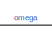
[diagram: root canvas - part 1/4, top center region]
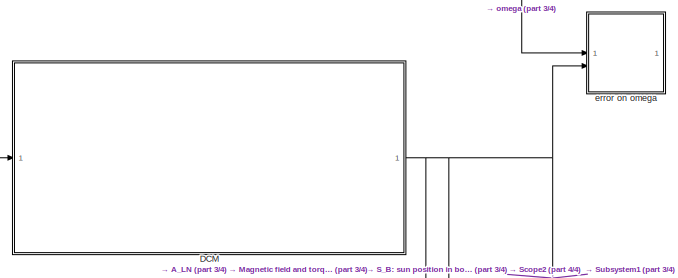
[diagram: root canvas - part 2/4, top left region]
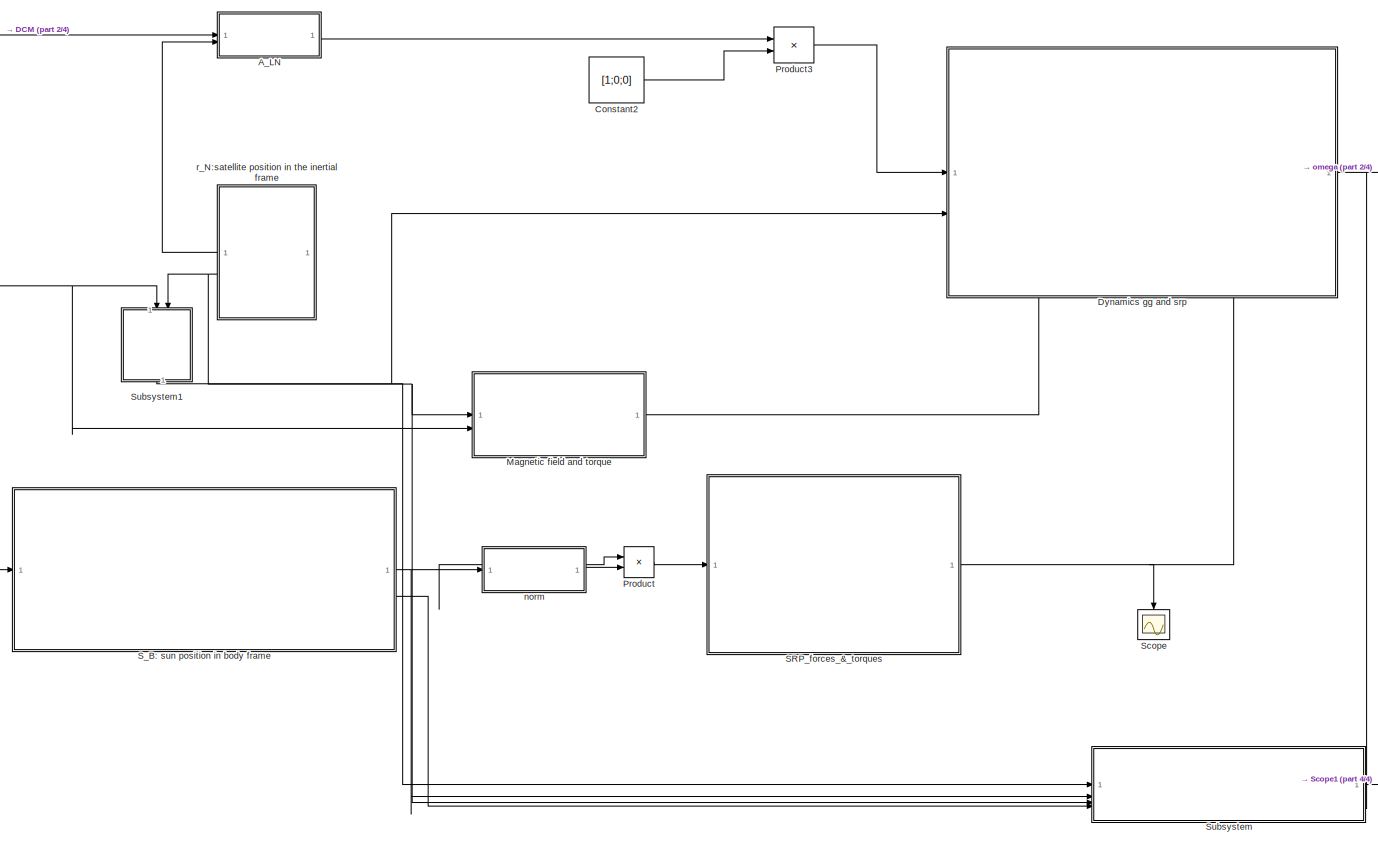
[diagram: root canvas - part 3/4, central region]
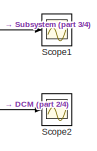
[diagram: root canvas - part 4/4, bottom right region]
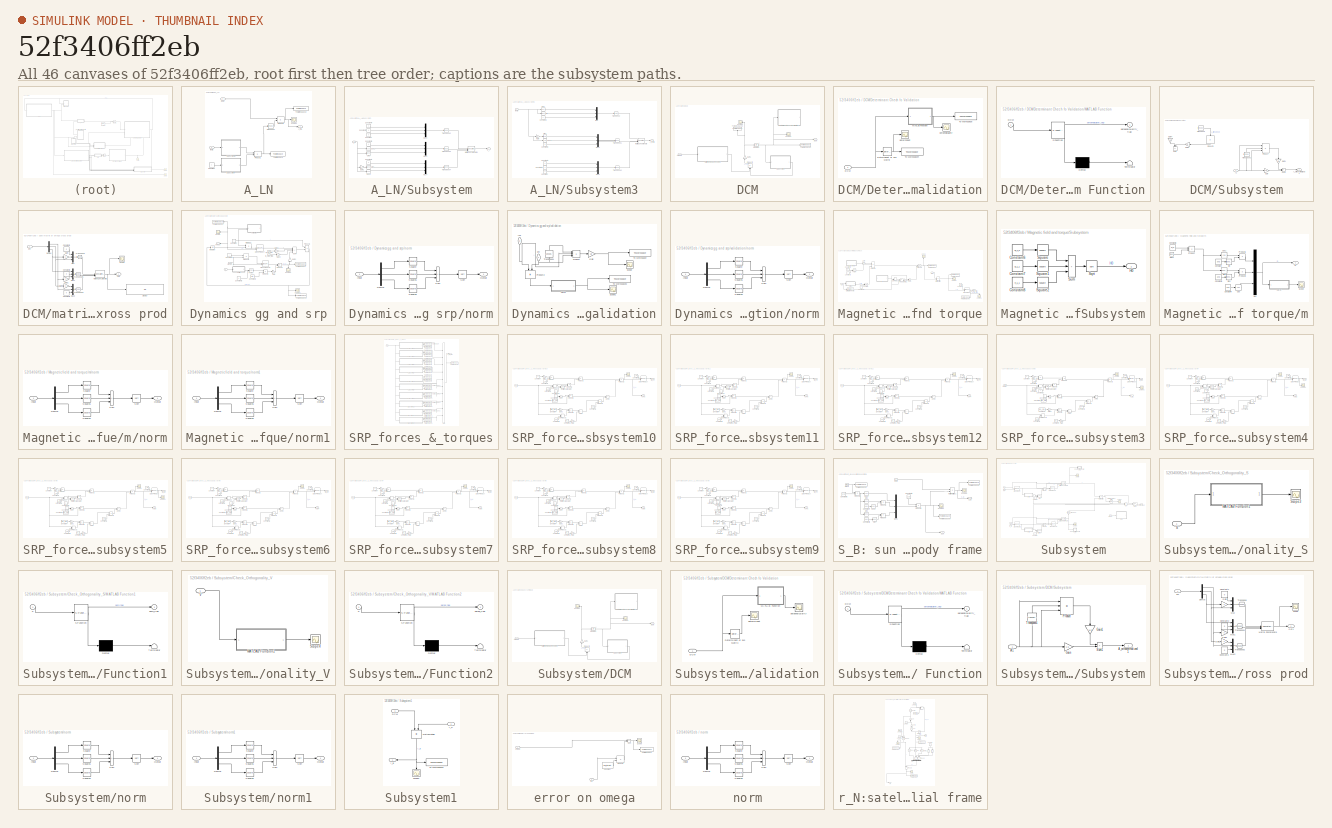
[diagram: thumbnail index - all 46 canvases of the model, root first then tree order]
MODEL slx_52f3406ff2eb
KIND model
CONFIG AbsTol = auto
CONFIG EnableMultiTasking = off
CONFIG FixedStep = 0.05
CONFIG MaxStep = auto
CONFIG MinStep = auto
CONFIG RelTol = 1e-3
CONFIG SampleTimeConstraint = Unconstrained
CONFIG SolverName = ode8
CONFIG StartTime = 0.0
CONFIG StopTime = 10000
BLOCK [SubSystem] A_LN
BLOCK [Outport] A_LN/A_BL
BLOCK [Constant] A_LN/Constant
  Value = i
BLOCK [Inport] A_LN/DCM
BLOCK [Product] A_LN/Product1
  Multiplication = Matrix(*)
BLOCK [Product] A_LN/Product2
  Multiplication = Matrix(*)
BLOCK [Scope] A_LN/Scope1
  Floating = off
  NumInputPorts = 1
  ScopeSpecificationString = Simulink.scopes.TimeScopeBlockCfg('CurrentConfiguration', extmgr.ConfigurationSet(extmgr.Configuration('Core','General UI',true),extmgr.Configuration('Core','Source UI',true),extmgr.Configuration('Sources','WiredSimulink',true,'DataLoggingVariableName','ScopeData1'),extmgr.Configuration('Visuals','Time Domain',true,'SerializedDisplays',{struct('MinYLimReal','-1.25','MaxYLimReal','1.25','YLabelReal...<+1536ch>
BLOCK [SubSystem] A_LN/Subsystem
BLOCK [Outport] A_LN/Subsystem/A_i
BLOCK [Constant] A_LN/Subsystem/Constant
  Value = 0
BLOCK [Constant] A_LN/Subsystem/Constant3
  Value = 0
BLOCK [Constant] A_LN/Subsystem/Constant4
BLOCK [Constant] A_LN/Subsystem/Constant6
  Value = 0
BLOCK [Constant] A_LN/Subsystem/Constant7
  Value = 0
BLOCK [Trigonometry] A_LN/Subsystem/Cos2
  Operator = cos
BLOCK [Trigonometry] A_LN/Subsystem/Cos4
  Operator = cos
BLOCK [Gain] A_LN/Subsystem/Gain1
  Gain = -1
BLOCK [Concatenate] A_LN/Subsystem/Matrix Concatenate1
  Mode = Multidimensional array
  NumInputs = 3
BLOCK [Mux] A_LN/Subsystem/Mux2
  DisplayOption = bar
  Inputs = 3
BLOCK [Mux] A_LN/Subsystem/Mux3
  DisplayOption = bar
  Inputs = 3
BLOCK [Mux] A_LN/Subsystem/Mux4
  DisplayOption = bar
  Inputs = 3
BLOCK [Trigonometry] A_LN/Subsystem/Sin3
BLOCK [Trigonometry] A_LN/Subsystem/Sin4
BLOCK [Math] A_LN/Subsystem/Transpose2
  Operator = transpose
BLOCK [Math] A_LN/Subsystem/Transpose3
  Operator = transpose
BLOCK [Math] A_LN/Subsystem/Transpose4
  Operator = transpose
BLOCK [Inport] A_LN/Subsystem/i
BLOCK [SubSystem] A_LN/Subsystem3
BLOCK [Outport] A_LN/Subsystem3/A_theta
BLOCK [Constant] A_LN/Subsystem3/Constant
BLOCK [Constant] A_LN/Subsystem3/Constant1
  Value = 0
BLOCK [Constant] A_LN/Subsystem3/Constant2
  Value = 0
BLOCK [Constant] A_LN/Subsystem3/Constant3
  Value = 0
BLOCK [Constant] A_LN/Subsystem3/Constant4
  Value = 0
BLOCK [Trigonometry] A_LN/Subsystem3/Cos
  Operator = cos
BLOCK [Trigonometry] A_LN/Subsystem3/Cos1
  Operator = cos
BLOCK [Gain] A_LN/Subsystem3/Gain
  Gain = -1
BLOCK [Concatenate] A_LN/Subsystem3/Matrix Concatenate
  Mode = Multidimensional array
  NumInputs = 3
BLOCK [Mux] A_LN/Subsystem3/Mux
  DisplayOption = bar
  Inputs = 3
BLOCK [Mux] A_LN/Subsystem3/Mux1
  DisplayOption = bar
  Inputs = 3
BLOCK [Mux] A_LN/Subsystem3/Mux2
  DisplayOption = bar
  Inputs = 3
BLOCK [Trigonometry] A_LN/Subsystem3/Sin
BLOCK [Trigonometry] A_LN/Subsystem3/Sin1
BLOCK [Math] A_LN/Subsystem3/Transpose
  Operator = transpose
BLOCK [Math] A_LN/Subsystem3/Transpose1
  Operator = transpose
BLOCK [Math] A_LN/Subsystem3/Transpose2
  Operator = transpose
BLOCK [Inport] A_LN/Subsystem3/theta
BLOCK [ToWorkspace] A_LN/To Workspace
  FixptAsFi = on
  MaxDataPoints = inf
  SampleTime = -1
  VariableName = A_LN
BLOCK [ToWorkspace] A_LN/To Workspace2
  FixptAsFi = on
  MaxDataPoints = inf
  SampleTime = -1
  VariableName = error_A1
BLOCK [Math] A_LN/Transpose
  Operator = transpose
BLOCK [Inport] A_LN/theta
  Port = 2
BLOCK [Constant] Constant2
  Value = [1;0;0]
BLOCK [SubSystem] DCM
BLOCK [Outport] DCM/DCM
BLOCK [SubSystem] DCM/Determinant Chech fo Validation
BLOCK [Inport] DCM/Determinant Chech fo Validation/DCM
BLOCK [Reference] DCM/Determinant Chech fo Validation/Determinant of 3x3 Matrix  REF=sharedutil/Determinant of
3x3 Matrix
  LibrarySourceBlock = aerolibutil/Determinant of\n3x3 Matrix
  SourceBlock = sharedutil/Determinant of\n3x3 Matrix
  SourceType = Determinant of 3x3 Matrix
BLOCK [SubSystem] DCM/Determinant Chech fo Validation/MATLAB Function
  ErrorFcn = Stateflow.Translate.translate
  LibrarySourceBlock = simulink/User-Defined\nFunctions/MATLAB Function
  PermitHierarchicalResolution = ExplicitOnly
  SFBlockType = MATLAB Function
  TreatAsAtomicUnit = on
BLOCK [Demux] DCM/Determinant Chech fo Validation/MATLAB Function/ Demux 
  Outputs = 1
BLOCK [S-Function] DCM/Determinant Chech fo Validation/MATLAB Function/ SFunction 
  EnableBusSupport = on
  FunctionName = sf_sfun
  PortCounts = [1 2]
  SFcnIsStateOwnerBlock = off
  SFunctionDeploymentMode = off
  Tag = Stateflow S-Function 2
BLOCK [Terminator] DCM/Determinant Chech fo Validation/MATLAB Function/ Terminator 
BLOCK [Inport] DCM/Determinant Chech fo Validation/MATLAB Function/DCM
BLOCK [Outport] DCM/Determinant Chech fo Validation/MATLAB Function/perpendicularity_flag
BLOCK [ToWorkspace] DCM/Determinant Chech fo Validation/To Workspace
  FixptAsFi = on
  MaxDataPoints = inf
  SampleTime = -1
  VariableName = perpendicularity_flag
BLOCK [ToWorkspace] DCM/Determinant Chech fo Validation/To Workspace4
  FixptAsFi = on
  MaxDataPoints = inf
  SampleTime = -1
  VariableName = detA
BLOCK [Scope] DCM/Determinant Chech fo Validation/determinant
  Floating = off
  NumInputPorts = 1
  ScopeSpecificationString = Simulink.scopes.TimeScopeBlockCfg('CurrentConfiguration', extmgr.ConfigurationSet(extmgr.Configuration('Core','General UI',true),extmgr.Configuration('Core','Source UI',true),extmgr.Configuration('Sources','WiredSimulink',true,'DataLoggingVariableName','ScopeData1'),extmgr.Configuration('Visuals','Time Domain',true,'SerializedDisplays',{struct('MinYLimReal','0.9999958','MaxYLimReal','1.0000005','Y...<+1437ch>
BLOCK [Scope] DCM/Determinant Chech fo Validation/perpendicularity
  Floating = off
  NumInputPorts = 1
  ScopeSpecificationString = Simulink.scopes.TimeScopeBlockCfg('CurrentConfiguration', extmgr.ConfigurationSet(extmgr.Configuration('Core','General UI',true),extmgr.Configuration('Core','Source UI',true),extmgr.Configuration('Sources','WiredSimulink',true,'DataLoggingVariableName','ScopeData2'),extmgr.Configuration('Visuals','Time Domain',true,'SerializedDisplays',{struct('MinYLimReal','-0.0000017','MaxYLimReal','0.0000018','...<+1430ch>
BLOCK [Gain] DCM/Gain1
  Gain = -1
  NameLocation = right
BLOCK [Integrator] DCM/Integrator1
  InitialCondition = A0
BLOCK [Product] DCM/Product2
  Multiplication = Matrix(*)
  NameLocation = right
BLOCK [Scope] DCM/Scope1
  Floating = off
  NameLocation = top
  NumInputPorts = 1
  ScopeSpecificationString = Simulink.scopes.TimeScopeBlockCfg('CurrentConfiguration', extmgr.ConfigurationSet(extmgr.Configuration('Core','General UI',true),extmgr.Configuration('Core','Source UI',true),extmgr.Configuration('Sources','WiredSimulink',true,'DataLoggingVariableName','ScopeData3'),extmgr.Configuration('Visuals','Time Domain',true,'SerializedDisplays',{struct('MinYLimReal','-1.12078','MaxYLimReal','1.12831','YLab...<+1504ch>
BLOCK [Scope] DCM/Scope2
  Floating = off
  NumInputPorts = 1
  ScopeSpecificationString = Simulink.scopes.TimeScopeBlockCfg('CurrentConfiguration', extmgr.ConfigurationSet(extmgr.Configuration('Core','General UI',true),extmgr.Configuration('Core','Source UI',true),extmgr.Configuration('Sources','WiredSimulink',true,'DataLoggingVariableName','ScopeData4'),extmgr.Configuration('Visuals','Time Domain',true,'SerializedDisplays',{struct('MinYLimReal','-1.25','MaxYLimReal','1.25','YLabelReal...<+1538ch>
BLOCK [SubSystem] DCM/Subsystem
BLOCK [Inport] DCM/Subsystem/A1
BLOCK [Outport] DCM/Subsystem/A_orthonormalized1
BLOCK [Gain] DCM/Subsystem/Gain
  Gain = 1.5
BLOCK [Gain] DCM/Subsystem/Gain1
  Gain = -0.5
  NameLocation = left
BLOCK [Gain] DCM/Subsystem/Gain4
  Commented = on
  Gain = 3/2
  NameLocation = left
BLOCK [Gain] DCM/Subsystem/Gain5
  Commented = on
  Gain = 1/2
  NameLocation = top
BLOCK [Product] DCM/Subsystem/Product
  Inputs = 3
  Multiplication = Matrix(*)
BLOCK [Product] DCM/Subsystem/Product3
  Commented = on
  Inputs = 3
  Multiplication = Matrix(*)
  NameLocation = left
BLOCK [Sum] DCM/Subsystem/Sum
  Commented = on
  IconShape = rectangular
  Inputs = +-
  NameLocation = left
BLOCK [Sum] DCM/Subsystem/Sum1
  IconShape = rectangular
BLOCK [Math] DCM/Subsystem/Transpose
  Commented = on
  Operator = transpose
BLOCK [Math] DCM/Subsystem/Transpose1
  NameLocation = right
  Operator = transpose
BLOCK [ToWorkspace] DCM/To Workspace2
  FixptAsFi = on
  MaxDataPoints = inf
  SampleTime = -1
  VariableName = A
BLOCK [ToWorkspace] DCM/To Workspace3
  FixptAsFi = on
  MaxDataPoints = inf
  NameLocation = right
  SampleTime = -1
  VariableName = A_dot
BLOCK [SubSystem] DCM/matrix of omega cross prod
BLOCK [Constant] DCM/matrix of omega cross prod/Constant1
  Value = 0
BLOCK [Constant] DCM/matrix of omega cross prod/Constant2
  Value = 0
BLOCK [Constant] DCM/matrix of omega cross prod/Constant3
  Value = 0
BLOCK [Demux] DCM/matrix of omega cross prod/Demux
  Outputs = 3
BLOCK [Display] DCM/matrix of omega cross prod/Display
  Decimation = 1
BLOCK [Gain] DCM/matrix of omega cross prod/Gain
  Gain = -1
BLOCK [Gain] DCM/matrix of omega cross prod/Gain1
  Gain = -1
BLOCK [Gain] DCM/matrix of omega cross prod/Gain2
  Gain = -1
BLOCK [Concatenate] DCM/matrix of omega cross prod/Matrix Concatenate
  Mode = Multidimensional array
  NumInputs = 3
BLOCK [Mux] DCM/matrix of omega cross prod/Mux
  DisplayOption = bar
  Inputs = 3
BLOCK [Mux] DCM/matrix of omega cross prod/Mux1
  DisplayOption = bar
  Inputs = 3
BLOCK [Mux] DCM/matrix of omega cross prod/Mux2
  DisplayOption = bar
  Inputs = 3
BLOCK [Outport] DCM/matrix of omega cross prod/Out1
BLOCK [Scope] DCM/matrix of omega cross prod/Scope
  Floating = off
  NumInputPorts = 1
  ScopeSpecificationString = Simulink.scopes.TimeScopeBlockCfg('CurrentConfiguration', extmgr.ConfigurationSet(extmgr.Configuration('Core','General UI',true),extmgr.Configuration('Core','Source UI',true),extmgr.Configuration('Sources','WiredSimulink',true,'DataLoggingVariableName','ScopeData2'),extmgr.Configuration('Visuals','Time Domain',true,'SerializedDisplays',{struct('MinYLimReal','-1.01319','MaxYLimReal','1.01319','YLab...<+1486ch>
BLOCK [Math] DCM/matrix of omega cross prod/Transpose
  Operator = transpose
BLOCK [Math] DCM/matrix of omega cross prod/Transpose1
  Operator = transpose
BLOCK [Math] DCM/matrix of omega cross prod/Transpose2
  Operator = transpose
BLOCK [Inport] DCM/matrix of omega cross prod/om
BLOCK [Inport] DCM/omega
BLOCK [SubSystem] Dynamics gg and srp
  PortSchema = {"entries":[{"content":{"sides":[{"content":{"connectorIds":["In1","In2"]},"type":"ConnectorPlacement.EquallySpacedRectSide","uuid":"bc05948c-2cea-49c7-b73f-89081b27225b"},{"content":{"connectorIds":["Out1"],"side":"RIGHT"},"type":"ConnectorPlacement.EquallySpacedRectSide","uuid":"6a29747a-be53-4398-a7e6-b9c90b18bedd"},{"content":{"connectorIds":[],"side":"TOP"},"type":"ConnectorPlacement.EquallyS...<+401ch>
BLOCK [Constant] Dynamics gg and srp/Constant
  Value = I
BLOCK [Constant] Dynamics gg and srp/Constant1
  Value = I
BLOCK [Constant] Dynamics gg and srp/Constant2
  Value = G*Mt
BLOCK [Constant] Dynamics gg and srp/Constant3
  Value = 3
BLOCK [Reference] Dynamics gg and srp/Cross Product  REF=matrix_library/Cross Product
  LibrarySourceBlock = simulink/Matrix\nOperations/Cross Product
  SourceBlock = matrix_library/Cross Product
  SourceType = CrossProduct
BLOCK [Reference] Dynamics gg and srp/Cross Product1  REF=matrix_library/Cross Product
  LibrarySourceBlock = simulink/Matrix\nOperations/Cross Product
  SourceBlock = matrix_library/Cross Product
  SourceType = CrossProduct
BLOCK [Gain] Dynamics gg and srp/Gain
  Gain = 3
BLOCK [Gain] Dynamics gg and srp/Gain1
BLOCK [Gain] Dynamics gg and srp/Gain2
  NameLocation = right
BLOCK [Gain] Dynamics gg and srp/Gain3
BLOCK [Integrator] Dynamics gg and srp/Integrator
  InitialCondition = om_0
BLOCK [Inport] Dynamics gg and srp/M_mag_field
  Port = 3
BLOCK [Inport] Dynamics gg and srp/M_tot_SRP
  Port = 4
BLOCK [Math] Dynamics gg and srp/Power
  Operator = pow
BLOCK [Product] Dynamics gg and srp/Product
  Multiplication = Matrix(*)
BLOCK [Product] Dynamics gg and srp/Product1
  Inputs = /*
  Multiplication = Matrix(*)
BLOCK [Product] Dynamics gg and srp/Product2
  Multiplication = Matrix(*)
BLOCK [Product] Dynamics gg and srp/Product3
  Inputs = /*
BLOCK [Product] Dynamics gg and srp/Product4
BLOCK [Scope] Dynamics gg and srp/Scope
  Floating = off
  NameLocation = top
  NumInputPorts = 1
  ScopeSpecificationString = Simulink.scopes.TimeScopeBlockCfg('CurrentConfiguration', extmgr.ConfigurationSet(extmgr.Configuration('Core','General UI',true),extmgr.Configuration('Core','Source UI',true),extmgr.Configuration('Sources','WiredSimulink',true,'DataLoggingVariableName','ScopeData1'),extmgr.Configuration('Visuals','Time Domain',true,'SerializedDisplays',{struct('MinYLimReal','-0.0122','MaxYLimReal','0.01302','YLabe...<+1766ch>
BLOCK [Scope] Dynamics gg and srp/Scope1
  Floating = off
  NumInputPorts = 1
  ScopeSpecificationString = Simulink.scopes.TimeScopeBlockCfg('CurrentConfiguration', extmgr.ConfigurationSet(extmgr.Configuration('Core','General UI',true),extmgr.Configuration('Core','Source UI',true),extmgr.Configuration('Sources','WiredSimulink',true,'DataLoggingVariableName','ScopeData3'),extmgr.Configuration('Visuals','Time Domain',true,'SerializedDisplays',{struct('MinYLimReal','-0.0000038','MaxYLimReal','0.0000029','...<+1405ch>
BLOCK [Scope] Dynamics gg and srp/Scope2
  Floating = off
  NameLocation = left
  NumInputPorts = 1
  ScopeSpecificationString = Simulink.scopes.TimeScopeBlockCfg('CurrentConfiguration', extmgr.ConfigurationSet(extmgr.Configuration('Core','General UI',true),extmgr.Configuration('Core','Source UI',true),extmgr.Configuration('Sources','WiredSimulink',true,'DataLoggingVariableName','ScopeData2'),extmgr.Configuration('Visuals','Time Domain',true,'SerializedDisplays',{struct('MinYLimReal','-0.0000034','MaxYLimReal','0.0000032','...<+1438ch>
BLOCK [Sum] Dynamics gg and srp/Sum
  IconShape = rectangular
  Inputs = +---
BLOCK [ToWorkspace] Dynamics gg and srp/To Workspace
  FixptAsFi = on
  MaxDataPoints = inf
  SampleTime = -1
  VariableName = M_GG
BLOCK [ToWorkspace] Dynamics gg and srp/To Workspace1
  FixptAsFi = on
  MaxDataPoints = inf
  NameLocation = top
  SampleTime = -1
  VariableName = omega
BLOCK [ToWorkspace] Dynamics gg and srp/To Workspace2
  FixptAsFi = on
  MaxDataPoints = inf
  SampleTime = -1
  VariableName = omega_dot
BLOCK [Inport] Dynamics gg and srp/ci,c2,c3
BLOCK [SubSystem] Dynamics gg and srp/norm
BLOCK [Demux] Dynamics gg and srp/norm/Demux
  Outputs = 3
BLOCK [Inport] Dynamics gg and srp/norm/Input
BLOCK [Outport] Dynamics gg and srp/norm/Output
BLOCK [Sqrt] Dynamics gg and srp/norm/Sqrt
BLOCK [Math] Dynamics gg and srp/norm/Square
  Operator = square
BLOCK [Math] Dynamics gg and srp/norm/Square1
  Operator = square
BLOCK [Math] Dynamics gg and srp/norm/Square2
  Operator = square
BLOCK [Sum] Dynamics gg and srp/norm/Sum
  IconShape = rectangular
  Inputs = +++
BLOCK [Outport] Dynamics gg and srp/omega
  NameLocation = top
BLOCK [Inport] Dynamics gg and srp/r
  Port = 2
BLOCK [SubSystem] Dynamics gg and srp/validation
BLOCK [Gain] Dynamics gg and srp/validation/Gain
  Gain = 1/2
BLOCK [Inport] Dynamics gg and srp/validation/In2
  NameLocation = left
  Port = 2
BLOCK [Product] Dynamics gg and srp/validation/Product
  Inputs = 3
  Multiplication = Matrix(*)
BLOCK [Product] Dynamics gg and srp/validation/Product2
  Multiplication = Matrix(*)
  NameLocation = left
BLOCK [Scope] Dynamics gg and srp/validation/Scope
  Floating = off
  NumInputPorts = 1
  ScopeSpecificationString = Simulink.scopes.TimeScopeBlockCfg('CurrentConfiguration', extmgr.ConfigurationSet(extmgr.Configuration('Core','General UI',true),extmgr.Configuration('Core','Source UI',true),extmgr.Configuration('Sources','WiredSimulink',true,'DataLoggingVariableName','ScopeData2'),extmgr.Configuration('Visuals','Time Domain',true,'SerializedDisplays',{struct('MinYLimReal','0.01830474937','MaxYLimReal','0.0183047...<+1409ch>
BLOCK [Scope] Dynamics gg and srp/validation/Scope1
  Floating = off
  NumInputPorts = 1
  ScopeSpecificationString = Simulink.scopes.TimeScopeBlockCfg('CurrentConfiguration', extmgr.ConfigurationSet(extmgr.Configuration('Core','General UI',true),extmgr.Configuration('Core','Source UI',true),extmgr.Configuration('Sources','WiredSimulink',true,'DataLoggingVariableName','ScopeData1'),extmgr.Configuration('Visuals','Time Domain',true,'SerializedDisplays',{struct('MinYLimReal','0.0447132243','MaxYLimReal','0.04471322...<+1406ch>
BLOCK [ToWorkspace] Dynamics gg and srp/validation/To Workspace
  FixptAsFi = on
  MaxDataPoints = inf
  SampleTime = -1
  VariableName = E
BLOCK [ToWorkspace] Dynamics gg and srp/validation/To Workspace2
  FixptAsFi = on
  MaxDataPoints = inf
  SampleTime = -1
  VariableName = hnorm
BLOCK [Math] Dynamics gg and srp/validation/Transpose1
  NameLocation = right
  Operator = transpose
BLOCK [SubSystem] Dynamics gg and srp/validation/norm
BLOCK [Demux] Dynamics gg and srp/validation/norm/Demux
  Outputs = 3
BLOCK [Inport] Dynamics gg and srp/validation/norm/Input
BLOCK [Outport] Dynamics gg and srp/validation/norm/Output
BLOCK [Sqrt] Dynamics gg and srp/validation/norm/Sqrt
BLOCK [Math] Dynamics gg and srp/validation/norm/Square
  Operator = square
BLOCK [Math] Dynamics gg and srp/validation/norm/Square1
  Operator = square
BLOCK [Math] Dynamics gg and srp/validation/norm/Square2
  Operator = square
BLOCK [Sum] Dynamics gg and srp/validation/norm/Sum
  IconShape = rectangular
  Inputs = +++
BLOCK [Inport] Dynamics gg and srp/validation/om
  NameLocation = left
BLOCK [SubSystem] Magnetic field and torque
BLOCK [Constant] Magnetic field and torque/Constant
  Value = j_B
BLOCK [Constant] Magnetic field and torque/Constant10
  Value = 3
BLOCK [Constant] Magnetic field and torque/Constant5
  Value = R
BLOCK [Constant] Magnetic field and torque/Constant9
  Value = 3
BLOCK [Reference] Magnetic field and torque/Cross Product  REF=matrix_library/Cross Product
  LibrarySourceBlock = simulink/Matrix\nOperations/Cross Product
  SourceBlock = matrix_library/Cross Product
  SourceType = CrossProduct
BLOCK [Inport] Magnetic field and torque/DCM
  Port = 2
BLOCK [DotProduct] Magnetic field and torque/Dot Product
  OutDataTypeStr = Inherit: Inherit via internal rule
BLOCK [Gain] Magnetic field and torque/Gain
  Gain = 1e-9
BLOCK [Gain] Magnetic field and torque/Gain1
  Gain = 3
BLOCK [Outport] Magnetic field and torque/M_mag_field
BLOCK [Product] Magnetic field and torque/MatrixMultiply
  Multiplication = Matrix(*)
BLOCK [Reference] Magnetic field and torque/Normalize Vector  REF=vrlib/Utilities/Normalize Vector
  SourceBlock = vrlib/Utilities/Normalize Vector
  SourceType = Normalize Vector
BLOCK [Math] Magnetic field and torque/Power
  Operator = pow
BLOCK [Math] Magnetic field and torque/Power1
  Operator = pow
BLOCK [Product] Magnetic field and torque/Product3
  Inputs = **/
BLOCK [Product] Magnetic field and torque/Product4
BLOCK [Product] Magnetic field and torque/Product5
BLOCK [Scope] Magnetic field and torque/Scope
  Floating = off
  NameLocation = right
  NumInputPorts = 1
  ScopeSpecificationString = Simulink.scopes.TimeScopeBlockCfg('CurrentConfiguration', extmgr.ConfigurationSet(extmgr.Configuration('Core','General UI',true),extmgr.Configuration('Core','Source UI',true),extmgr.Configuration('Sources','WiredSimulink',true,'DataLoggingVariableName','ScopeData3'),extmgr.Configuration('Visuals','Time Domain',true,'SerializedDisplays',{struct('MinYLimReal','-0.000055','MaxYLimReal','0.00003','YLa...<+1401ch>
BLOCK [Scope] Magnetic field and torque/Scope1
  Floating = off
  NameLocation = left
  NumInputPorts = 1
  ScopeSpecificationString = Simulink.scopes.TimeScopeBlockCfg('CurrentConfiguration', extmgr.ConfigurationSet(extmgr.Configuration('Core','General UI',true),extmgr.Configuration('Core','Source UI',true),extmgr.Configuration('Sources','WiredSimulink',true,'DataLoggingVariableName','ScopeData5'),extmgr.Configuration('Visuals','Time Domain',true,'SerializedDisplays',{struct('MinYLimReal','-0.0000029','MaxYLimReal','0.0000031','...<+1501ch>
BLOCK [Scope] Magnetic field and torque/Scope3
  Floating = off
  NumInputPorts = 1
  ScopeSpecificationString = Simulink.scopes.TimeScopeBlockCfg('CurrentConfiguration', extmgr.ConfigurationSet(extmgr.Configuration('Core','General UI',true),extmgr.Configuration('Core','Source UI',true),extmgr.Configuration('Sources','WiredSimulink',true,'DataLoggingVariableName','ScopeData4'),extmgr.Configuration('Visuals','Time Domain',true,'SerializedDisplays',{struct('MinYLimReal','-0.00006','MaxYLimReal','0.00006','YLab...<+1461ch>
BLOCK [SubSystem] Magnetic field and torque/Subsystem
BLOCK [Constant] Magnetic field and torque/Subsystem/Constant6
  Value = g_1_0
BLOCK [Constant] Magnetic field and torque/Subsystem/Constant7
  Value = g_1_1
BLOCK [Constant] Magnetic field and torque/Subsystem/Constant8
  Value = h_1_1
BLOCK [Outport] Magnetic field and torque/Subsystem/H0
BLOCK [Sqrt] Magnetic field and torque/Subsystem/Sqrt
BLOCK [Math] Magnetic field and torque/Subsystem/Square
  Operator = square
BLOCK [Math] Magnetic field and torque/Subsystem/Square1
  Operator = square
BLOCK [Math] Magnetic field and torque/Subsystem/Square2
  Operator = square
BLOCK [Sum] Magnetic field and torque/Subsystem/Sum
  IconShape = rectangular
  Inputs = +++
BLOCK [Sum] Magnetic field and torque/Sum1
  IconShape = rectangular
  Inputs = -+
BLOCK [ToWorkspace] Magnetic field and torque/To Workspace
  FixptAsFi = on
  MaxDataPoints = inf
  SampleTime = -1
  VariableName = b_N
BLOCK [ToWorkspace] Magnetic field and torque/To Workspace1
  FixptAsFi = on
  MaxDataPoints = inf
  NameLocation = top
  SampleTime = -1
  VariableName = M_Magfiel
BLOCK [ToWorkspace] Magnetic field and torque/To Workspace3
  FixptAsFi = on
  MaxDataPoints = inf
  SampleTime = -1
  VariableName = b_mag_field
BLOCK [SubSystem] Magnetic field and torque/m
BLOCK [Clock] Magnetic field and torque/m/Clock
BLOCK [Constant] Magnetic field and torque/m/Constant
  Value = ang
BLOCK [Constant] Magnetic field and torque/m/Constant2
  Value = rot_E
BLOCK [Constant] Magnetic field and torque/m/Constant3
  Value = ang
BLOCK [Constant] Magnetic field and torque/m/Constant4
  Value = ang
BLOCK [Trigonometry] Magnetic field and torque/m/Cos
  Operator = cos
BLOCK [Trigonometry] Magnetic field and torque/m/Cos1
  Operator = cos
BLOCK [Mux] Magnetic field and torque/m/Mux
  DisplayOption = bar
  Inputs = 3
BLOCK [Product] Magnetic field and torque/m/Product
BLOCK [Product] Magnetic field and torque/m/Product1
BLOCK [Product] Magnetic field and torque/m/Product2
BLOCK [Scope] Magnetic field and torque/m/Scope
  Floating = off
  NumInputPorts = 1
  ScopeSpecificationString = Simulink.scopes.TimeScopeBlockCfg('CurrentConfiguration', extmgr.ConfigurationSet(extmgr.Configuration('Core','General UI',true),extmgr.Configuration('Core','Source UI',true),extmgr.Configuration('Sources','WiredSimulink',true,'DataLoggingVariableName','ScopeData2'),extmgr.Configuration('Visuals','Time Domain',true,'SerializedDisplays',{struct('MinYLimReal','0.9','MaxYLimReal','1.1','YLabelReal','...<+1371ch>
BLOCK [Trigonometry] Magnetic field and torque/m/Sin
BLOCK [Trigonometry] Magnetic field and torque/m/Sin1
BLOCK [Trigonometry] Magnetic field and torque/m/Sin2
BLOCK [Outport] Magnetic field and torque/m/m
BLOCK [SubSystem] Magnetic field and torque/m/norm
BLOCK [Demux] Magnetic field and torque/m/norm/Demux
  Outputs = 3
BLOCK [Inport] Magnetic field and torque/m/norm/Input
BLOCK [Outport] Magnetic field and torque/m/norm/Output
BLOCK [Sqrt] Magnetic field and torque/m/norm/Sqrt
BLOCK [Math] Magnetic field and torque/m/norm/Square
  Operator = square
BLOCK [Math] Magnetic field and torque/m/norm/Square1
  Operator = square
BLOCK [Math] Magnetic field and torque/m/norm/Square2
  Operator = square
BLOCK [Sum] Magnetic field and torque/m/norm/Sum
  IconShape = rectangular
  Inputs = +++
BLOCK [SubSystem] Magnetic field and torque/norm1
BLOCK [Demux] Magnetic field and torque/norm1/Demux
  Outputs = 3
BLOCK [Inport] Magnetic field and torque/norm1/Input
BLOCK [Outport] Magnetic field and torque/norm1/Output
BLOCK [Sqrt] Magnetic field and torque/norm1/Sqrt
BLOCK [Math] Magnetic field and torque/norm1/Square
  Operator = square
BLOCK [Math] Magnetic field and torque/norm1/Square1
  Operator = square
BLOCK [Math] Magnetic field and torque/norm1/Square2
  Operator = square
BLOCK [Sum] Magnetic field and torque/norm1/Sum
  IconShape = rectangular
  Inputs = +++
BLOCK [Inport] Magnetic field and torque/r_N
BLOCK [Product] Product
  Inputs = */
BLOCK [Product] Product3
  Multiplication = Matrix(*)
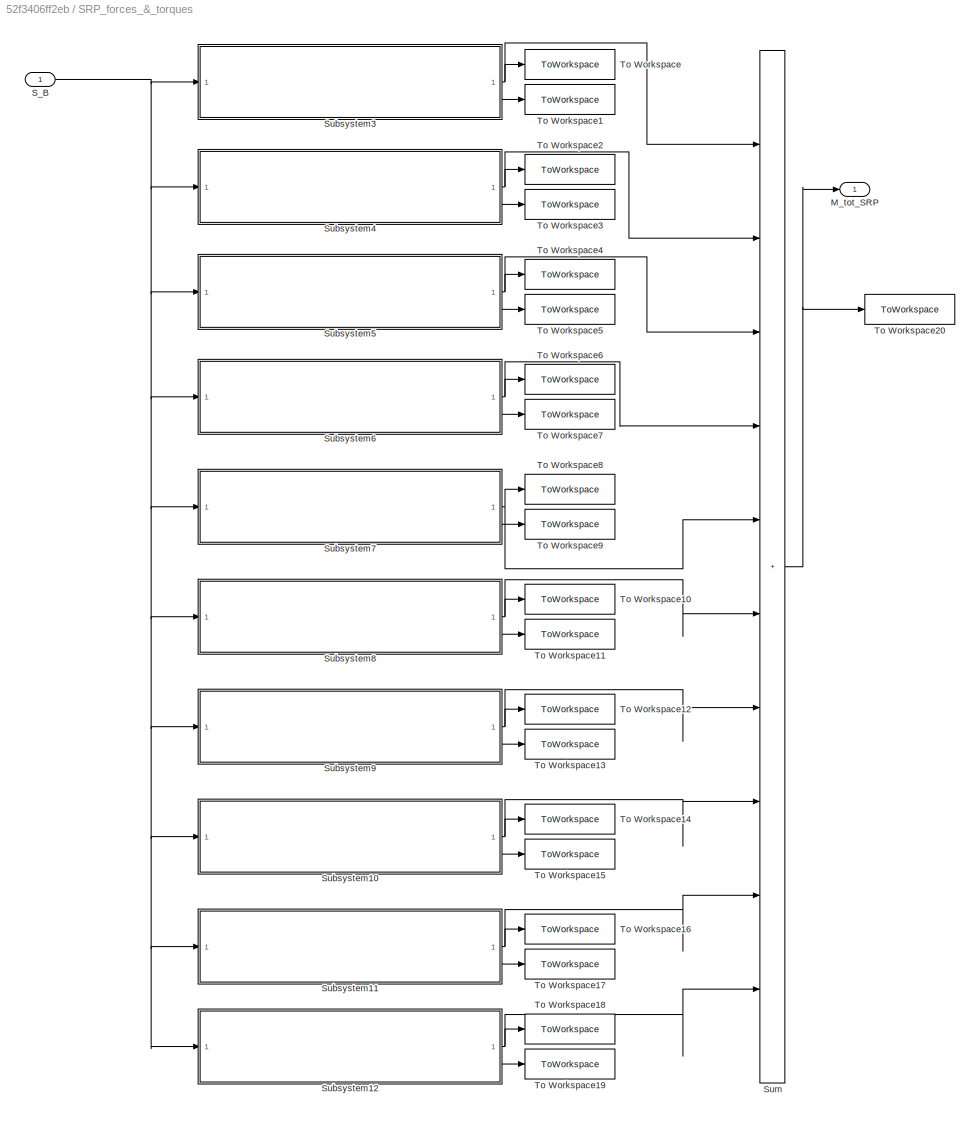
BLOCK [SubSystem] SRP_forces_&_torques
BLOCK [Outport] SRP_forces_&_torques/M_tot_SRP
BLOCK [Inport] SRP_forces_&_torques/S_B
BLOCK [SubSystem] SRP_forces_&_torques/Subsystem10
BLOCK [Constant] SRP_forces_&_torques/Subsystem10/Constant
  Value = P
BLOCK [Constant] SRP_forces_&_torques/Subsystem10/Constant1
  Value = A_P2
BLOCK [Constant] SRP_forces_&_torques/Subsystem10/Constant10
  Value = 0
BLOCK [Constant] SRP_forces_&_torques/Subsystem10/Constant2
  Value = N_P2
BLOCK [Constant] SRP_forces_&_torques/Subsystem10/Constant3
  Value = rho_sP
BLOCK [Constant] SRP_forces_&_torques/Subsystem10/Constant4
  Value = rho_d
BLOCK [Constant] SRP_forces_&_torques/Subsystem10/Constant5
BLOCK [Constant] SRP_forces_&_torques/Subsystem10/Constant6
  Value = N_P2
BLOCK [Constant] SRP_forces_&_torques/Subsystem10/Constant7
  Value = rho_sP
BLOCK [Constant] SRP_forces_&_torques/Subsystem10/Constant8
  Value = N_P2
BLOCK [Constant] SRP_forces_&_torques/Subsystem10/Constant9
  Value = r_P2
BLOCK [Reference] SRP_forces_&_torques/Subsystem10/Cross Product  REF=matrix_library/Cross Product
  LibrarySourceBlock = simulink/Matrix\nOperations/Cross Product
  SourceBlock = matrix_library/Cross Product
  SourceType = CrossProduct
BLOCK [DotProduct] SRP_forces_&_torques/Subsystem10/Dot Product
  OutDataTypeStr = Inherit: Inherit via internal rule
BLOCK [DotProduct] SRP_forces_&_torques/Subsystem10/Dot Product1
  OutDataTypeStr = Inherit: Inherit via internal rule
BLOCK [Outport] SRP_forces_&_torques/Subsystem10/F_P2
  Port = 2
BLOCK [Gain] SRP_forces_&_torques/Subsystem10/Gain
  Gain = 2/3
BLOCK [Gain] SRP_forces_&_torques/Subsystem10/Gain1
  Gain = -1
BLOCK [Gain] SRP_forces_&_torques/Subsystem10/Gain2
  Gain = 2
BLOCK [Outport] SRP_forces_&_torques/Subsystem10/M_P2
BLOCK [Product] SRP_forces_&_torques/Subsystem10/Product
BLOCK [Product] SRP_forces_&_torques/Subsystem10/Product1
BLOCK [Product] SRP_forces_&_torques/Subsystem10/Product2
BLOCK [Product] SRP_forces_&_torques/Subsystem10/Product3
BLOCK [Product] SRP_forces_&_torques/Subsystem10/Product4
BLOCK [Product] SRP_forces_&_torques/Subsystem10/Product5
BLOCK [Product] SRP_forces_&_torques/Subsystem10/Product6
BLOCK [RelationalOperator] SRP_forces_&_torques/Subsystem10/Relational Operator
  InputSameDT = off
  OutDataTypeStr = boolean
  RndMeth = Simplest
BLOCK [Inport] SRP_forces_&_torques/Subsystem10/S_B
BLOCK [Scope] SRP_forces_&_torques/Subsystem10/Scope
  Floating = off
  NumInputPorts = 1
  ScopeSpecificationString = Simulink.scopes.TimeScopeBlockCfg('CurrentConfiguration', extmgr.ConfigurationSet(extmgr.Configuration('Core','General UI',true),extmgr.Configuration('Core','Source UI',true),extmgr.Configuration('Sources','WiredSimulink',true,'DataLoggingVariableName','ScopeData7'),extmgr.Configuration('Visuals','Time Domain',true,'SerializedDisplays',{struct('MinYLimReal','-10454273279847300.00000','MaxYLimReal'...<+1629ch>  <repeated x7 — deduplicated; at blocks: Scope>
BLOCK [Sum] SRP_forces_&_torques/Subsystem10/Sum
  IconShape = rectangular
  Inputs = +-
BLOCK [Sum] SRP_forces_&_torques/Subsystem10/Sum1
  IconShape = rectangular
BLOCK [Sum] SRP_forces_&_torques/Subsystem10/Sum2
  IconShape = rectangular
BLOCK [SubSystem] SRP_forces_&_torques/Subsystem11
BLOCK [Constant] SRP_forces_&_torques/Subsystem11/Constant
  Value = P
BLOCK [Constant] SRP_forces_&_torques/Subsystem11/Constant1
  Value = A_P3
BLOCK [Constant] SRP_forces_&_torques/Subsystem11/Constant10
  Value = 0
BLOCK [Constant] SRP_forces_&_torques/Subsystem11/Constant2
  Value = N_P3
BLOCK [Constant] SRP_forces_&_torques/Subsystem11/Constant3
  Value = rho_sP
BLOCK [Constant] SRP_forces_&_torques/Subsystem11/Constant4
  Value = rho_d
BLOCK [Constant] SRP_forces_&_torques/Subsystem11/Constant5
BLOCK [Constant] SRP_forces_&_torques/Subsystem11/Constant6
  Value = N_P3
BLOCK [Constant] SRP_forces_&_torques/Subsystem11/Constant7
  Value = rho_sP
BLOCK [Constant] SRP_forces_&_torques/Subsystem11/Constant8
  Value = N_P3
BLOCK [Constant] SRP_forces_&_torques/Subsystem11/Constant9
  Value = r_P3
BLOCK [Reference] SRP_forces_&_torques/Subsystem11/Cross Product  REF=matrix_library/Cross Product
  LibrarySourceBlock = simulink/Matrix\nOperations/Cross Product
  SourceBlock = matrix_library/Cross Product
  SourceType = CrossProduct
BLOCK [DotProduct] SRP_forces_&_torques/Subsystem11/Dot Product
  OutDataTypeStr = Inherit: Inherit via internal rule
BLOCK [DotProduct] SRP_forces_&_torques/Subsystem11/Dot Product1
  OutDataTypeStr = Inherit: Inherit via internal rule
BLOCK [Outport] SRP_forces_&_torques/Subsystem11/F_P3
  Port = 2
BLOCK [Gain] SRP_forces_&_torques/Subsystem11/Gain
  Gain = 2/3
BLOCK [Gain] SRP_forces_&_torques/Subsystem11/Gain1
  Gain = -1
BLOCK [Gain] SRP_forces_&_torques/Subsystem11/Gain2
  Gain = 2
BLOCK [Outport] SRP_forces_&_torques/Subsystem11/M_P3
BLOCK [Product] SRP_forces_&_torques/Subsystem11/Product
BLOCK [Product] SRP_forces_&_torques/Subsystem11/Product1
BLOCK [Product] SRP_forces_&_torques/Subsystem11/Product2
BLOCK [Product] SRP_forces_&_torques/Subsystem11/Product3
BLOCK [Product] SRP_forces_&_torques/Subsystem11/Product4
BLOCK [Product] SRP_forces_&_torques/Subsystem11/Product5
BLOCK [Product] SRP_forces_&_torques/Subsystem11/Product6
BLOCK [RelationalOperator] SRP_forces_&_torques/Subsystem11/Relational Operator
  InputSameDT = off
  OutDataTypeStr = boolean
  RndMeth = Simplest
BLOCK [Inport] SRP_forces_&_torques/Subsystem11/S_B
BLOCK [Scope] SRP_forces_&_torques/Subsystem11/Scope
  Floating = off
  NumInputPorts = 1
BLOCK [Sum] SRP_forces_&_torques/Subsystem11/Sum
  IconShape = rectangular
  Inputs = +-
BLOCK [Sum] SRP_forces_&_torques/Subsystem11/Sum1
  IconShape = rectangular
BLOCK [Sum] SRP_forces_&_torques/Subsystem11/Sum2
  IconShape = rectangular
BLOCK [SubSystem] SRP_forces_&_torques/Subsystem12
BLOCK [Constant] SRP_forces_&_torques/Subsystem12/Constant
  Value = P
BLOCK [Constant] SRP_forces_&_torques/Subsystem12/Constant1
  Value = A_P4
BLOCK [Constant] SRP_forces_&_torques/Subsystem12/Constant10
  Value = 0
BLOCK [Constant] SRP_forces_&_torques/Subsystem12/Constant2
  Value = N_P4
BLOCK [Constant] SRP_forces_&_torques/Subsystem12/Constant3
  Value = rho_sP
BLOCK [Constant] SRP_forces_&_torques/Subsystem12/Constant4
  Value = rho_d
BLOCK [Constant] SRP_forces_&_torques/Subsystem12/Constant5
BLOCK [Constant] SRP_forces_&_torques/Subsystem12/Constant6
  Value = N_P4
BLOCK [Constant] SRP_forces_&_torques/Subsystem12/Constant7
  Value = rho_sP
BLOCK [Constant] SRP_forces_&_torques/Subsystem12/Constant8
  Value = N_P4
BLOCK [Constant] SRP_forces_&_torques/Subsystem12/Constant9
  Value = r_P4
BLOCK [Reference] SRP_forces_&_torques/Subsystem12/Cross Product  REF=matrix_library/Cross Product
  LibrarySourceBlock = simulink/Matrix\nOperations/Cross Product
  SourceBlock = matrix_library/Cross Product
  SourceType = CrossProduct
BLOCK [DotProduct] SRP_forces_&_torques/Subsystem12/Dot Product
  OutDataTypeStr = Inherit: Inherit via internal rule
BLOCK [DotProduct] SRP_forces_&_torques/Subsystem12/Dot Product1
  OutDataTypeStr = Inherit: Inherit via internal rule
BLOCK [Outport] SRP_forces_&_torques/Subsystem12/F_P4
  Port = 2
BLOCK [Gain] SRP_forces_&_torques/Subsystem12/Gain
  Gain = 2/3
BLOCK [Gain] SRP_forces_&_torques/Subsystem12/Gain1
  Gain = -1
BLOCK [Gain] SRP_forces_&_torques/Subsystem12/Gain2
  Gain = 2
BLOCK [Outport] SRP_forces_&_torques/Subsystem12/M_P4
BLOCK [Product] SRP_forces_&_torques/Subsystem12/Product
BLOCK [Product] SRP_forces_&_torques/Subsystem12/Product1
BLOCK [Product] SRP_forces_&_torques/Subsystem12/Product2
BLOCK [Product] SRP_forces_&_torques/Subsystem12/Product3
BLOCK [Product] SRP_forces_&_torques/Subsystem12/Product4
BLOCK [Product] SRP_forces_&_torques/Subsystem12/Product5
BLOCK [Product] SRP_forces_&_torques/Subsystem12/Product6
BLOCK [RelationalOperator] SRP_forces_&_torques/Subsystem12/Relational Operator
  InputSameDT = off
  OutDataTypeStr = boolean
  RndMeth = Simplest
BLOCK [Inport] SRP_forces_&_torques/Subsystem12/S_B
BLOCK [Scope] SRP_forces_&_torques/Subsystem12/Scope
  Floating = off
  NumInputPorts = 1
BLOCK [Sum] SRP_forces_&_torques/Subsystem12/Sum
  IconShape = rectangular
  Inputs = +-
BLOCK [Sum] SRP_forces_&_torques/Subsystem12/Sum1
  IconShape = rectangular
BLOCK [Sum] SRP_forces_&_torques/Subsystem12/Sum2
  IconShape = rectangular
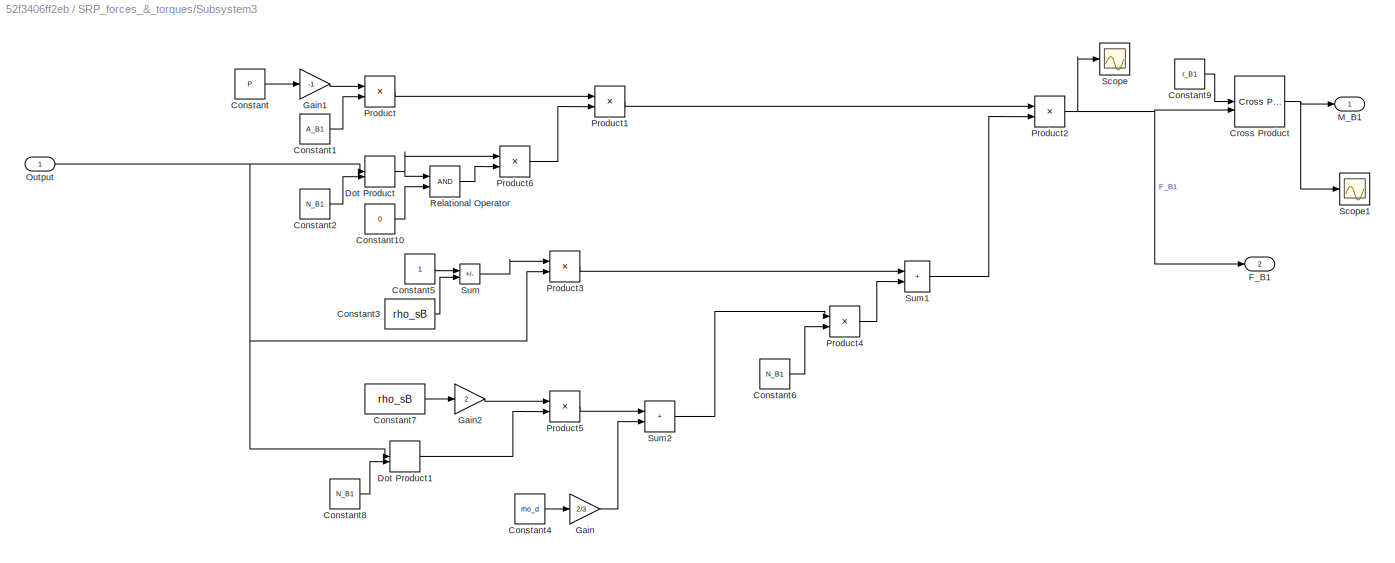
BLOCK [SubSystem] SRP_forces_&_torques/Subsystem3
BLOCK [Constant] SRP_forces_&_torques/Subsystem3/Constant
  Value = P
BLOCK [Constant] SRP_forces_&_torques/Subsystem3/Constant1
  Value = A_B1
BLOCK [Constant] SRP_forces_&_torques/Subsystem3/Constant10
  Value = 0
BLOCK [Constant] SRP_forces_&_torques/Subsystem3/Constant2
  Value = N_B1
BLOCK [Constant] SRP_forces_&_torques/Subsystem3/Constant3
  Value = rho_sB
BLOCK [Constant] SRP_forces_&_torques/Subsystem3/Constant4
  Value = rho_d
BLOCK [Constant] SRP_forces_&_torques/Subsystem3/Constant5
BLOCK [Constant] SRP_forces_&_torques/Subsystem3/Constant6
  Value = N_B1
BLOCK [Constant] SRP_forces_&_torques/Subsystem3/Constant7
  Value = rho_sB
BLOCK [Constant] SRP_forces_&_torques/Subsystem3/Constant8
  Value = N_B1
BLOCK [Constant] SRP_forces_&_torques/Subsystem3/Constant9
  Value = r_B1
BLOCK [Reference] SRP_forces_&_torques/Subsystem3/Cross Product  REF=matrix_library/Cross Product
  LibrarySourceBlock = simulink/Matrix\nOperations/Cross Product
  SourceBlock = matrix_library/Cross Product
  SourceType = CrossProduct
BLOCK [DotProduct] SRP_forces_&_torques/Subsystem3/Dot Product
  OutDataTypeStr = Inherit: Inherit via internal rule
BLOCK [DotProduct] SRP_forces_&_torques/Subsystem3/Dot Product1
  OutDataTypeStr = Inherit: Inherit via internal rule
BLOCK [Outport] SRP_forces_&_torques/Subsystem3/F_B1
  Port = 2
BLOCK [Gain] SRP_forces_&_torques/Subsystem3/Gain
  Gain = 2/3
BLOCK [Gain] SRP_forces_&_torques/Subsystem3/Gain1
  Gain = -1
BLOCK [Gain] SRP_forces_&_torques/Subsystem3/Gain2
  Gain = 2
BLOCK [Outport] SRP_forces_&_torques/Subsystem3/M_B1
BLOCK [Inport] SRP_forces_&_torques/Subsystem3/Output
BLOCK [Product] SRP_forces_&_torques/Subsystem3/Product
BLOCK [Product] SRP_forces_&_torques/Subsystem3/Product1
BLOCK [Product] SRP_forces_&_torques/Subsystem3/Product2
BLOCK [Product] SRP_forces_&_torques/Subsystem3/Product3
BLOCK [Product] SRP_forces_&_torques/Subsystem3/Product4
BLOCK [Product] SRP_forces_&_torques/Subsystem3/Product5
BLOCK [Product] SRP_forces_&_torques/Subsystem3/Product6
BLOCK [RelationalOperator] SRP_forces_&_torques/Subsystem3/Relational Operator
  InputSameDT = off
  OutDataTypeStr = boolean
  RndMeth = Simplest
BLOCK [Scope] SRP_forces_&_torques/Subsystem3/Scope
  Floating = off
  NumInputPorts = 1
  ScopeSpecificationString = Simulink.scopes.TimeScopeBlockCfg('CurrentConfiguration', extmgr.ConfigurationSet(extmgr.Configuration('Core','General UI',true),extmgr.Configuration('Core','Source UI',true),extmgr.Configuration('Sources','WiredSimulink',true,'DataLoggingVariableName','ScopeData7'),extmgr.Configuration('Visuals','Time Domain',true,'SerializedDisplays',{struct('MinYLimReal','-0.00000049','MaxYLimReal','0.00000013'...<+1513ch>
BLOCK [Scope] SRP_forces_&_torques/Subsystem3/Scope1
  Floating = off
  NumInputPorts = 1
  ScopeSpecificationString = Simulink.scopes.TimeScopeBlockCfg('CurrentConfiguration', extmgr.ConfigurationSet(extmgr.Configuration('Core','General UI',true),extmgr.Configuration('Core','Source UI',true),extmgr.Configuration('Sources','WiredSimulink',true,'DataLoggingVariableName','ScopeData8'),extmgr.Configuration('Visuals','Time Domain',true,'SerializedDisplays',{struct('MinYLimReal','-0.000000008','MaxYLimReal','0.00000000...<+1508ch>
BLOCK [Sum] SRP_forces_&_torques/Subsystem3/Sum
  IconShape = rectangular
  Inputs = +-
BLOCK [Sum] SRP_forces_&_torques/Subsystem3/Sum1
  IconShape = rectangular
BLOCK [Sum] SRP_forces_&_torques/Subsystem3/Sum2
  IconShape = rectangular
BLOCK [SubSystem] SRP_forces_&_torques/Subsystem4
BLOCK [Constant] SRP_forces_&_torques/Subsystem4/Constant
  Value = P
BLOCK [Constant] SRP_forces_&_torques/Subsystem4/Constant1
  Value = A_B2
BLOCK [Constant] SRP_forces_&_torques/Subsystem4/Constant10
  Value = 0
BLOCK [Constant] SRP_forces_&_torques/Subsystem4/Constant2
  Value = N_B2
BLOCK [Constant] SRP_forces_&_torques/Subsystem4/Constant3
  Value = rho_sB
BLOCK [Constant] SRP_forces_&_torques/Subsystem4/Constant4
  Value = rho_d
BLOCK [Constant] SRP_forces_&_torques/Subsystem4/Constant5
BLOCK [Constant] SRP_forces_&_torques/Subsystem4/Constant6
  Value = N_B2
BLOCK [Constant] SRP_forces_&_torques/Subsystem4/Constant7
  Value = rho_sB
BLOCK [Constant] SRP_forces_&_torques/Subsystem4/Constant8
  Value = N_B2
BLOCK [Constant] SRP_forces_&_torques/Subsystem4/Constant9
  Value = r_B2
BLOCK [Reference] SRP_forces_&_torques/Subsystem4/Cross Product  REF=matrix_library/Cross Product
  LibrarySourceBlock = simulink/Matrix\nOperations/Cross Product
  SourceBlock = matrix_library/Cross Product
  SourceType = CrossProduct
BLOCK [DotProduct] SRP_forces_&_torques/Subsystem4/Dot Product
  OutDataTypeStr = Inherit: Inherit via internal rule
BLOCK [DotProduct] SRP_forces_&_torques/Subsystem4/Dot Product1
  OutDataTypeStr = Inherit: Inherit via internal rule
BLOCK [Outport] SRP_forces_&_torques/Subsystem4/F_B2
  Port = 2
BLOCK [Gain] SRP_forces_&_torques/Subsystem4/Gain
  Gain = 2/3
BLOCK [Gain] SRP_forces_&_torques/Subsystem4/Gain1
  Gain = -1
BLOCK [Gain] SRP_forces_&_torques/Subsystem4/Gain2
  Gain = 2
BLOCK [Outport] SRP_forces_&_torques/Subsystem4/M_B2
BLOCK [Product] SRP_forces_&_torques/Subsystem4/Product
BLOCK [Product] SRP_forces_&_torques/Subsystem4/Product1
BLOCK [Product] SRP_forces_&_torques/Subsystem4/Product2
BLOCK [Product] SRP_forces_&_torques/Subsystem4/Product3
BLOCK [Product] SRP_forces_&_torques/Subsystem4/Product4
BLOCK [Product] SRP_forces_&_torques/Subsystem4/Product5
BLOCK [Product] SRP_forces_&_torques/Subsystem4/Product6
BLOCK [RelationalOperator] SRP_forces_&_torques/Subsystem4/Relational Operator
  InputSameDT = off
  OutDataTypeStr = boolean
  RndMeth = Simplest
BLOCK [Inport] SRP_forces_&_torques/Subsystem4/S_B
BLOCK [Scope] SRP_forces_&_torques/Subsystem4/Scope
  Floating = off
  NumInputPorts = 1
  ScopeSpecificationString = Simulink.scopes.TimeScopeBlockCfg('CurrentConfiguration', extmgr.ConfigurationSet(extmgr.Configuration('Core','General UI',true),extmgr.Configuration('Core','Source UI',true),extmgr.Configuration('Sources','WiredSimulink',true,'DataLoggingVariableName','ScopeData7'),extmgr.Configuration('Visuals','Time Domain',true,'SerializedDisplays',{struct('MinYLimReal','-0.00000049','MaxYLimReal','0.00000013'...<+1537ch>
BLOCK [Scope] SRP_forces_&_torques/Subsystem4/Scope1
  Floating = off
  NumInputPorts = 1
  ScopeSpecificationString = Simulink.scopes.TimeScopeBlockCfg('CurrentConfiguration', extmgr.ConfigurationSet(extmgr.Configuration('Core','General UI',true),extmgr.Configuration('Core','Source UI',true),extmgr.Configuration('Sources','WiredSimulink',true,'DataLoggingVariableName','ScopeData9'),extmgr.Configuration('Visuals','Time Domain',true,'SerializedDisplays',{struct('MinYLimReal','-0.000000008','MaxYLimReal','0.00000000...<+1442ch>
BLOCK [Sum] SRP_forces_&_torques/Subsystem4/Sum
  IconShape = rectangular
  Inputs = +-
BLOCK [Sum] SRP_forces_&_torques/Subsystem4/Sum1
  IconShape = rectangular
BLOCK [Sum] SRP_forces_&_torques/Subsystem4/Sum2
  IconShape = rectangular
BLOCK [SubSystem] SRP_forces_&_torques/Subsystem5
BLOCK [Constant] SRP_forces_&_torques/Subsystem5/Constant
  Value = P
BLOCK [Constant] SRP_forces_&_torques/Subsystem5/Constant1
  Value = A_B3
BLOCK [Constant] SRP_forces_&_torques/Subsystem5/Constant10
  Value = 0
BLOCK [Constant] SRP_forces_&_torques/Subsystem5/Constant2
  Value = N_B3
BLOCK [Constant] SRP_forces_&_torques/Subsystem5/Constant3
  Value = rho_sB
BLOCK [Constant] SRP_forces_&_torques/Subsystem5/Constant4
  Value = rho_d
BLOCK [Constant] SRP_forces_&_torques/Subsystem5/Constant5
BLOCK [Constant] SRP_forces_&_torques/Subsystem5/Constant6
  Value = N_B3
BLOCK [Constant] SRP_forces_&_torques/Subsystem5/Constant7
  Value = rho_sB
BLOCK [Constant] SRP_forces_&_torques/Subsystem5/Constant8
  Value = N_B3
BLOCK [Constant] SRP_forces_&_torques/Subsystem5/Constant9
  Value = r_B3
BLOCK [Reference] SRP_forces_&_torques/Subsystem5/Cross Product  REF=matrix_library/Cross Product
  LibrarySourceBlock = simulink/Matrix\nOperations/Cross Product
  SourceBlock = matrix_library/Cross Product
  SourceType = CrossProduct
BLOCK [DotProduct] SRP_forces_&_torques/Subsystem5/Dot Product
  OutDataTypeStr = Inherit: Inherit via internal rule
BLOCK [DotProduct] SRP_forces_&_torques/Subsystem5/Dot Product1
  OutDataTypeStr = Inherit: Inherit via internal rule
BLOCK [Outport] SRP_forces_&_torques/Subsystem5/F_B3
  Port = 2
BLOCK [Gain] SRP_forces_&_torques/Subsystem5/Gain
  Gain = 2/3
BLOCK [Gain] SRP_forces_&_torques/Subsystem5/Gain1
  Gain = -1
BLOCK [Gain] SRP_forces_&_torques/Subsystem5/Gain2
  Gain = 2
BLOCK [Outport] SRP_forces_&_torques/Subsystem5/M_B3
BLOCK [Product] SRP_forces_&_torques/Subsystem5/Product
BLOCK [Product] SRP_forces_&_torques/Subsystem5/Product1
BLOCK [Product] SRP_forces_&_torques/Subsystem5/Product2
BLOCK [Product] SRP_forces_&_torques/Subsystem5/Product3
BLOCK [Product] SRP_forces_&_torques/Subsystem5/Product4
BLOCK [Product] SRP_forces_&_torques/Subsystem5/Product5
BLOCK [Product] SRP_forces_&_torques/Subsystem5/Product6
BLOCK [RelationalOperator] SRP_forces_&_torques/Subsystem5/Relational Operator
  InputSameDT = off
  OutDataTypeStr = boolean
  RndMeth = Simplest
BLOCK [Inport] SRP_forces_&_torques/Subsystem5/S_B
BLOCK [Scope] SRP_forces_&_torques/Subsystem5/Scope
  Floating = off
  NumInputPorts = 1
  ScopeSpecificationString = Simulink.scopes.TimeScopeBlockCfg('CurrentConfiguration', extmgr.ConfigurationSet(extmgr.Configuration('Core','General UI',true),extmgr.Configuration('Core','Source UI',true),extmgr.Configuration('Sources','WiredSimulink',true,'DataLoggingVariableName','ScopeData7'),extmgr.Configuration('Visuals','Time Domain',true,'SerializedDisplays',{struct('MinYLimReal','-0.00000013','MaxYLimReal','0.00000049'...<+1537ch>
BLOCK [Scope] SRP_forces_&_torques/Subsystem5/Scope1
  Floating = off
  NumInputPorts = 1
  ScopeSpecificationString = Simulink.scopes.TimeScopeBlockCfg('CurrentConfiguration', extmgr.ConfigurationSet(extmgr.Configuration('Core','General UI',true),extmgr.Configuration('Core','Source UI',true),extmgr.Configuration('Sources','WiredSimulink',true,'DataLoggingVariableName','ScopeData10'),extmgr.Configuration('Visuals','Time Domain',true,'SerializedDisplays',{struct('MinYLimReal','-0.000000008','MaxYLimReal','0.0000000...<+1443ch>
BLOCK [Sum] SRP_forces_&_torques/Subsystem5/Sum
  IconShape = rectangular
  Inputs = +-
BLOCK [Sum] SRP_forces_&_torques/Subsystem5/Sum1
  IconShape = rectangular
BLOCK [Sum] SRP_forces_&_torques/Subsystem5/Sum2
  IconShape = rectangular
BLOCK [SubSystem] SRP_forces_&_torques/Subsystem6
BLOCK [Constant] SRP_forces_&_torques/Subsystem6/Constant
  Value = P
BLOCK [Constant] SRP_forces_&_torques/Subsystem6/Constant1
  Value = A_B4
BLOCK [Constant] SRP_forces_&_torques/Subsystem6/Constant10
  Value = 0
BLOCK [Constant] SRP_forces_&_torques/Subsystem6/Constant2
  Value = N_B4
BLOCK [Constant] SRP_forces_&_torques/Subsystem6/Constant3
  Value = rho_sB
BLOCK [Constant] SRP_forces_&_torques/Subsystem6/Constant4
  Value = rho_d
BLOCK [Constant] SRP_forces_&_torques/Subsystem6/Constant5
BLOCK [Constant] SRP_forces_&_torques/Subsystem6/Constant6
  Value = N_B4
BLOCK [Constant] SRP_forces_&_torques/Subsystem6/Constant7
  Value = rho_sB
BLOCK [Constant] SRP_forces_&_torques/Subsystem6/Constant8
  Value = N_B4
BLOCK [Constant] SRP_forces_&_torques/Subsystem6/Constant9
  Value = r_B4
BLOCK [Reference] SRP_forces_&_torques/Subsystem6/Cross Product  REF=matrix_library/Cross Product
  LibrarySourceBlock = simulink/Matrix\nOperations/Cross Product
  SourceBlock = matrix_library/Cross Product
  SourceType = CrossProduct
BLOCK [DotProduct] SRP_forces_&_torques/Subsystem6/Dot Product
  OutDataTypeStr = Inherit: Inherit via internal rule
BLOCK [DotProduct] SRP_forces_&_torques/Subsystem6/Dot Product1
  OutDataTypeStr = Inherit: Inherit via internal rule
BLOCK [Outport] SRP_forces_&_torques/Subsystem6/F_B4
  Port = 2
BLOCK [Gain] SRP_forces_&_torques/Subsystem6/Gain
  Gain = 2/3
BLOCK [Gain] SRP_forces_&_torques/Subsystem6/Gain1
  Gain = -1
BLOCK [Gain] SRP_forces_&_torques/Subsystem6/Gain2
  Gain = 2
BLOCK [Outport] SRP_forces_&_torques/Subsystem6/M_B4
BLOCK [Product] SRP_forces_&_torques/Subsystem6/Product
BLOCK [Product] SRP_forces_&_torques/Subsystem6/Product1
BLOCK [Product] SRP_forces_&_torques/Subsystem6/Product2
BLOCK [Product] SRP_forces_&_torques/Subsystem6/Product3
BLOCK [Product] SRP_forces_&_torques/Subsystem6/Product4
BLOCK [Product] SRP_forces_&_torques/Subsystem6/Product5
BLOCK [Product] SRP_forces_&_torques/Subsystem6/Product6
BLOCK [RelationalOperator] SRP_forces_&_torques/Subsystem6/Relational Operator
  InputSameDT = off
  OutDataTypeStr = boolean
  RndMeth = Simplest
BLOCK [Inport] SRP_forces_&_torques/Subsystem6/S_B
BLOCK [Scope] SRP_forces_&_torques/Subsystem6/Scope
  Floating = off
  NumInputPorts = 1
BLOCK [Sum] SRP_forces_&_torques/Subsystem6/Sum
  IconShape = rectangular
  Inputs = +-
BLOCK [Sum] SRP_forces_&_torques/Subsystem6/Sum1
  IconShape = rectangular
BLOCK [Sum] SRP_forces_&_torques/Subsystem6/Sum2
  IconShape = rectangular
BLOCK [SubSystem] SRP_forces_&_torques/Subsystem7
BLOCK [Constant] SRP_forces_&_torques/Subsystem7/Constant
  Value = P
BLOCK [Constant] SRP_forces_&_torques/Subsystem7/Constant1
  Value = A_B5
BLOCK [Constant] SRP_forces_&_torques/Subsystem7/Constant10
  Value = 0
BLOCK [Constant] SRP_forces_&_torques/Subsystem7/Constant2
  Value = N_B5
BLOCK [Constant] SRP_forces_&_torques/Subsystem7/Constant3
  Value = rho_sB
BLOCK [Constant] SRP_forces_&_torques/Subsystem7/Constant4
  Value = rho_d
BLOCK [Constant] SRP_forces_&_torques/Subsystem7/Constant5
BLOCK [Constant] SRP_forces_&_torques/Subsystem7/Constant6
  Value = N_B5
BLOCK [Constant] SRP_forces_&_torques/Subsystem7/Constant7
  Value = rho_sB
BLOCK [Constant] SRP_forces_&_torques/Subsystem7/Constant8
  Value = N_B5
BLOCK [Constant] SRP_forces_&_torques/Subsystem7/Constant9
  Value = r_B5
BLOCK [Reference] SRP_forces_&_torques/Subsystem7/Cross Product  REF=matrix_library/Cross Product
  LibrarySourceBlock = simulink/Matrix\nOperations/Cross Product
  SourceBlock = matrix_library/Cross Product
  SourceType = CrossProduct
BLOCK [DotProduct] SRP_forces_&_torques/Subsystem7/Dot Product
  OutDataTypeStr = Inherit: Inherit via internal rule
BLOCK [DotProduct] SRP_forces_&_torques/Subsystem7/Dot Product1
  OutDataTypeStr = Inherit: Inherit via internal rule
BLOCK [Outport] SRP_forces_&_torques/Subsystem7/F_B5
  Port = 2
BLOCK [Gain] SRP_forces_&_torques/Subsystem7/Gain
  Gain = 2/3
BLOCK [Gain] SRP_forces_&_torques/Subsystem7/Gain1
  Gain = -1
BLOCK [Gain] SRP_forces_&_torques/Subsystem7/Gain2
  Gain = 2
BLOCK [Outport] SRP_forces_&_torques/Subsystem7/M_B5
BLOCK [Product] SRP_forces_&_torques/Subsystem7/Product
BLOCK [Product] SRP_forces_&_torques/Subsystem7/Product1
BLOCK [Product] SRP_forces_&_torques/Subsystem7/Product2
BLOCK [Product] SRP_forces_&_torques/Subsystem7/Product3
BLOCK [Product] SRP_forces_&_torques/Subsystem7/Product4
BLOCK [Product] SRP_forces_&_torques/Subsystem7/Product5
BLOCK [Product] SRP_forces_&_torques/Subsystem7/Product6
BLOCK [RelationalOperator] SRP_forces_&_torques/Subsystem7/Relational Operator
  InputSameDT = off
  OutDataTypeStr = boolean
  RndMeth = Simplest
BLOCK [Inport] SRP_forces_&_torques/Subsystem7/S_B
BLOCK [Scope] SRP_forces_&_torques/Subsystem7/Scope
  Floating = off
  NumInputPorts = 1
BLOCK [Sum] SRP_forces_&_torques/Subsystem7/Sum
  IconShape = rectangular
  Inputs = +-
BLOCK [Sum] SRP_forces_&_torques/Subsystem7/Sum1
  IconShape = rectangular
BLOCK [Sum] SRP_forces_&_torques/Subsystem7/Sum2
  IconShape = rectangular
BLOCK [SubSystem] SRP_forces_&_torques/Subsystem8
BLOCK [Constant] SRP_forces_&_torques/Subsystem8/Constant
  Value = P
BLOCK [Constant] SRP_forces_&_torques/Subsystem8/Constant1
  Value = A_B6
BLOCK [Constant] SRP_forces_&_torques/Subsystem8/Constant10
  Value = 0
BLOCK [Constant] SRP_forces_&_torques/Subsystem8/Constant2
  Value = N_B6
BLOCK [Constant] SRP_forces_&_torques/Subsystem8/Constant3
  Value = rho_sB
BLOCK [Constant] SRP_forces_&_torques/Subsystem8/Constant4
  Value = rho_d
BLOCK [Constant] SRP_forces_&_torques/Subsystem8/Constant5
BLOCK [Constant] SRP_forces_&_torques/Subsystem8/Constant6
  Value = N_B6
BLOCK [Constant] SRP_forces_&_torques/Subsystem8/Constant7
  Value = rho_sB
BLOCK [Constant] SRP_forces_&_torques/Subsystem8/Constant8
  Value = N_B6
BLOCK [Constant] SRP_forces_&_torques/Subsystem8/Constant9
  Value = r_B6
BLOCK [Reference] SRP_forces_&_torques/Subsystem8/Cross Product  REF=matrix_library/Cross Product
  LibrarySourceBlock = simulink/Matrix\nOperations/Cross Product
  SourceBlock = matrix_library/Cross Product
  SourceType = CrossProduct
BLOCK [DotProduct] SRP_forces_&_torques/Subsystem8/Dot Product
  OutDataTypeStr = Inherit: Inherit via internal rule
BLOCK [DotProduct] SRP_forces_&_torques/Subsystem8/Dot Product1
  OutDataTypeStr = Inherit: Inherit via internal rule
BLOCK [Outport] SRP_forces_&_torques/Subsystem8/F_B6
  Port = 2
BLOCK [Gain] SRP_forces_&_torques/Subsystem8/Gain
  Gain = 2/3
BLOCK [Gain] SRP_forces_&_torques/Subsystem8/Gain1
  Gain = -1
BLOCK [Gain] SRP_forces_&_torques/Subsystem8/Gain2
  Gain = 2
BLOCK [Outport] SRP_forces_&_torques/Subsystem8/M_B6
BLOCK [Product] SRP_forces_&_torques/Subsystem8/Product
BLOCK [Product] SRP_forces_&_torques/Subsystem8/Product1
BLOCK [Product] SRP_forces_&_torques/Subsystem8/Product2
BLOCK [Product] SRP_forces_&_torques/Subsystem8/Product3
BLOCK [Product] SRP_forces_&_torques/Subsystem8/Product4
BLOCK [Product] SRP_forces_&_torques/Subsystem8/Product5
BLOCK [Product] SRP_forces_&_torques/Subsystem8/Product6
BLOCK [RelationalOperator] SRP_forces_&_torques/Subsystem8/Relational Operator
  InputSameDT = off
  OutDataTypeStr = boolean
  RndMeth = Simplest
BLOCK [Inport] SRP_forces_&_torques/Subsystem8/S_B
BLOCK [Scope] SRP_forces_&_torques/Subsystem8/Scope
  Floating = off
  NumInputPorts = 1
BLOCK [Sum] SRP_forces_&_torques/Subsystem8/Sum
  IconShape = rectangular
  Inputs = +-
BLOCK [Sum] SRP_forces_&_torques/Subsystem8/Sum1
  IconShape = rectangular
BLOCK [Sum] SRP_forces_&_torques/Subsystem8/Sum2
  IconShape = rectangular
BLOCK [SubSystem] SRP_forces_&_torques/Subsystem9
BLOCK [Constant] SRP_forces_&_torques/Subsystem9/Constant
  Value = P
BLOCK [Constant] SRP_forces_&_torques/Subsystem9/Constant1
  Value = A_P1
BLOCK [Constant] SRP_forces_&_torques/Subsystem9/Constant10
  Value = 0
BLOCK [Constant] SRP_forces_&_torques/Subsystem9/Constant2
  Value = N_P1
BLOCK [Constant] SRP_forces_&_torques/Subsystem9/Constant3
  Value = rho_sP
BLOCK [Constant] SRP_forces_&_torques/Subsystem9/Constant4
  Value = rho_d
BLOCK [Constant] SRP_forces_&_torques/Subsystem9/Constant5
BLOCK [Constant] SRP_forces_&_torques/Subsystem9/Constant6
  Value = N_P1
BLOCK [Constant] SRP_forces_&_torques/Subsystem9/Constant7
  Value = rho_sP
BLOCK [Constant] SRP_forces_&_torques/Subsystem9/Constant8
  Value = N_P1
BLOCK [Constant] SRP_forces_&_torques/Subsystem9/Constant9
  Value = r_P1
BLOCK [Reference] SRP_forces_&_torques/Subsystem9/Cross Product  REF=matrix_library/Cross Product
  LibrarySourceBlock = simulink/Matrix\nOperations/Cross Product
  SourceBlock = matrix_library/Cross Product
  SourceType = CrossProduct
BLOCK [DotProduct] SRP_forces_&_torques/Subsystem9/Dot Product
  OutDataTypeStr = Inherit: Inherit via internal rule
BLOCK [DotProduct] SRP_forces_&_torques/Subsystem9/Dot Product1
  OutDataTypeStr = Inherit: Inherit via internal rule
BLOCK [Outport] SRP_forces_&_torques/Subsystem9/F_P1
  Port = 2
BLOCK [Gain] SRP_forces_&_torques/Subsystem9/Gain
  Gain = 2/3
BLOCK [Gain] SRP_forces_&_torques/Subsystem9/Gain1
  Gain = -1
BLOCK [Gain] SRP_forces_&_torques/Subsystem9/Gain2
  Gain = 2
BLOCK [Outport] SRP_forces_&_torques/Subsystem9/M_P1
BLOCK [Product] SRP_forces_&_torques/Subsystem9/Product
BLOCK [Product] SRP_forces_&_torques/Subsystem9/Product1
BLOCK [Product] SRP_forces_&_torques/Subsystem9/Product2
BLOCK [Product] SRP_forces_&_torques/Subsystem9/Product3
BLOCK [Product] SRP_forces_&_torques/Subsystem9/Product4
BLOCK [Product] SRP_forces_&_torques/Subsystem9/Product5
BLOCK [Product] SRP_forces_&_torques/Subsystem9/Product6
BLOCK [RelationalOperator] SRP_forces_&_torques/Subsystem9/Relational Operator
  InputSameDT = off
  OutDataTypeStr = boolean
  RndMeth = Simplest
BLOCK [Inport] SRP_forces_&_torques/Subsystem9/S_B
BLOCK [Scope] SRP_forces_&_torques/Subsystem9/Scope
  Floating = off
  NumInputPorts = 1
BLOCK [Sum] SRP_forces_&_torques/Subsystem9/Sum
  IconShape = rectangular
  Inputs = +-
BLOCK [Sum] SRP_forces_&_torques/Subsystem9/Sum1
  IconShape = rectangular
BLOCK [Sum] SRP_forces_&_torques/Subsystem9/Sum2
  IconShape = rectangular
BLOCK [Sum] SRP_forces_&_torques/Sum
  IconShape = rectangular
  Inputs = ++++++++++
BLOCK [ToWorkspace] SRP_forces_&_torques/To Workspace
  FixptAsFi = on
  MaxDataPoints = inf
  SampleTime = -1
  VariableName = M_B1
BLOCK [ToWorkspace] SRP_forces_&_torques/To Workspace1
  FixptAsFi = on
  MaxDataPoints = inf
  SampleTime = -1
  VariableName = F_B1
BLOCK [ToWorkspace] SRP_forces_&_torques/To Workspace10
  FixptAsFi = on
  MaxDataPoints = inf
  SampleTime = -1
  VariableName = M_B6
BLOCK [ToWorkspace] SRP_forces_&_torques/To Workspace11
  FixptAsFi = on
  MaxDataPoints = inf
  SampleTime = -1
  VariableName = F_B6
BLOCK [ToWorkspace] SRP_forces_&_torques/To Workspace12
  FixptAsFi = on
  MaxDataPoints = inf
  SampleTime = -1
  VariableName = M_P1
BLOCK [ToWorkspace] SRP_forces_&_torques/To Workspace13
  FixptAsFi = on
  MaxDataPoints = inf
  SampleTime = -1
  VariableName = F_P1
BLOCK [ToWorkspace] SRP_forces_&_torques/To Workspace14
  FixptAsFi = on
  MaxDataPoints = inf
  SampleTime = -1
  VariableName = M_P2
BLOCK [ToWorkspace] SRP_forces_&_torques/To Workspace15
  FixptAsFi = on
  MaxDataPoints = inf
  SampleTime = -1
  VariableName = F_P2
BLOCK [ToWorkspace] SRP_forces_&_torques/To Workspace16
  FixptAsFi = on
  MaxDataPoints = inf
  SampleTime = -1
  VariableName = M_P3
BLOCK [ToWorkspace] SRP_forces_&_torques/To Workspace17
  FixptAsFi = on
  MaxDataPoints = inf
  SampleTime = -1
  VariableName = F_P3
BLOCK [ToWorkspace] SRP_forces_&_torques/To Workspace18
  FixptAsFi = on
  MaxDataPoints = inf
  SampleTime = -1
  VariableName = M_P4
BLOCK [ToWorkspace] SRP_forces_&_torques/To Workspace19
  FixptAsFi = on
  MaxDataPoints = inf
  SampleTime = -1
  VariableName = F_P4
BLOCK [ToWorkspace] SRP_forces_&_torques/To Workspace2
  FixptAsFi = on
  MaxDataPoints = inf
  SampleTime = -1
  VariableName = M_B2
BLOCK [ToWorkspace] SRP_forces_&_torques/To Workspace20
  FixptAsFi = on
  MaxDataPoints = inf
  SampleTime = -1
  VariableName = M_SRP
BLOCK [ToWorkspace] SRP_forces_&_torques/To Workspace3
  FixptAsFi = on
  MaxDataPoints = inf
  SampleTime = -1
  VariableName = F_B2
BLOCK [ToWorkspace] SRP_forces_&_torques/To Workspace4
  FixptAsFi = on
  MaxDataPoints = inf
  SampleTime = -1
  VariableName = M_B3
BLOCK [ToWorkspace] SRP_forces_&_torques/To Workspace5
  FixptAsFi = on
  MaxDataPoints = inf
  SampleTime = -1
  VariableName = F_B3
BLOCK [ToWorkspace] SRP_forces_&_torques/To Workspace6
  FixptAsFi = on
  MaxDataPoints = inf
  SampleTime = -1
  VariableName = M_B4
BLOCK [ToWorkspace] SRP_forces_&_torques/To Workspace7
  FixptAsFi = on
  MaxDataPoints = inf
  SampleTime = -1
  VariableName = F_B4
BLOCK [ToWorkspace] SRP_forces_&_torques/To Workspace8
  FixptAsFi = on
  MaxDataPoints = inf
  SampleTime = -1
  VariableName = M_B5
BLOCK [ToWorkspace] SRP_forces_&_torques/To Workspace9
  FixptAsFi = on
  MaxDataPoints = inf
  SampleTime = -1
  VariableName = F_B5
BLOCK [SubSystem] S_B: sun position in body frame
BLOCK [Clock] S_B: sun position in body frame/Clock
BLOCK [Constant] S_B: sun position in body frame/Constant6
  Value = n_sun
BLOCK [Constant] S_B: sun position in body frame/Constant7
  Value = eps
BLOCK [Constant] S_B: sun position in body frame/Constant8
  Value = eps
BLOCK [Constant] S_B: sun position in body frame/Constant9
  NameLocation = left
  Value = r_sun
BLOCK [Trigonometry] S_B: sun position in body frame/Cos4
  Operator = cos
BLOCK [Trigonometry] S_B: sun position in body frame/Cos5
  Operator = cos
BLOCK [Inport] S_B: sun position in body frame/DCM
BLOCK [Product] S_B: sun position in body frame/MatrixMultiply1
  Multiplication = Matrix(*)
BLOCK [Mux] S_B: sun position in body frame/Mux1
  DisplayOption = bar
  Inputs = 3
BLOCK [Product] S_B: sun position in body frame/Product5
BLOCK [Product] S_B: sun position in body frame/Product6
BLOCK [Product] S_B: sun position in body frame/Product7
BLOCK [Product] S_B: sun position in body frame/Product8
BLOCK [Outport] S_B: sun position in body frame/S_B
BLOCK [Outport] S_B: sun position in body frame/S_N
  Port = 2
BLOCK [Scope] S_B: sun position in body frame/Scope4
  Floating = off
  NumInputPorts = 1
  ScopeSpecificationString = Simulink.scopes.TimeScopeBlockCfg('CurrentConfiguration', extmgr.ConfigurationSet(extmgr.Configuration('Core','General UI',true),extmgr.Configuration('Core','Source UI',true),extmgr.Configuration('Sources','WiredSimulink',true,'DataLoggingVariableName','ScopeData4'),extmgr.Configuration('Visuals','Time Domain',true,'SerializedDisplays',{struct('MinYLimReal','-18699733750.00000','MaxYLimReal','1682...<+1532ch>
BLOCK [Scope] S_B: sun position in body frame/Scope6
  Floating = off
  NumInputPorts = 1
  ScopeSpecificationString = Simulink.scopes.TimeScopeBlockCfg('CurrentConfiguration', extmgr.ConfigurationSet(extmgr.Configuration('Core','General UI',true),extmgr.Configuration('Core','Source UI',true),extmgr.Configuration('Sources','WiredSimulink',true,'DataLoggingVariableName','ScopeData6'),extmgr.Configuration('Visuals','Time Domain',true,'SerializedDisplays',{struct('MinYLimReal','-186997336644.93933','MaxYLimReal','186...<+1466ch>
BLOCK [Trigonometry] S_B: sun position in body frame/Sin2
BLOCK [Trigonometry] S_B: sun position in body frame/Sin3
BLOCK [Trigonometry] S_B: sun position in body frame/Sin4
BLOCK [ToWorkspace] S_B: sun position in body frame/To Workspace4
  FixptAsFi = on
  MaxDataPoints = inf
  SampleTime = -1
  VariableName = time
BLOCK [ToWorkspace] S_B: sun position in body frame/To Workspace5
  FixptAsFi = on
  MaxDataPoints = inf
  SampleTime = -1
  SaveFormat = Timeseries
  VariableName = simout1
BLOCK [ToWorkspace] S_B: sun position in body frame/To Workspace6
  FixptAsFi = on
  MaxDataPoints = inf
  SampleTime = -1
  VariableName = S_B
BLOCK [Scope] Scope
  Floating = off
  NameLocation = left
  NumInputPorts = 1
  ScopeSpecificationString = Simulink.scopes.TimeScopeBlockCfg('CurrentConfiguration', extmgr.ConfigurationSet(extmgr.Configuration('Core','General UI',true),extmgr.Configuration('Core','Source UI',true),extmgr.Configuration('Sources','WiredSimulink',true,'DataLoggingVariableName','ScopeData1'),extmgr.Configuration('Visuals','Time Domain',true,'SerializedDisplays',{struct('MinYLimReal','-0.0000000000000000043','MaxYLimReal','...<+1601ch>
BLOCK [Scope] Scope1
  Floating = off
  NumInputPorts = 1
  ScopeSpecificationString = Simulink.scopes.TimeScopeBlockCfg('CurrentConfiguration', extmgr.ConfigurationSet(extmgr.Configuration('Core','General UI',true),extmgr.Configuration('Core','Source UI',true),extmgr.Configuration('Sources','WiredSimulink',true,'DataLoggingVariableName','ScopeData3'),extmgr.Configuration('Visuals','Time Domain',true,'SerializedDisplays',{struct('MinYLimReal','-58532011165989.53125','MaxYLimReal','5...<+1877ch>
BLOCK [Scope] Scope2
  Floating = off
  NumInputPorts = 1
  ScopeSpecificationString = Simulink.scopes.TimeScopeBlockCfg('CurrentConfiguration', extmgr.ConfigurationSet(extmgr.Configuration('Core','General UI',true),extmgr.Configuration('Core','Source UI',true),extmgr.Configuration('Sources','WiredSimulink',true,'DataLoggingVariableName','ScopeData4'),extmgr.Configuration('Visuals','Time Domain',true,'SerializedDisplays',{struct('MinYLimReal','-1.25','MaxYLimReal','1.25','YLabelReal...<+1729ch>
BLOCK [SubSystem] Subsystem
  PortSchema = {"entries":[{"content":{"sides":[{"content":{"connectorIds":["In1","In2","In3","In4"]},"type":"ConnectorPlacement.EquallySpacedRectSide","uuid":"1b4c40a5-3c0a-45e1-a855-6d56c967dca4"},{"content":{"connectorIds":["Out1"],"side":"RIGHT"},"type":"ConnectorPlacement.EquallySpacedRectSide","uuid":"ce0815a5-5ed5-4025-9107-00bd731c7882"},{"content":{"connectorIds":["In5"],"side":"TOP"},"type":"ConnectorP...<+263ch>
BLOCK [Outport] Subsystem/A_B//N_att_det
BLOCK [SubSystem] Subsystem/Check_Orthogonality_S
BLOCK [SubSystem] Subsystem/Check_Orthogonality_S/MATLAB Function1
  ErrorFcn = Stateflow.Translate.translate
  LibrarySourceBlock = simulink/User-Defined\nFunctions/MATLAB Function
  PermitHierarchicalResolution = ExplicitOnly
  SFBlockType = MATLAB Function
  TreatAsAtomicUnit = on
BLOCK [Demux] Subsystem/Check_Orthogonality_S/MATLAB Function1/ Demux 
  Outputs = 1
BLOCK [S-Function] Subsystem/Check_Orthogonality_S/MATLAB Function1/ SFunction 
  EnableBusSupport = on
  FunctionName = sf_sfun
  PortCounts = [1 2]
  SFcnIsStateOwnerBlock = off
  SFunctionDeploymentMode = off
  Tag = Stateflow S-Function 1
BLOCK [Terminator] Subsystem/Check_Orthogonality_S/MATLAB Function1/ Terminator 
BLOCK [Inport] Subsystem/Check_Orthogonality_S/MATLAB Function1/S
BLOCK [Outport] Subsystem/Check_Orthogonality_S/MATLAB Function1/perp_flag
BLOCK [Inport] Subsystem/Check_Orthogonality_S/S
BLOCK [Scope] Subsystem/Check_Orthogonality_S/Scope3
  Floating = off
  NumInputPorts = 1
  ScopeSpecificationString = Simulink.scopes.TimeScopeBlockCfg('CurrentConfiguration', extmgr.ConfigurationSet(extmgr.Configuration('Core','General UI',true),extmgr.Configuration('Core','Source UI',true),extmgr.Configuration('Sources','WiredSimulink',true,'DataLoggingVariableName','ScopeData6'),extmgr.Configuration('Visuals','Time Domain',true,'SerializedDisplays',{struct('MinYLimReal','-1.00000','MaxYLimReal','1.00000','YLab...<+1487ch>
BLOCK [SubSystem] Subsystem/Check_Orthogonality_V
BLOCK [SubSystem] Subsystem/Check_Orthogonality_V/MATLAB Function2
  ErrorFcn = Stateflow.Translate.translate
  LibrarySourceBlock = simulink/User-Defined\nFunctions/MATLAB Function
  PermitHierarchicalResolution = ExplicitOnly
  SFBlockType = MATLAB Function
  TreatAsAtomicUnit = on
BLOCK [Demux] Subsystem/Check_Orthogonality_V/MATLAB Function2/ Demux 
  Outputs = 1
BLOCK [S-Function] Subsystem/Check_Orthogonality_V/MATLAB Function2/ SFunction 
  EnableBusSupport = on
  FunctionName = sf_sfun
  PortCounts = [1 2]
  SFcnIsStateOwnerBlock = off
  SFunctionDeploymentMode = off
  Tag = Stateflow S-Function 3
BLOCK [Terminator] Subsystem/Check_Orthogonality_V/MATLAB Function2/ Terminator 
BLOCK [Inport] Subsystem/Check_Orthogonality_V/MATLAB Function2/S
BLOCK [Outport] Subsystem/Check_Orthogonality_V/MATLAB Function2/perpp_flag
BLOCK [Scope] Subsystem/Check_Orthogonality_V/Scope4
  Floating = off
  NumInputPorts = 1
  ScopeSpecificationString = Simulink.scopes.TimeScopeBlockCfg('CurrentConfiguration', extmgr.ConfigurationSet(extmgr.Configuration('Core','General UI',true),extmgr.Configuration('Core','Source UI',true),extmgr.Configuration('Sources','WiredSimulink',true,'DataLoggingVariableName','ScopeData7'),extmgr.Configuration('Visuals','Time Domain',true,'SerializedDisplays',{struct('MinYLimReal','-1.00000','MaxYLimReal','1.00000','YLab...<+1419ch>
BLOCK [Inport] Subsystem/Check_Orthogonality_V/V
BLOCK [Constant] Subsystem/Constant
BLOCK [Constant] Subsystem/Constant1
BLOCK [Reference] Subsystem/Cross Product  REF=matrix_library/Cross Product
  LibrarySourceBlock = simulink/Matrix\nOperations/Cross Product
  SourceBlock = matrix_library/Cross Product
  SourceType = CrossProduct
BLOCK [Reference] Subsystem/Cross Product1  REF=matrix_library/Cross Product
  LibrarySourceBlock = simulink/Matrix\nOperations/Cross Product
  SourceBlock = matrix_library/Cross Product
  SourceType = CrossProduct
BLOCK [Reference] Subsystem/Cross Product2  REF=matrix_library/Cross Product
  LibrarySourceBlock = simulink/Matrix\nOperations/Cross Product
  SourceBlock = matrix_library/Cross Product
  SourceType = CrossProduct
BLOCK [Reference] Subsystem/Cross Product3  REF=matrix_library/Cross Product
  LibrarySourceBlock = simulink/Matrix\nOperations/Cross Product
  SourceBlock = matrix_library/Cross Product
  SourceType = CrossProduct
BLOCK [SubSystem] Subsystem/DCM
BLOCK [Outport] Subsystem/DCM/DCM
BLOCK [SubSystem] Subsystem/DCM/Determinant Chech fo Validation
BLOCK [Inport] Subsystem/DCM/Determinant Chech fo Validation/DCM
BLOCK [Reference] Subsystem/DCM/Determinant Chech fo Validation/Determinant of 3x3 Matrix  REF=sharedutil/Determinant of
3x3 Matrix
  LibrarySourceBlock = aerolibutil/Determinant of\n3x3 Matrix
  SourceBlock = sharedutil/Determinant of\n3x3 Matrix
  SourceType = Determinant of 3x3 Matrix
BLOCK [SubSystem] Subsystem/DCM/Determinant Chech fo Validation/MATLAB Function
  ErrorFcn = Stateflow.Translate.translate
  LibrarySourceBlock = simulink/User-Defined\nFunctions/MATLAB Function
  PermitHierarchicalResolution = ExplicitOnly
  SFBlockType = MATLAB Function
  TreatAsAtomicUnit = on
BLOCK [Demux] Subsystem/DCM/Determinant Chech fo Validation/MATLAB Function/ Demux 
  Outputs = 1
BLOCK [S-Function] Subsystem/DCM/Determinant Chech fo Validation/MATLAB Function/ SFunction 
  EnableBusSupport = on
  FunctionName = sf_sfun
  PortCounts = [1 2]
  SFcnIsStateOwnerBlock = off
  SFunctionDeploymentMode = off
  Tag = Stateflow S-Function 4
BLOCK [Terminator] Subsystem/DCM/Determinant Chech fo Validation/MATLAB Function/ Terminator 
BLOCK [Inport] Subsystem/DCM/Determinant Chech fo Validation/MATLAB Function/DCM
BLOCK [Outport] Subsystem/DCM/Determinant Chech fo Validation/MATLAB Function/perpendicularity_flag
BLOCK [Scope] Subsystem/DCM/Determinant Chech fo Validation/determinant
  Floating = off
  NumInputPorts = 1
  ScopeSpecificationString = Simulink.scopes.TimeScopeBlockCfg('CurrentConfiguration', extmgr.ConfigurationSet(extmgr.Configuration('Core','General UI',true),extmgr.Configuration('Core','Source UI',true),extmgr.Configuration('Sources','WiredSimulink',true,'DataLoggingVariableName','ScopeData1'),extmgr.Configuration('Visuals','Time Domain',true,'SerializedDisplays',{struct('MinYLimReal','0.9999958','MaxYLimReal','1.0000005','Y...<+1437ch>
BLOCK [Scope] Subsystem/DCM/Determinant Chech fo Validation/perpendicularity
  Floating = off
  NumInputPorts = 1
  ScopeSpecificationString = Simulink.scopes.TimeScopeBlockCfg('CurrentConfiguration', extmgr.ConfigurationSet(extmgr.Configuration('Core','General UI',true),extmgr.Configuration('Core','Source UI',true),extmgr.Configuration('Sources','WiredSimulink',true,'DataLoggingVariableName','ScopeData2'),extmgr.Configuration('Visuals','Time Domain',true,'SerializedDisplays',{struct('MinYLimReal','-0.0000017','MaxYLimReal','0.0000018','...<+1430ch>
BLOCK [Gain] Subsystem/DCM/Gain1
  Gain = -1
  NameLocation = right
BLOCK [Integrator] Subsystem/DCM/Integrator1
  InitialCondition = A0
BLOCK [Product] Subsystem/DCM/Product2
  Multiplication = Matrix(*)
  NameLocation = right
BLOCK [Scope] Subsystem/DCM/Scope1
  Floating = off
  NameLocation = top
  NumInputPorts = 1
  ScopeSpecificationString = Simulink.scopes.TimeScopeBlockCfg('CurrentConfiguration', extmgr.ConfigurationSet(extmgr.Configuration('Core','General UI',true),extmgr.Configuration('Core','Source UI',true),extmgr.Configuration('Sources','WiredSimulink',true,'DataLoggingVariableName','ScopeData3'),extmgr.Configuration('Visuals','Time Domain',true,'SerializedDisplays',{struct('MinYLimReal','-1.12078','MaxYLimReal','1.12831','YLab...<+1504ch>
BLOCK [Scope] Subsystem/DCM/Scope2
  Floating = off
  NumInputPorts = 1
  ScopeSpecificationString = Simulink.scopes.TimeScopeBlockCfg('CurrentConfiguration', extmgr.ConfigurationSet(extmgr.Configuration('Core','General UI',true),extmgr.Configuration('Core','Source UI',true),extmgr.Configuration('Sources','WiredSimulink',true,'DataLoggingVariableName','ScopeData4'),extmgr.Configuration('Visuals','Time Domain',true,'SerializedDisplays',{struct('MinYLimReal','-1.25','MaxYLimReal','1.25','YLabelReal...<+1538ch>
BLOCK [SubSystem] Subsystem/DCM/Subsystem
BLOCK [Inport] Subsystem/DCM/Subsystem/A1
BLOCK [Outport] Subsystem/DCM/Subsystem/A_orthonormalized1
BLOCK [Gain] Subsystem/DCM/Subsystem/Gain
  Gain = 1.5
BLOCK [Gain] Subsystem/DCM/Subsystem/Gain1
  Gain = -0.5
  NameLocation = left
BLOCK [Product] Subsystem/DCM/Subsystem/Product
  Inputs = 3
  Multiplication = Matrix(*)
BLOCK [Sum] Subsystem/DCM/Subsystem/Sum1
  IconShape = rectangular
BLOCK [Math] Subsystem/DCM/Subsystem/Transpose1
  NameLocation = right
  Operator = transpose
BLOCK [SubSystem] Subsystem/DCM/matrix of omega cross prod
BLOCK [Constant] Subsystem/DCM/matrix of omega cross prod/Constant1
  Value = 0
BLOCK [Constant] Subsystem/DCM/matrix of omega cross prod/Constant2
  Value = 0
BLOCK [Constant] Subsystem/DCM/matrix of omega cross prod/Constant3
  Value = 0
BLOCK [Demux] Subsystem/DCM/matrix of omega cross prod/Demux
  Outputs = 3
BLOCK [Gain] Subsystem/DCM/matrix of omega cross prod/Gain
  Gain = -1
BLOCK [Gain] Subsystem/DCM/matrix of omega cross prod/Gain1
  Gain = -1
BLOCK [Gain] Subsystem/DCM/matrix of omega cross prod/Gain2
  Gain = -1
BLOCK [Concatenate] Subsystem/DCM/matrix of omega cross prod/Matrix Concatenate
  Mode = Multidimensional array
  NumInputs = 3
BLOCK [Mux] Subsystem/DCM/matrix of omega cross prod/Mux
  DisplayOption = bar
  Inputs = 3
BLOCK [Mux] Subsystem/DCM/matrix of omega cross prod/Mux1
  DisplayOption = bar
  Inputs = 3
BLOCK [Mux] Subsystem/DCM/matrix of omega cross prod/Mux2
  DisplayOption = bar
  Inputs = 3
BLOCK [Outport] Subsystem/DCM/matrix of omega cross prod/Out1
BLOCK [Scope] Subsystem/DCM/matrix of omega cross prod/Scope
  Floating = off
  NumInputPorts = 1
  ScopeSpecificationString = Simulink.scopes.TimeScopeBlockCfg('CurrentConfiguration', extmgr.ConfigurationSet(extmgr.Configuration('Core','General UI',true),extmgr.Configuration('Core','Source UI',true),extmgr.Configuration('Sources','WiredSimulink',true,'DataLoggingVariableName','ScopeData2'),extmgr.Configuration('Visuals','Time Domain',true,'SerializedDisplays',{struct('MinYLimReal','-1.01319','MaxYLimReal','1.01319','YLab...<+1486ch>
BLOCK [Math] Subsystem/DCM/matrix of omega cross prod/Transpose
  Operator = transpose
BLOCK [Math] Subsystem/DCM/matrix of omega cross prod/Transpose1
  Operator = transpose
BLOCK [Math] Subsystem/DCM/matrix of omega cross prod/Transpose2
  Operator = transpose
BLOCK [Inport] Subsystem/DCM/matrix of omega cross prod/om
BLOCK [Inport] Subsystem/DCM/omega
BLOCK [Reference] Subsystem/Determinant of 3x3 Matrix  REF=sharedutil/Determinant of
3x3 Matrix
  LibrarySourceBlock = aerolibutil/Determinant of\n3x3 Matrix
  SourceBlock = sharedutil/Determinant of\n3x3 Matrix
  SourceType = Determinant of 3x3 Matrix
BLOCK [Concatenate] Subsystem/Matrix Concatenate
  ConcatenateDimension = 2
  Mode = Multidimensional array
  NumInputs = 3
BLOCK [Concatenate] Subsystem/Matrix Concatenate1
  ConcatenateDimension = 2
  Mode = Multidimensional array
  NumInputs = 3
BLOCK [Product] Subsystem/MatrixMultiply
  Multiplication = Matrix(*)
BLOCK [Logic] Subsystem/OR
  AllPortsSameDT = off
  IconShape = distinctive
  Operator = OR
  OutDataTypeStr = boolean
BLOCK [Product] Subsystem/Product
  Inputs = */
BLOCK [Product] Subsystem/Product1
  Inputs = */
BLOCK [Inport] Subsystem/S_B
  Port = 2
BLOCK [Inport] Subsystem/S_N
  Port = 4
BLOCK [Scope] Subsystem/Scope
  Floating = off
  NumInputPorts = 1
  ScopeSpecificationString = Simulink.scopes.TimeScopeBlockCfg('CurrentConfiguration', extmgr.ConfigurationSet(extmgr.Configuration('Core','General UI',true),extmgr.Configuration('Core','Source UI',true),extmgr.Configuration('Sources','WiredSimulink',true,'DataLoggingVariableName','ScopeData1'),extmgr.Configuration('Visuals','Time Domain',true),extmgr.Configuration('Tools','Plot Navigation',true),extmgr.Configuration('Tools',...<+40ch>
BLOCK [Scope] Subsystem/Scope1
  Floating = off
  NumInputPorts = 1
  ScopeSpecificationString = Simulink.scopes.TimeScopeBlockCfg('CurrentConfiguration', extmgr.ConfigurationSet(extmgr.Configuration('Core','General UI',true),extmgr.Configuration('Core','Source UI',true),extmgr.Configuration('Sources','WiredSimulink',true,'DataLoggingVariableName','ScopeData2'),extmgr.Configuration('Visuals','Time Domain',true,'SerializedDisplays',{struct('MinYLimReal','-10264497.15905','MaxYLimReal','1026447...<+1428ch>
BLOCK [Scope] Subsystem/Scope2
  Floating = off
  NumInputPorts = 1
  ScopeSpecificationString = Simulink.scopes.TimeScopeBlockCfg('CurrentConfiguration', extmgr.ConfigurationSet(extmgr.Configuration('Core','General UI',true),extmgr.Configuration('Core','Source UI',true),extmgr.Configuration('Sources','WiredSimulink',true,'DataLoggingVariableName','ScopeData5'),extmgr.Configuration('Visuals','Time Domain',true,'SerializedDisplays',{struct('MinYLimReal','-1.00000','MaxYLimReal','1.00000','YLab...<+1384ch>
BLOCK [Switch] Subsystem/Switch
  Criteria = u2 ~= 0
  InputSameDT = off
  SaturateOnIntegerOverflow = off
BLOCK [Switch] Subsystem/Switch1
  Criteria = u2 ~= 0
  InputSameDT = off
  SaturateOnIntegerOverflow = off
BLOCK [Switch] Subsystem/Switch2
  Criteria = u2 ~= 0
  InputSameDT = off
  SaturateOnIntegerOverflow = off
BLOCK [Math] Subsystem/Transpose
  NameLocation = right
  Operator = transpose
BLOCK [SubSystem] Subsystem/norm
BLOCK [Demux] Subsystem/norm/Demux
  Outputs = 3
BLOCK [Inport] Subsystem/norm/Input
BLOCK [Outport] Subsystem/norm/Output
BLOCK [Sqrt] Subsystem/norm/Sqrt
BLOCK [Math] Subsystem/norm/Square
  Operator = square
BLOCK [Math] Subsystem/norm/Square1
  Operator = square
BLOCK [Math] Subsystem/norm/Square2
  Operator = square
BLOCK [Sum] Subsystem/norm/Sum
  IconShape = rectangular
  Inputs = +++
BLOCK [SubSystem] Subsystem/norm1
BLOCK [Demux] Subsystem/norm1/Demux
  Outputs = 3
BLOCK [Inport] Subsystem/norm1/Input
BLOCK [Outport] Subsystem/norm1/Output
BLOCK [Sqrt] Subsystem/norm1/Sqrt
BLOCK [Math] Subsystem/norm1/Square
  Operator = square
BLOCK [Math] Subsystem/norm1/Square1
  Operator = square
BLOCK [Math] Subsystem/norm1/Square2
  Operator = square
BLOCK [Sum] Subsystem/norm1/Sum
  IconShape = rectangular
  Inputs = +++
BLOCK [Inport] Subsystem/omega
  Port = 5
BLOCK [Inport] Subsystem/r_B
BLOCK [Inport] Subsystem/r_N
  Port = 3
BLOCK [SubSystem] Subsystem1
  NameLocation = left
BLOCK [Inport] Subsystem1/DCM
BLOCK [Product] Subsystem1/MatrixMultiply
  Multiplication = Matrix(*)
  NameLocation = left
BLOCK [Scope] Subsystem1/Scope3
  Floating = off
  NameLocation = left
  NumInputPorts = 1
  ScopeSpecificationString = Simulink.scopes.TimeScopeBlockCfg('CurrentConfiguration', extmgr.ConfigurationSet(extmgr.Configuration('Core','General UI',true),extmgr.Configuration('Core','Source UI',true),extmgr.Configuration('Sources','WiredSimulink',true,'DataLoggingVariableName','ScopeData3'),extmgr.Configuration('Visuals','Time Domain',true,'SerializedDisplays',{struct('MinYLimReal','-5996671.78165','MaxYLimReal','9139774....<+1426ch>
BLOCK [ToWorkspace] Subsystem1/To Workspace3
  FixptAsFi = on
  MaxDataPoints = inf
  SampleTime = -1
  VariableName = r_B
BLOCK [Outport] Subsystem1/r_B
  NameLocation = top
BLOCK [Inport] Subsystem1/r_N
  Port = 2
BLOCK [SubSystem] error on omega
BLOCK [Constant] error on omega/Constant
  Value = om_target
BLOCK [Inport] error on omega/In2
  Port = 2
BLOCK [Product] error on omega/Product1
  Multiplication = Matrix(*)
BLOCK [Scope] error on omega/Scope
  Floating = off
  NumInputPorts = 1
  ScopeSpecificationString = Simulink.scopes.TimeScopeBlockCfg('CurrentConfiguration', extmgr.ConfigurationSet(extmgr.Configuration('Core','General UI',true),extmgr.Configuration('Core','Source UI',true),extmgr.Configuration('Sources','WiredSimulink',true,'DataLoggingVariableName','ScopeData2'),extmgr.Configuration('Visuals','Time Domain',true,'SerializedDisplays',{struct('MinYLimReal','-0.00205','MaxYLimReal','0.00187','YLab...<+1378ch>
BLOCK [Sum] error on omega/Sum
  IconShape = rectangular
  Inputs = +-
BLOCK [ToWorkspace] error on omega/To Workspace
  FixptAsFi = on
  MaxDataPoints = inf
  SampleTime = -1
  VariableName = error_omega
BLOCK [Inport] error on omega/omega
BLOCK [SubSystem] norm
BLOCK [Demux] norm/Demux
  Outputs = 3
BLOCK [Inport] norm/Input
BLOCK [Outport] norm/Output
BLOCK [Sqrt] norm/Sqrt
BLOCK [Math] norm/Square
  Operator = square
BLOCK [Math] norm/Square1
  Operator = square
BLOCK [Math] norm/Square2
  Operator = square
BLOCK [Sum] norm/Sum
  IconShape = rectangular
  Inputs = +++
BLOCK [SubSystem] r_N:satellite position in the inertial frame
  NameLocation = top
BLOCK [Constant] r_N:satellite position in the inertial frame/Constant
BLOCK [Constant] r_N:satellite position in the inertial frame/Constant1
  Value = n_rot
BLOCK [Constant] r_N:satellite position in the inertial frame/Constant2
  Value = (1-e^2)^(3/2)
BLOCK [Constant] r_N:satellite position in the inertial frame/Constant3
  Value = a
BLOCK [Constant] r_N:satellite position in the inertial frame/Constant4
  Value = (1-e^2)
BLOCK [Constant] r_N:satellite position in the inertial frame/Constant5
  NameLocation = left
  Value = i
BLOCK [Trigonometry] r_N:satellite position in the inertial frame/Cos
  NameLocation = right
  Operator = cos
BLOCK [Trigonometry] r_N:satellite position in the inertial frame/Cos1
  NameLocation = left
  Operator = cos
BLOCK [Trigonometry] r_N:satellite position in the inertial frame/Cos2
  NameLocation = left
  Operator = cos
BLOCK [Trigonometry] r_N:satellite position in the inertial frame/Cos3
  NameLocation = left
BLOCK [Gain] r_N:satellite position in the inertial frame/Gain1
  Gain = e
  NameLocation = right
BLOCK [Integrator] r_N:satellite position in the inertial frame/Integrator
  InitialCondition = theta_0
  NameLocation = top
  WrapState = on
  WrappedStateLowerValue = 0
  WrappedStateUpperValue = 2*pi
BLOCK [Mux] r_N:satellite position in the inertial frame/Mux
  DisplayOption = bar
  Inputs = 3
  NameLocation = left
BLOCK [Product] r_N:satellite position in the inertial frame/Product
  Inputs = **/
BLOCK [Product] r_N:satellite position in the inertial frame/Product1
  Inputs = **/
  NameLocation = left
BLOCK [Product] r_N:satellite position in the inertial frame/Product2
  NameLocation = left
BLOCK [Product] r_N:satellite position in the inertial frame/Product3
  NameLocation = left
BLOCK [Product] r_N:satellite position in the inertial frame/Product4
  NameLocation = left
BLOCK [Scope] r_N:satellite position in the inertial frame/Scope
  Floating = off
  NumInputPorts = 1
  ScopeSpecificationString = Simulink.scopes.TimeScopeBlockCfg('CurrentConfiguration', extmgr.ConfigurationSet(extmgr.Configuration('Core','General UI',true),extmgr.Configuration('Core','Source UI',true),extmgr.Configuration('Sources','WiredSimulink',true),extmgr.Configuration('Visuals','Time Domain',true,'SerializedDisplays',{struct('MinYLimReal','-9377236.78256','MaxYLimReal','7943131.04427','YLabelReal','','MinYLimMag','  ...<+1402ch>
BLOCK [Scope] r_N:satellite position in the inertial frame/Scope1
  Floating = off
  NumInputPorts = 1
  ScopeSpecificationString = Simulink.scopes.TimeScopeBlockCfg('CurrentConfiguration', extmgr.ConfigurationSet(extmgr.Configuration('Core','General UI',true),extmgr.Configuration('Core','Source UI',true),extmgr.Configuration('Sources','WiredSimulink',true,'DataLoggingVariableName','ScopeData1'),extmgr.Configuration('Visuals','Time Domain',true,'SerializedDisplays',{struct('MinYLimReal','-0.78538','MaxYLimReal','7.0684','YLabe...<+1360ch>
BLOCK [Scope] r_N:satellite position in the inertial frame/Scope2
  Floating = off
  NameLocation = left
  NumInputPorts = 1
  ScopeSpecificationString = Simulink.scopes.TimeScopeBlockCfg('CurrentConfiguration', extmgr.ConfigurationSet(extmgr.Configuration('Core','General UI',true),extmgr.Configuration('Core','Source UI',true),extmgr.Configuration('Sources','WiredSimulink',true,'DataLoggingVariableName','ScopeData2'),extmgr.Configuration('Visuals','Time Domain',true),extmgr.Configuration('Tools','Plot Navigation',true),extmgr.Configuration('Tools',...<+40ch>
BLOCK [Trigonometry] r_N:satellite position in the inertial frame/Sin
  NameLocation = left
BLOCK [Trigonometry] r_N:satellite position in the inertial frame/Sin1
  NameLocation = left
BLOCK [Math] r_N:satellite position in the inertial frame/Square
  NameLocation = right
  Operator = square
BLOCK [Sum] r_N:satellite position in the inertial frame/Sum
  IconShape = rectangular
  NameLocation = right
BLOCK [ToWorkspace] r_N:satellite position in the inertial frame/To Workspace
  FixptAsFi = on
  MaxDataPoints = inf
  SampleTime = -1
  VariableName = r_N
BLOCK [ToWorkspace] r_N:satellite position in the inertial frame/To Workspace1
  FixptAsFi = on
  MaxDataPoints = inf
  SampleTime = -1
  VariableName = theta
BLOCK [ToWorkspace] r_N:satellite position in the inertial frame/To Workspace2
  FixptAsFi = on
  MaxDataPoints = inf
  NameLocation = top
  SampleTime = -1
  SaveFormat = Timeseries
  VariableName = simout
BLOCK [Outport] r_N:satellite position in the inertial frame/r_N
  Port = 2
BLOCK [Outport] r_N:satellite position in the inertial frame/theta
ANNOTATION DCM: A
ANNOTATION Subsystem/DCM: A
LINE A_LN/Constant:1 -> A_LN/Subsystem:1
LINE A_LN/DCM:1 -> A_LN/Product2:1
NET A_LN/Product1:1 -> A_LN/To Workspace:1, A_LN/Transpose:1
NET A_LN/Product2:1 -> A_LN/A_BL:1, A_LN/Scope1:1, A_LN/To Workspace2:1
LINE A_LN/Subsystem/Constant3:1 -> A_LN/Subsystem/Mux2:2
LINE A_LN/Subsystem/Constant4:1 -> A_LN/Subsystem/Mux2:1
LINE A_LN/Subsystem/Constant6:1 -> A_LN/Subsystem/Mux3:1
LINE A_LN/Subsystem/Constant7:1 -> A_LN/Subsystem/Mux4:1
LINE A_LN/Subsystem/Constant:1 -> A_LN/Subsystem/Mux2:3
LINE A_LN/Subsystem/Cos2:1 -> A_LN/Subsystem/Mux3:2
LINE A_LN/Subsystem/Cos4:1 -> A_LN/Subsystem/Mux4:3
LINE A_LN/Subsystem/Gain1:1 -> A_LN/Subsystem/Sin4:1
LINE A_LN/Subsystem/Matrix Concatenate1:1 -> A_LN/Subsystem/A_i:1
LINE A_LN/Subsystem/Mux2:1 -> A_LN/Subsystem/Transpose2:1
LINE A_LN/Subsystem/Mux3:1 -> A_LN/Subsystem/Transpose3:1
LINE A_LN/Subsystem/Mux4:1 -> A_LN/Subsystem/Transpose4:1
LINE A_LN/Subsystem/Sin3:1 -> A_LN/Subsystem/Mux3:3
LINE A_LN/Subsystem/Sin4:1 -> A_LN/Subsystem/Mux4:2
LINE A_LN/Subsystem/Transpose2:1 -> A_LN/Subsystem/Matrix Concatenate1:1
LINE A_LN/Subsystem/Transpose3:1 -> A_LN/Subsystem/Matrix Concatenate1:2
LINE A_LN/Subsystem/Transpose4:1 -> A_LN/Subsystem/Matrix Concatenate1:3
NET A_LN/Subsystem/i:1 -> A_LN/Subsystem/Cos2:1, A_LN/Subsystem/Cos4:1, A_LN/Subsystem/Gain1:1, A_LN/Subsystem/Sin3:1
LINE A_LN/Subsystem3/Constant1:1 -> A_LN/Subsystem3/Mux:3
LINE A_LN/Subsystem3/Constant2:1 -> A_LN/Subsystem3/Mux1:3
LINE A_LN/Subsystem3/Constant3:1 -> A_LN/Subsystem3/Mux2:2
LINE A_LN/Subsystem3/Constant4:1 -> A_LN/Subsystem3/Mux2:1
LINE A_LN/Subsystem3/Constant:1 -> A_LN/Subsystem3/Mux2:3
LINE A_LN/Subsystem3/Cos1:1 -> A_LN/Subsystem3/Mux1:2
LINE A_LN/Subsystem3/Cos:1 -> A_LN/Subsystem3/Mux:1
LINE A_LN/Subsystem3/Gain:1 -> A_LN/Subsystem3/Sin1:1
LINE A_LN/Subsystem3/Matrix Concatenate:1 -> A_LN/Subsystem3/A_theta:1
LINE A_LN/Subsystem3/Mux1:1 -> A_LN/Subsystem3/Transpose1:1
LINE A_LN/Subsystem3/Mux2:1 -> A_LN/Subsystem3/Transpose2:1
LINE A_LN/Subsystem3/Mux:1 -> A_LN/Subsystem3/Transpose:1
LINE A_LN/Subsystem3/Sin1:1 -> A_LN/Subsystem3/Mux1:1
LINE A_LN/Subsystem3/Sin:1 -> A_LN/Subsystem3/Mux:2
LINE A_LN/Subsystem3/Transpose1:1 -> A_LN/Subsystem3/Matrix Concatenate:2
LINE A_LN/Subsystem3/Transpose2:1 -> A_LN/Subsystem3/Matrix Concatenate:3
LINE A_LN/Subsystem3/Transpose:1 -> A_LN/Subsystem3/Matrix Concatenate:1
NET A_LN/Subsystem3/theta:1 -> A_LN/Subsystem3/Cos1:1, A_LN/Subsystem3/Cos:1, A_LN/Subsystem3/Gain:1, A_LN/Subsystem3/Sin:1
LINE A_LN/Subsystem3:1 -> A_LN/Product1:1
LINE A_LN/Subsystem:1 -> A_LN/Product1:2
LINE A_LN/Transpose:1 -> A_LN/Product2:2
LINE A_LN/theta:1 -> A_LN/Subsystem3:1
LINE A_LN:1 -> Product3:1
LINE Constant2:1 -> Product3:2
NET DCM/Determinant Chech fo Validation/DCM:1 -> DCM/Determinant Chech fo Validation/Determinant of 3x3 Matrix:1, DCM/Determinant Chech fo Validation/MATLAB Function:1
NET DCM/Determinant Chech fo Validation/Determinant of 3x3 Matrix:1 -> DCM/Determinant Chech fo Validation/To Workspace4:1, DCM/Determinant Chech fo Validation/determinant:1
NET DCM/Determinant Chech fo Validation/MATLAB Function:1 -> DCM/Determinant Chech fo Validation/To Workspace:1, DCM/Determinant Chech fo Validation/perpendicularity:1
NET DCM/Gain1:1 -> DCM/Integrator1:1, DCM/Scope1:1, DCM/To Workspace3:1
NET DCM/Integrator1:1 -> DCM/DCM:1, DCM/Determinant Chech fo Validation:1, DCM/Scope2:1, DCM/Subsystem:1, DCM/To Workspace2:1
LINE DCM/Product2:1 -> DCM/Gain1:1
NET DCM/Subsystem/A1:1 -> DCM/Subsystem/Gain:1, DCM/Subsystem/Product:1, DCM/Subsystem/Product:3, DCM/Subsystem/Transpose1:1
LINE DCM/Subsystem/Gain1:1 -> DCM/Subsystem/Sum1:1
LINE DCM/Subsystem/Gain4:1 -> DCM/Subsystem/Sum:1
LINE DCM/Subsystem/Gain5:1 -> DCM/Subsystem/Sum:2
LINE DCM/Subsystem/Gain:1 -> DCM/Subsystem/Sum1:2
LINE DCM/Subsystem/Product3:1 -> DCM/Subsystem/Gain5:1
LINE DCM/Subsystem/Product:1 -> DCM/Subsystem/Gain1:1
LINE DCM/Subsystem/Sum1:1 -> DCM/Subsystem/A_orthonormalized1:1
LINE DCM/Subsystem/Transpose1:1 -> DCM/Subsystem/Product:2
LINE DCM/Subsystem/Transpose:1 -> DCM/Subsystem/Product3:2
LINE DCM/Subsystem:1 -> DCM/Product2:2
LINE DCM/matrix of omega cross prod/Constant1:1 -> DCM/matrix of omega cross prod/Mux:1
LINE DCM/matrix of omega cross prod/Constant2:1 -> DCM/matrix of omega cross prod/Mux1:2
LINE DCM/matrix of omega cross prod/Constant3:1 -> DCM/matrix of omega cross prod/Mux2:3
NET DCM/matrix of omega cross prod/Demux:1 -> DCM/matrix of omega cross prod/Gain1:1, DCM/matrix of omega cross prod/Mux2:2
NET DCM/matrix of omega cross prod/Demux:2 -> DCM/matrix of omega cross prod/Gain2:1, DCM/matrix of omega cross prod/Mux:3
NET DCM/matrix of omega cross prod/Demux:3 -> DCM/matrix of omega cross prod/Gain:1, DCM/matrix of omega cross prod/Mux1:1
LINE DCM/matrix of omega cross prod/Gain1:1 -> DCM/matrix of omega cross prod/Mux1:3
LINE DCM/matrix of omega cross prod/Gain2:1 -> DCM/matrix of omega cross prod/Mux2:1
LINE DCM/matrix of omega cross prod/Gain:1 -> DCM/matrix of omega cross prod/Mux:2
NET DCM/matrix of omega cross prod/Matrix Concatenate:1 -> DCM/matrix of omega cross prod/Display:1, DCM/matrix of omega cross prod/Out1:1, DCM/matrix of omega cross prod/Scope:1
LINE DCM/matrix of omega cross prod/Mux1:1 -> DCM/matrix of omega cross prod/Transpose1:1
LINE DCM/matrix of omega cross prod/Mux2:1 -> DCM/matrix of omega cross prod/Transpose2:1
LINE DCM/matrix of omega cross prod/Mux:1 -> DCM/matrix of omega cross prod/Transpose:1
LINE DCM/matrix of omega cross prod/Transpose1:1 -> DCM/matrix of omega cross prod/Matrix Concatenate:2
LINE DCM/matrix of omega cross prod/Transpose2:1 -> DCM/matrix of omega cross prod/Matrix Concatenate:3
LINE DCM/matrix of omega cross prod/Transpose:1 -> DCM/matrix of omega cross prod/Matrix Concatenate:1
LINE DCM/matrix of omega cross prod/om:1 -> DCM/matrix of omega cross prod/Demux:1
LINE DCM/matrix of omega cross prod:1 -> DCM/Product2:1
LINE DCM/omega:1 -> DCM/matrix of omega cross prod:1
NET DCM:1 -> A_LN:1, Magnetic field and torque:2, S_B: sun position in body frame:1, Scope2:1, Subsystem1:1, error on omega:2
LINE Dynamics gg and srp/Constant1:1 -> Dynamics gg and srp/Product2:1
LINE Dynamics gg and srp/Constant2:1 -> Dynamics gg and srp/Product3:2
LINE Dynamics gg and srp/Constant3:1 -> Dynamics gg and srp/Power:2
NET Dynamics gg and srp/Constant:1 -> Dynamics gg and srp/Product1:1, Dynamics gg and srp/Product:1, Dynamics gg and srp/validation:2
LINE Dynamics gg and srp/Cross Product1:1 -> Dynamics gg and srp/Product4:1
LINE Dynamics gg and srp/Cross Product:1 -> Dynamics gg and srp/Sum:1
LINE Dynamics gg and srp/Gain1:1 -> Dynamics gg and srp/Sum:2
LINE Dynamics gg and srp/Gain2:1 -> Dynamics gg and srp/Sum:4
LINE Dynamics gg and srp/Gain3:1 -> Dynamics gg and srp/Sum:3
LINE Dynamics gg and srp/Gain:1 -> Dynamics gg and srp/Product4:2
NET Dynamics gg and srp/Integrator:1 -> Dynamics gg and srp/Cross Product:2, Dynamics gg and srp/Product:2, Dynamics gg and srp/Scope:1, Dynamics gg and srp/To Workspace1:1, Dynamics gg and srp/omega:1, Dynamics gg and srp/validation:1
LINE Dynamics gg and srp/M_mag_field:1 -> Dynamics gg and srp/Gain3:1
LINE Dynamics gg and srp/M_tot_SRP:1 -> Dynamics gg and srp/Gain1:1
LINE Dynamics gg and srp/Power:1 -> Dynamics gg and srp/Product3:1
NET Dynamics gg and srp/Product1:1 -> Dynamics gg and srp/Integrator:1, Dynamics gg and srp/Scope1:1, Dynamics gg and srp/To Workspace2:1
LINE Dynamics gg and srp/Product2:1 -> Dynamics gg and srp/Cross Product1:1
LINE Dynamics gg and srp/Product3:1 -> Dynamics gg and srp/Gain:1
NET Dynamics gg and srp/Product4:1 -> Dynamics gg and srp/Gain2:1, Dynamics gg and srp/Scope2:1, Dynamics gg and srp/To Workspace:1
LINE Dynamics gg and srp/Product:1 -> Dynamics gg and srp/Cross Product:1
LINE Dynamics gg and srp/Sum:1 -> Dynamics gg and srp/Product1:2
NET Dynamics gg and srp/ci,c2,c3:1 -> Dynamics gg and srp/Cross Product1:2, Dynamics gg and srp/Product2:2
LINE Dynamics gg and srp/norm/Demux:1 -> Dynamics gg and srp/norm/Square:1
LINE Dynamics gg and srp/norm/Demux:2 -> Dynamics gg and srp/norm/Square1:1
LINE Dynamics gg and srp/norm/Demux:3 -> Dynamics gg and srp/norm/Square2:1
LINE Dynamics gg and srp/norm/Input:1 -> Dynamics gg and srp/norm/Demux:1
LINE Dynamics gg and srp/norm/Sqrt:1 -> Dynamics gg and srp/norm/Output:1
LINE Dynamics gg and srp/norm/Square1:1 -> Dynamics gg and srp/norm/Sum:2
LINE Dynamics gg and srp/norm/Square2:1 -> Dynamics gg and srp/norm/Sum:3
LINE Dynamics gg and srp/norm/Square:1 -> Dynamics gg and srp/norm/Sum:1
LINE Dynamics gg and srp/norm/Sum:1 -> Dynamics gg and srp/norm/Sqrt:1
LINE Dynamics gg and srp/norm:1 -> Dynamics gg and srp/Power:1
LINE Dynamics gg and srp/r:1 -> Dynamics gg and srp/norm:1
NET Dynamics gg and srp/validation/Gain:1 -> Dynamics gg and srp/validation/Scope:1, Dynamics gg and srp/validation/To Workspace:1
NET Dynamics gg and srp/validation/In2:1 -> Dynamics gg and srp/validation/Product2:1, Dynamics gg and srp/validation/Product:2
LINE Dynamics gg and srp/validation/Product2:1 -> Dynamics gg and srp/validation/norm:1
LINE Dynamics gg and srp/validation/Product:1 -> Dynamics gg and srp/validation/Gain:1
LINE Dynamics gg and srp/validation/Transpose1:1 -> Dynamics gg and srp/validation/Product:1
LINE Dynamics gg and srp/validation/norm/Demux:1 -> Dynamics gg and srp/validation/norm/Square:1
LINE Dynamics gg and srp/validation/norm/Demux:2 -> Dynamics gg and srp/validation/norm/Square1:1
LINE Dynamics gg and srp/validation/norm/Demux:3 -> Dynamics gg and srp/validation/norm/Square2:1
LINE Dynamics gg and srp/validation/norm/Input:1 -> Dynamics gg and srp/validation/norm/Demux:1
LINE Dynamics gg and srp/validation/norm/Sqrt:1 -> Dynamics gg and srp/validation/norm/Output:1
LINE Dynamics gg and srp/validation/norm/Square1:1 -> Dynamics gg and srp/validation/norm/Sum:2
LINE Dynamics gg and srp/validation/norm/Square2:1 -> Dynamics gg and srp/validation/norm/Sum:3
LINE Dynamics gg and srp/validation/norm/Square:1 -> Dynamics gg and srp/validation/norm/Sum:1
LINE Dynamics gg and srp/validation/norm/Sum:1 -> Dynamics gg and srp/validation/norm/Sqrt:1
NET Dynamics gg and srp/validation/norm:1 -> Dynamics gg and srp/validation/Scope1:1, Dynamics gg and srp/validation/To Workspace2:1
NET Dynamics gg and srp/validation/om:1 -> Dynamics gg and srp/validation/Product2:2, Dynamics gg and srp/validation/Product:3, Dynamics gg and srp/validation/Transpose1:1
NET Dynamics gg and srp:1 -> DCM:1, Subsystem:5, error on omega:1
LINE Magnetic field and torque/Constant10:1 -> Magnetic field and torque/Power1:2
LINE Magnetic field and torque/Constant5:1 -> Magnetic field and torque/Power:1
LINE Magnetic field and torque/Constant9:1 -> Magnetic field and torque/Power:2
LINE Magnetic field and torque/Constant:1 -> Magnetic field and torque/Cross Product:1
NET Magnetic field and torque/Cross Product:1 -> Magnetic field and torque/M_mag_field:1, Magnetic field and torque/Scope1:1, Magnetic field and torque/To Workspace1:1
LINE Magnetic field and torque/DCM:1 -> Magnetic field and torque/MatrixMultiply:1
LINE Magnetic field and torque/Dot Product:1 -> Magnetic field and torque/Product5:1
LINE Magnetic field and torque/Gain1:1 -> Magnetic field and torque/Sum1:2
LINE Magnetic field and torque/Gain:1 -> Magnetic field and torque/Product3:1
NET Magnetic field and torque/MatrixMultiply:1 -> Magnetic field and torque/Cross Product:2, Magnetic field and torque/Scope3:1, Magnetic field and torque/To Workspace3:1
NET Magnetic field and torque/Normalize Vector:1 -> Magnetic field and torque/Dot Product:2, Magnetic field and torque/Product5:2
LINE Magnetic field and torque/Power1:1 -> Magnetic field and torque/Product3:3
LINE Magnetic field and torque/Power:1 -> Magnetic field and torque/Product3:2
LINE Magnetic field and torque/Product3:1 -> Magnetic field and torque/Product4:1
NET Magnetic field and torque/Product4:1 -> Magnetic field and torque/MatrixMultiply:2, Magnetic field and torque/Scope:1, Magnetic field and torque/To Workspace:1
LINE Magnetic field and torque/Product5:1 -> Magnetic field and torque/Gain1:1
LINE Magnetic field and torque/Subsystem/Constant6:1 -> Magnetic field and torque/Subsystem/Square:1
LINE Magnetic field and torque/Subsystem/Constant7:1 -> Magnetic field and torque/Subsystem/Square1:1
LINE Magnetic field and torque/Subsystem/Constant8:1 -> Magnetic field and torque/Subsystem/Square2:1
LINE Magnetic field and torque/Subsystem/Sqrt:1 -> Magnetic field and torque/Subsystem/H0:1
LINE Magnetic field and torque/Subsystem/Square1:1 -> Magnetic field and torque/Subsystem/Sum:2
LINE Magnetic field and torque/Subsystem/Square2:1 -> Magnetic field and torque/Subsystem/Sum:3
LINE Magnetic field and torque/Subsystem/Square:1 -> Magnetic field and torque/Subsystem/Sum:1
LINE Magnetic field and torque/Subsystem/Sum:1 -> Magnetic field and torque/Subsystem/Sqrt:1
LINE Magnetic field and torque/Subsystem:1 -> Magnetic field and torque/Gain:1
LINE Magnetic field and torque/Sum1:1 -> Magnetic field and torque/Product4:2
LINE Magnetic field and torque/m/Clock:1 -> Magnetic field and torque/m/Product:2
LINE Magnetic field and torque/m/Constant2:1 -> Magnetic field and torque/m/Product:1
LINE Magnetic field and torque/m/Constant3:1 -> Magnetic field and torque/m/Sin1:1
LINE Magnetic field and torque/m/Constant4:1 -> Magnetic field and torque/m/Cos:1
LINE Magnetic field and torque/m/Constant:1 -> Magnetic field and torque/m/Sin:1
LINE Magnetic field and torque/m/Cos1:1 -> Magnetic field and torque/m/Product1:1
LINE Magnetic field and torque/m/Cos:1 -> Magnetic field and torque/m/Mux:3
NET Magnetic field and torque/m/Mux:1 -> Magnetic field and torque/m/m:1, Magnetic field and torque/m/norm:1
LINE Magnetic field and torque/m/Product1:1 -> Magnetic field and torque/m/Mux:1
LINE Magnetic field and torque/m/Product2:1 -> Magnetic field and torque/m/Mux:2
NET Magnetic field and torque/m/Product:1 -> Magnetic field and torque/m/Cos1:1, Magnetic field and torque/m/Sin2:1
LINE Magnetic field and torque/m/Sin1:1 -> Magnetic field and torque/m/Product2:2
LINE Magnetic field and torque/m/Sin2:1 -> Magnetic field and torque/m/Product2:1
LINE Magnetic field and torque/m/Sin:1 -> Magnetic field and torque/m/Product1:2
LINE Magnetic field and torque/m/norm/Demux:1 -> Magnetic field and torque/m/norm/Square:1
LINE Magnetic field and torque/m/norm/Demux:2 -> Magnetic field and torque/m/norm/Square1:1
LINE Magnetic field and torque/m/norm/Demux:3 -> Magnetic field and torque/m/norm/Square2:1
LINE Magnetic field and torque/m/norm/Input:1 -> Magnetic field and torque/m/norm/Demux:1
LINE Magnetic field and torque/m/norm/Sqrt:1 -> Magnetic field and torque/m/norm/Output:1
LINE Magnetic field and torque/m/norm/Square1:1 -> Magnetic field and torque/m/norm/Sum:2
LINE Magnetic field and torque/m/norm/Square2:1 -> Magnetic field and torque/m/norm/Sum:3
LINE Magnetic field and torque/m/norm/Square:1 -> Magnetic field and torque/m/norm/Sum:1
LINE Magnetic field and torque/m/norm/Sum:1 -> Magnetic field and torque/m/norm/Sqrt:1
LINE Magnetic field and torque/m/norm:1 -> Magnetic field and torque/m/Scope:1
NET Magnetic field and torque/m:1 -> Magnetic field and torque/Dot Product:1, Magnetic field and torque/Sum1:1
LINE Magnetic field and torque/norm1/Demux:1 -> Magnetic field and torque/norm1/Square:1
LINE Magnetic field and torque/norm1/Demux:2 -> Magnetic field and torque/norm1/Square1:1
LINE Magnetic field and torque/norm1/Demux:3 -> Magnetic field and torque/norm1/Square2:1
LINE Magnetic field and torque/norm1/Input:1 -> Magnetic field and torque/norm1/Demux:1
LINE Magnetic field and torque/norm1/Sqrt:1 -> Magnetic field and torque/norm1/Output:1
LINE Magnetic field and torque/norm1/Square1:1 -> Magnetic field and torque/norm1/Sum:2
LINE Magnetic field and torque/norm1/Square2:1 -> Magnetic field and torque/norm1/Sum:3
LINE Magnetic field and torque/norm1/Square:1 -> Magnetic field and torque/norm1/Sum:1
LINE Magnetic field and torque/norm1/Sum:1 -> Magnetic field and torque/norm1/Sqrt:1
LINE Magnetic field and torque/norm1:1 -> Magnetic field and torque/Power1:1
NET Magnetic field and torque/r_N:1 -> Magnetic field and torque/Normalize Vector:1, Magnetic field and torque/norm1:1
LINE Magnetic field and torque:1 -> Dynamics gg and srp:3
LINE Product3:1 -> Dynamics gg and srp:1
LINE Product:1 -> SRP_forces_&_torques:1
NET SRP_forces_&_torques/S_B:1 -> SRP_forces_&_torques/Subsystem10:1, SRP_forces_&_torques/Subsystem11:1, SRP_forces_&_torques/Subsystem12:1, SRP_forces_&_torques/Subsystem3:1, SRP_forces_&_torques/Subsystem4:1, SRP_forces_&_torques/Subsystem5:1, SRP_forces_&_torques/Subsystem6:1, SRP_forces_&_torques/Subsystem7:1, SRP_forces_&_torques/Subsystem8:1, SRP_forces_&_torques/Subsystem9:1
LINE SRP_forces_&_torques/Subsystem10/Constant10:1 -> SRP_forces_&_torques/Subsystem10/Relational Operator:2
LINE SRP_forces_&_torques/Subsystem10/Constant1:1 -> SRP_forces_&_torques/Subsystem10/Product:2
LINE SRP_forces_&_torques/Subsystem10/Constant2:1 -> SRP_forces_&_torques/Subsystem10/Dot Product:2
LINE SRP_forces_&_torques/Subsystem10/Constant3:1 -> SRP_forces_&_torques/Subsystem10/Sum:2
LINE SRP_forces_&_torques/Subsystem10/Constant4:1 -> SRP_forces_&_torques/Subsystem10/Gain:1
LINE SRP_forces_&_torques/Subsystem10/Constant5:1 -> SRP_forces_&_torques/Subsystem10/Sum:1
LINE SRP_forces_&_torques/Subsystem10/Constant6:1 -> SRP_forces_&_torques/Subsystem10/Product4:2
LINE SRP_forces_&_torques/Subsystem10/Constant7:1 -> SRP_forces_&_torques/Subsystem10/Gain2:1
LINE SRP_forces_&_torques/Subsystem10/Constant8:1 -> SRP_forces_&_torques/Subsystem10/Dot Product1:2
LINE SRP_forces_&_torques/Subsystem10/Constant9:1 -> SRP_forces_&_torques/Subsystem10/Cross Product:1
LINE SRP_forces_&_torques/Subsystem10/Constant:1 -> SRP_forces_&_torques/Subsystem10/Gain1:1
LINE SRP_forces_&_torques/Subsystem10/Cross Product:1 -> SRP_forces_&_torques/Subsystem10/M_P2:1
LINE SRP_forces_&_torques/Subsystem10/Dot Product1:1 -> SRP_forces_&_torques/Subsystem10/Product5:2
NET SRP_forces_&_torques/Subsystem10/Dot Product:1 -> SRP_forces_&_torques/Subsystem10/Product6:1, SRP_forces_&_torques/Subsystem10/Relational Operator:1
LINE SRP_forces_&_torques/Subsystem10/Gain1:1 -> SRP_forces_&_torques/Subsystem10/Product:1
LINE SRP_forces_&_torques/Subsystem10/Gain2:1 -> SRP_forces_&_torques/Subsystem10/Product5:1
LINE SRP_forces_&_torques/Subsystem10/Gain:1 -> SRP_forces_&_torques/Subsystem10/Sum2:2
LINE SRP_forces_&_torques/Subsystem10/Product1:1 -> SRP_forces_&_torques/Subsystem10/Product2:1
NET SRP_forces_&_torques/Subsystem10/Product2:1 -> SRP_forces_&_torques/Subsystem10/Cross Product:2, SRP_forces_&_torques/Subsystem10/F_P2:1, SRP_forces_&_torques/Subsystem10/Scope:1
LINE SRP_forces_&_torques/Subsystem10/Product3:1 -> SRP_forces_&_torques/Subsystem10/Sum1:1
LINE SRP_forces_&_torques/Subsystem10/Product4:1 -> SRP_forces_&_torques/Subsystem10/Sum1:2
LINE SRP_forces_&_torques/Subsystem10/Product5:1 -> SRP_forces_&_torques/Subsystem10/Sum2:1
LINE SRP_forces_&_torques/Subsystem10/Product6:1 -> SRP_forces_&_torques/Subsystem10/Product1:2
LINE SRP_forces_&_torques/Subsystem10/Product:1 -> SRP_forces_&_torques/Subsystem10/Product1:1
LINE SRP_forces_&_torques/Subsystem10/Relational Operator:1 -> SRP_forces_&_torques/Subsystem10/Product6:2
NET SRP_forces_&_torques/Subsystem10/S_B:1 -> SRP_forces_&_torques/Subsystem10/Dot Product1:1, SRP_forces_&_torques/Subsystem10/Dot Product:1, SRP_forces_&_torques/Subsystem10/Product3:2
LINE SRP_forces_&_torques/Subsystem10/Sum1:1 -> SRP_forces_&_torques/Subsystem10/Product2:2
LINE SRP_forces_&_torques/Subsystem10/Sum2:1 -> SRP_forces_&_torques/Subsystem10/Product4:1
LINE SRP_forces_&_torques/Subsystem10/Sum:1 -> SRP_forces_&_torques/Subsystem10/Product3:1
NET SRP_forces_&_torques/Subsystem10:1 -> SRP_forces_&_torques/Sum:8, SRP_forces_&_torques/To Workspace14:1
LINE SRP_forces_&_torques/Subsystem10:2 -> SRP_forces_&_torques/To Workspace15:1
LINE SRP_forces_&_torques/Subsystem11/Constant10:1 -> SRP_forces_&_torques/Subsystem11/Relational Operator:2
LINE SRP_forces_&_torques/Subsystem11/Constant1:1 -> SRP_forces_&_torques/Subsystem11/Product:2
LINE SRP_forces_&_torques/Subsystem11/Constant2:1 -> SRP_forces_&_torques/Subsystem11/Dot Product:2
LINE SRP_forces_&_torques/Subsystem11/Constant3:1 -> SRP_forces_&_torques/Subsystem11/Sum:2
LINE SRP_forces_&_torques/Subsystem11/Constant4:1 -> SRP_forces_&_torques/Subsystem11/Gain:1
LINE SRP_forces_&_torques/Subsystem11/Constant5:1 -> SRP_forces_&_torques/Subsystem11/Sum:1
LINE SRP_forces_&_torques/Subsystem11/Constant6:1 -> SRP_forces_&_torques/Subsystem11/Product4:2
LINE SRP_forces_&_torques/Subsystem11/Constant7:1 -> SRP_forces_&_torques/Subsystem11/Gain2:1
LINE SRP_forces_&_torques/Subsystem11/Constant8:1 -> SRP_forces_&_torques/Subsystem11/Dot Product1:2
LINE SRP_forces_&_torques/Subsystem11/Constant9:1 -> SRP_forces_&_torques/Subsystem11/Cross Product:1
LINE SRP_forces_&_torques/Subsystem11/Constant:1 -> SRP_forces_&_torques/Subsystem11/Gain1:1
LINE SRP_forces_&_torques/Subsystem11/Cross Product:1 -> SRP_forces_&_torques/Subsystem11/M_P3:1
LINE SRP_forces_&_torques/Subsystem11/Dot Product1:1 -> SRP_forces_&_torques/Subsystem11/Product5:2
NET SRP_forces_&_torques/Subsystem11/Dot Product:1 -> SRP_forces_&_torques/Subsystem11/Product6:1, SRP_forces_&_torques/Subsystem11/Relational Operator:1
LINE SRP_forces_&_torques/Subsystem11/Gain1:1 -> SRP_forces_&_torques/Subsystem11/Product:1
LINE SRP_forces_&_torques/Subsystem11/Gain2:1 -> SRP_forces_&_torques/Subsystem11/Product5:1
LINE SRP_forces_&_torques/Subsystem11/Gain:1 -> SRP_forces_&_torques/Subsystem11/Sum2:2
LINE SRP_forces_&_torques/Subsystem11/Product1:1 -> SRP_forces_&_torques/Subsystem11/Product2:1
NET SRP_forces_&_torques/Subsystem11/Product2:1 -> SRP_forces_&_torques/Subsystem11/Cross Product:2, SRP_forces_&_torques/Subsystem11/F_P3:1, SRP_forces_&_torques/Subsystem11/Scope:1
LINE SRP_forces_&_torques/Subsystem11/Product3:1 -> SRP_forces_&_torques/Subsystem11/Sum1:1
LINE SRP_forces_&_torques/Subsystem11/Product4:1 -> SRP_forces_&_torques/Subsystem11/Sum1:2
LINE SRP_forces_&_torques/Subsystem11/Product5:1 -> SRP_forces_&_torques/Subsystem11/Sum2:1
LINE SRP_forces_&_torques/Subsystem11/Product6:1 -> SRP_forces_&_torques/Subsystem11/Product1:2
LINE SRP_forces_&_torques/Subsystem11/Product:1 -> SRP_forces_&_torques/Subsystem11/Product1:1
LINE SRP_forces_&_torques/Subsystem11/Relational Operator:1 -> SRP_forces_&_torques/Subsystem11/Product6:2
NET SRP_forces_&_torques/Subsystem11/S_B:1 -> SRP_forces_&_torques/Subsystem11/Dot Product1:1, SRP_forces_&_torques/Subsystem11/Dot Product:1, SRP_forces_&_torques/Subsystem11/Product3:2
LINE SRP_forces_&_torques/Subsystem11/Sum1:1 -> SRP_forces_&_torques/Subsystem11/Product2:2
LINE SRP_forces_&_torques/Subsystem11/Sum2:1 -> SRP_forces_&_torques/Subsystem11/Product4:1
LINE SRP_forces_&_torques/Subsystem11/Sum:1 -> SRP_forces_&_torques/Subsystem11/Product3:1
NET SRP_forces_&_torques/Subsystem11:1 -> SRP_forces_&_torques/Sum:9, SRP_forces_&_torques/To Workspace16:1
LINE SRP_forces_&_torques/Subsystem11:2 -> SRP_forces_&_torques/To Workspace17:1
LINE SRP_forces_&_torques/Subsystem12/Constant10:1 -> SRP_forces_&_torques/Subsystem12/Relational Operator:2
LINE SRP_forces_&_torques/Subsystem12/Constant1:1 -> SRP_forces_&_torques/Subsystem12/Product:2
LINE SRP_forces_&_torques/Subsystem12/Constant2:1 -> SRP_forces_&_torques/Subsystem12/Dot Product:2
LINE SRP_forces_&_torques/Subsystem12/Constant3:1 -> SRP_forces_&_torques/Subsystem12/Sum:2
LINE SRP_forces_&_torques/Subsystem12/Constant4:1 -> SRP_forces_&_torques/Subsystem12/Gain:1
LINE SRP_forces_&_torques/Subsystem12/Constant5:1 -> SRP_forces_&_torques/Subsystem12/Sum:1
LINE SRP_forces_&_torques/Subsystem12/Constant6:1 -> SRP_forces_&_torques/Subsystem12/Product4:2
LINE SRP_forces_&_torques/Subsystem12/Constant7:1 -> SRP_forces_&_torques/Subsystem12/Gain2:1
LINE SRP_forces_&_torques/Subsystem12/Constant8:1 -> SRP_forces_&_torques/Subsystem12/Dot Product1:2
LINE SRP_forces_&_torques/Subsystem12/Constant9:1 -> SRP_forces_&_torques/Subsystem12/Cross Product:1
LINE SRP_forces_&_torques/Subsystem12/Constant:1 -> SRP_forces_&_torques/Subsystem12/Gain1:1
LINE SRP_forces_&_torques/Subsystem12/Cross Product:1 -> SRP_forces_&_torques/Subsystem12/M_P4:1
LINE SRP_forces_&_torques/Subsystem12/Dot Product1:1 -> SRP_forces_&_torques/Subsystem12/Product5:2
NET SRP_forces_&_torques/Subsystem12/Dot Product:1 -> SRP_forces_&_torques/Subsystem12/Product6:1, SRP_forces_&_torques/Subsystem12/Relational Operator:1
LINE SRP_forces_&_torques/Subsystem12/Gain1:1 -> SRP_forces_&_torques/Subsystem12/Product:1
LINE SRP_forces_&_torques/Subsystem12/Gain2:1 -> SRP_forces_&_torques/Subsystem12/Product5:1
LINE SRP_forces_&_torques/Subsystem12/Gain:1 -> SRP_forces_&_torques/Subsystem12/Sum2:2
LINE SRP_forces_&_torques/Subsystem12/Product1:1 -> SRP_forces_&_torques/Subsystem12/Product2:1
NET SRP_forces_&_torques/Subsystem12/Product2:1 -> SRP_forces_&_torques/Subsystem12/Cross Product:2, SRP_forces_&_torques/Subsystem12/F_P4:1, SRP_forces_&_torques/Subsystem12/Scope:1
LINE SRP_forces_&_torques/Subsystem12/Product3:1 -> SRP_forces_&_torques/Subsystem12/Sum1:1
LINE SRP_forces_&_torques/Subsystem12/Product4:1 -> SRP_forces_&_torques/Subsystem12/Sum1:2
LINE SRP_forces_&_torques/Subsystem12/Product5:1 -> SRP_forces_&_torques/Subsystem12/Sum2:1
LINE SRP_forces_&_torques/Subsystem12/Product6:1 -> SRP_forces_&_torques/Subsystem12/Product1:2
LINE SRP_forces_&_torques/Subsystem12/Product:1 -> SRP_forces_&_torques/Subsystem12/Product1:1
LINE SRP_forces_&_torques/Subsystem12/Relational Operator:1 -> SRP_forces_&_torques/Subsystem12/Product6:2
NET SRP_forces_&_torques/Subsystem12/S_B:1 -> SRP_forces_&_torques/Subsystem12/Dot Product1:1, SRP_forces_&_torques/Subsystem12/Dot Product:1, SRP_forces_&_torques/Subsystem12/Product3:2
LINE SRP_forces_&_torques/Subsystem12/Sum1:1 -> SRP_forces_&_torques/Subsystem12/Product2:2
LINE SRP_forces_&_torques/Subsystem12/Sum2:1 -> SRP_forces_&_torques/Subsystem12/Product4:1
LINE SRP_forces_&_torques/Subsystem12/Sum:1 -> SRP_forces_&_torques/Subsystem12/Product3:1
NET SRP_forces_&_torques/Subsystem12:1 -> SRP_forces_&_torques/Sum:10, SRP_forces_&_torques/To Workspace18:1
LINE SRP_forces_&_torques/Subsystem12:2 -> SRP_forces_&_torques/To Workspace19:1
LINE SRP_forces_&_torques/Subsystem3/Constant10:1 -> SRP_forces_&_torques/Subsystem3/Relational Operator:2
LINE SRP_forces_&_torques/Subsystem3/Constant1:1 -> SRP_forces_&_torques/Subsystem3/Product:2
LINE SRP_forces_&_torques/Subsystem3/Constant2:1 -> SRP_forces_&_torques/Subsystem3/Dot Product:2
LINE SRP_forces_&_torques/Subsystem3/Constant3:1 -> SRP_forces_&_torques/Subsystem3/Sum:2
LINE SRP_forces_&_torques/Subsystem3/Constant4:1 -> SRP_forces_&_torques/Subsystem3/Gain:1
LINE SRP_forces_&_torques/Subsystem3/Constant5:1 -> SRP_forces_&_torques/Subsystem3/Sum:1
LINE SRP_forces_&_torques/Subsystem3/Constant6:1 -> SRP_forces_&_torques/Subsystem3/Product4:2
LINE SRP_forces_&_torques/Subsystem3/Constant7:1 -> SRP_forces_&_torques/Subsystem3/Gain2:1
LINE SRP_forces_&_torques/Subsystem3/Constant8:1 -> SRP_forces_&_torques/Subsystem3/Dot Product1:2
LINE SRP_forces_&_torques/Subsystem3/Constant9:1 -> SRP_forces_&_torques/Subsystem3/Cross Product:1
LINE SRP_forces_&_torques/Subsystem3/Constant:1 -> SRP_forces_&_torques/Subsystem3/Gain1:1
NET SRP_forces_&_torques/Subsystem3/Cross Product:1 -> SRP_forces_&_torques/Subsystem3/M_B1:1, SRP_forces_&_torques/Subsystem3/Scope1:1
LINE SRP_forces_&_torques/Subsystem3/Dot Product1:1 -> SRP_forces_&_torques/Subsystem3/Product5:2
NET SRP_forces_&_torques/Subsystem3/Dot Product:1 -> SRP_forces_&_torques/Subsystem3/Product6:1, SRP_forces_&_torques/Subsystem3/Relational Operator:1
LINE SRP_forces_&_torques/Subsystem3/Gain1:1 -> SRP_forces_&_torques/Subsystem3/Product:1
LINE SRP_forces_&_torques/Subsystem3/Gain2:1 -> SRP_forces_&_torques/Subsystem3/Product5:1
LINE SRP_forces_&_torques/Subsystem3/Gain:1 -> SRP_forces_&_torques/Subsystem3/Sum2:2
NET SRP_forces_&_torques/Subsystem3/Output:1 -> SRP_forces_&_torques/Subsystem3/Dot Product1:1, SRP_forces_&_torques/Subsystem3/Dot Product:1, SRP_forces_&_torques/Subsystem3/Product3:2
LINE SRP_forces_&_torques/Subsystem3/Product1:1 -> SRP_forces_&_torques/Subsystem3/Product2:1
NET SRP_forces_&_torques/Subsystem3/Product2:1 -> SRP_forces_&_torques/Subsystem3/Cross Product:2, SRP_forces_&_torques/Subsystem3/F_B1:1, SRP_forces_&_torques/Subsystem3/Scope:1
LINE SRP_forces_&_torques/Subsystem3/Product3:1 -> SRP_forces_&_torques/Subsystem3/Sum1:1
LINE SRP_forces_&_torques/Subsystem3/Product4:1 -> SRP_forces_&_torques/Subsystem3/Sum1:2
LINE SRP_forces_&_torques/Subsystem3/Product5:1 -> SRP_forces_&_torques/Subsystem3/Sum2:1
LINE SRP_forces_&_torques/Subsystem3/Product6:1 -> SRP_forces_&_torques/Subsystem3/Product1:2
LINE SRP_forces_&_torques/Subsystem3/Product:1 -> SRP_forces_&_torques/Subsystem3/Product1:1
LINE SRP_forces_&_torques/Subsystem3/Relational Operator:1 -> SRP_forces_&_torques/Subsystem3/Product6:2
LINE SRP_forces_&_torques/Subsystem3/Sum1:1 -> SRP_forces_&_torques/Subsystem3/Product2:2
LINE SRP_forces_&_torques/Subsystem3/Sum2:1 -> SRP_forces_&_torques/Subsystem3/Product4:1
LINE SRP_forces_&_torques/Subsystem3/Sum:1 -> SRP_forces_&_torques/Subsystem3/Product3:1
NET SRP_forces_&_torques/Subsystem3:1 -> SRP_forces_&_torques/Sum:1, SRP_forces_&_torques/To Workspace:1
LINE SRP_forces_&_torques/Subsystem3:2 -> SRP_forces_&_torques/To Workspace1:1
LINE SRP_forces_&_torques/Subsystem4/Constant10:1 -> SRP_forces_&_torques/Subsystem4/Relational Operator:2
LINE SRP_forces_&_torques/Subsystem4/Constant1:1 -> SRP_forces_&_torques/Subsystem4/Product:2
LINE SRP_forces_&_torques/Subsystem4/Constant2:1 -> SRP_forces_&_torques/Subsystem4/Dot Product:2
LINE SRP_forces_&_torques/Subsystem4/Constant3:1 -> SRP_forces_&_torques/Subsystem4/Sum:2
LINE SRP_forces_&_torques/Subsystem4/Constant4:1 -> SRP_forces_&_torques/Subsystem4/Gain:1
LINE SRP_forces_&_torques/Subsystem4/Constant5:1 -> SRP_forces_&_torques/Subsystem4/Sum:1
LINE SRP_forces_&_torques/Subsystem4/Constant6:1 -> SRP_forces_&_torques/Subsystem4/Product4:2
LINE SRP_forces_&_torques/Subsystem4/Constant7:1 -> SRP_forces_&_torques/Subsystem4/Gain2:1
LINE SRP_forces_&_torques/Subsystem4/Constant8:1 -> SRP_forces_&_torques/Subsystem4/Dot Product1:2
LINE SRP_forces_&_torques/Subsystem4/Constant9:1 -> SRP_forces_&_torques/Subsystem4/Cross Product:1
LINE SRP_forces_&_torques/Subsystem4/Constant:1 -> SRP_forces_&_torques/Subsystem4/Gain1:1
NET SRP_forces_&_torques/Subsystem4/Cross Product:1 -> SRP_forces_&_torques/Subsystem4/M_B2:1, SRP_forces_&_torques/Subsystem4/Scope1:1
LINE SRP_forces_&_torques/Subsystem4/Dot Product1:1 -> SRP_forces_&_torques/Subsystem4/Product5:2
NET SRP_forces_&_torques/Subsystem4/Dot Product:1 -> SRP_forces_&_torques/Subsystem4/Product6:1, SRP_forces_&_torques/Subsystem4/Relational Operator:1
LINE SRP_forces_&_torques/Subsystem4/Gain1:1 -> SRP_forces_&_torques/Subsystem4/Product:1
LINE SRP_forces_&_torques/Subsystem4/Gain2:1 -> SRP_forces_&_torques/Subsystem4/Product5:1
LINE SRP_forces_&_torques/Subsystem4/Gain:1 -> SRP_forces_&_torques/Subsystem4/Sum2:2
LINE SRP_forces_&_torques/Subsystem4/Product1:1 -> SRP_forces_&_torques/Subsystem4/Product2:1
NET SRP_forces_&_torques/Subsystem4/Product2:1 -> SRP_forces_&_torques/Subsystem4/Cross Product:2, SRP_forces_&_torques/Subsystem4/F_B2:1, SRP_forces_&_torques/Subsystem4/Scope:1
LINE SRP_forces_&_torques/Subsystem4/Product3:1 -> SRP_forces_&_torques/Subsystem4/Sum1:1
LINE SRP_forces_&_torques/Subsystem4/Product4:1 -> SRP_forces_&_torques/Subsystem4/Sum1:2
LINE SRP_forces_&_torques/Subsystem4/Product5:1 -> SRP_forces_&_torques/Subsystem4/Sum2:1
LINE SRP_forces_&_torques/Subsystem4/Product6:1 -> SRP_forces_&_torques/Subsystem4/Product1:2
LINE SRP_forces_&_torques/Subsystem4/Product:1 -> SRP_forces_&_torques/Subsystem4/Product1:1
LINE SRP_forces_&_torques/Subsystem4/Relational Operator:1 -> SRP_forces_&_torques/Subsystem4/Product6:2
NET SRP_forces_&_torques/Subsystem4/S_B:1 -> SRP_forces_&_torques/Subsystem4/Dot Product1:1, SRP_forces_&_torques/Subsystem4/Dot Product:1, SRP_forces_&_torques/Subsystem4/Product3:2
LINE SRP_forces_&_torques/Subsystem4/Sum1:1 -> SRP_forces_&_torques/Subsystem4/Product2:2
LINE SRP_forces_&_torques/Subsystem4/Sum2:1 -> SRP_forces_&_torques/Subsystem4/Product4:1
LINE SRP_forces_&_torques/Subsystem4/Sum:1 -> SRP_forces_&_torques/Subsystem4/Product3:1
NET SRP_forces_&_torques/Subsystem4:1 -> SRP_forces_&_torques/Sum:2, SRP_forces_&_torques/To Workspace2:1
LINE SRP_forces_&_torques/Subsystem4:2 -> SRP_forces_&_torques/To Workspace3:1
LINE SRP_forces_&_torques/Subsystem5/Constant10:1 -> SRP_forces_&_torques/Subsystem5/Relational Operator:2
LINE SRP_forces_&_torques/Subsystem5/Constant1:1 -> SRP_forces_&_torques/Subsystem5/Product:2
LINE SRP_forces_&_torques/Subsystem5/Constant2:1 -> SRP_forces_&_torques/Subsystem5/Dot Product:2
LINE SRP_forces_&_torques/Subsystem5/Constant3:1 -> SRP_forces_&_torques/Subsystem5/Sum:2
LINE SRP_forces_&_torques/Subsystem5/Constant4:1 -> SRP_forces_&_torques/Subsystem5/Gain:1
LINE SRP_forces_&_torques/Subsystem5/Constant5:1 -> SRP_forces_&_torques/Subsystem5/Sum:1
LINE SRP_forces_&_torques/Subsystem5/Constant6:1 -> SRP_forces_&_torques/Subsystem5/Product4:2
LINE SRP_forces_&_torques/Subsystem5/Constant7:1 -> SRP_forces_&_torques/Subsystem5/Gain2:1
LINE SRP_forces_&_torques/Subsystem5/Constant8:1 -> SRP_forces_&_torques/Subsystem5/Dot Product1:2
LINE SRP_forces_&_torques/Subsystem5/Constant9:1 -> SRP_forces_&_torques/Subsystem5/Cross Product:1
LINE SRP_forces_&_torques/Subsystem5/Constant:1 -> SRP_forces_&_torques/Subsystem5/Gain1:1
NET SRP_forces_&_torques/Subsystem5/Cross Product:1 -> SRP_forces_&_torques/Subsystem5/M_B3:1, SRP_forces_&_torques/Subsystem5/Scope1:1
LINE SRP_forces_&_torques/Subsystem5/Dot Product1:1 -> SRP_forces_&_torques/Subsystem5/Product5:2
NET SRP_forces_&_torques/Subsystem5/Dot Product:1 -> SRP_forces_&_torques/Subsystem5/Product6:1, SRP_forces_&_torques/Subsystem5/Relational Operator:1
LINE SRP_forces_&_torques/Subsystem5/Gain1:1 -> SRP_forces_&_torques/Subsystem5/Product:1
LINE SRP_forces_&_torques/Subsystem5/Gain2:1 -> SRP_forces_&_torques/Subsystem5/Product5:1
LINE SRP_forces_&_torques/Subsystem5/Gain:1 -> SRP_forces_&_torques/Subsystem5/Sum2:2
LINE SRP_forces_&_torques/Subsystem5/Product1:1 -> SRP_forces_&_torques/Subsystem5/Product2:1
NET SRP_forces_&_torques/Subsystem5/Product2:1 -> SRP_forces_&_torques/Subsystem5/Cross Product:2, SRP_forces_&_torques/Subsystem5/F_B3:1, SRP_forces_&_torques/Subsystem5/Scope:1
LINE SRP_forces_&_torques/Subsystem5/Product3:1 -> SRP_forces_&_torques/Subsystem5/Sum1:1
LINE SRP_forces_&_torques/Subsystem5/Product4:1 -> SRP_forces_&_torques/Subsystem5/Sum1:2
LINE SRP_forces_&_torques/Subsystem5/Product5:1 -> SRP_forces_&_torques/Subsystem5/Sum2:1
LINE SRP_forces_&_torques/Subsystem5/Product6:1 -> SRP_forces_&_torques/Subsystem5/Product1:2
LINE SRP_forces_&_torques/Subsystem5/Product:1 -> SRP_forces_&_torques/Subsystem5/Product1:1
LINE SRP_forces_&_torques/Subsystem5/Relational Operator:1 -> SRP_forces_&_torques/Subsystem5/Product6:2
NET SRP_forces_&_torques/Subsystem5/S_B:1 -> SRP_forces_&_torques/Subsystem5/Dot Product1:1, SRP_forces_&_torques/Subsystem5/Dot Product:1, SRP_forces_&_torques/Subsystem5/Product3:2
LINE SRP_forces_&_torques/Subsystem5/Sum1:1 -> SRP_forces_&_torques/Subsystem5/Product2:2
LINE SRP_forces_&_torques/Subsystem5/Sum2:1 -> SRP_forces_&_torques/Subsystem5/Product4:1
LINE SRP_forces_&_torques/Subsystem5/Sum:1 -> SRP_forces_&_torques/Subsystem5/Product3:1
NET SRP_forces_&_torques/Subsystem5:1 -> SRP_forces_&_torques/Sum:3, SRP_forces_&_torques/To Workspace4:1
LINE SRP_forces_&_torques/Subsystem5:2 -> SRP_forces_&_torques/To Workspace5:1
LINE SRP_forces_&_torques/Subsystem6/Constant10:1 -> SRP_forces_&_torques/Subsystem6/Relational Operator:2
LINE SRP_forces_&_torques/Subsystem6/Constant1:1 -> SRP_forces_&_torques/Subsystem6/Product:2
LINE SRP_forces_&_torques/Subsystem6/Constant2:1 -> SRP_forces_&_torques/Subsystem6/Dot Product:2
LINE SRP_forces_&_torques/Subsystem6/Constant3:1 -> SRP_forces_&_torques/Subsystem6/Sum:2
LINE SRP_forces_&_torques/Subsystem6/Constant4:1 -> SRP_forces_&_torques/Subsystem6/Gain:1
LINE SRP_forces_&_torques/Subsystem6/Constant5:1 -> SRP_forces_&_torques/Subsystem6/Sum:1
LINE SRP_forces_&_torques/Subsystem6/Constant6:1 -> SRP_forces_&_torques/Subsystem6/Product4:2
LINE SRP_forces_&_torques/Subsystem6/Constant7:1 -> SRP_forces_&_torques/Subsystem6/Gain2:1
LINE SRP_forces_&_torques/Subsystem6/Constant8:1 -> SRP_forces_&_torques/Subsystem6/Dot Product1:2
LINE SRP_forces_&_torques/Subsystem6/Constant9:1 -> SRP_forces_&_torques/Subsystem6/Cross Product:1
LINE SRP_forces_&_torques/Subsystem6/Constant:1 -> SRP_forces_&_torques/Subsystem6/Gain1:1
LINE SRP_forces_&_torques/Subsystem6/Cross Product:1 -> SRP_forces_&_torques/Subsystem6/M_B4:1
LINE SRP_forces_&_torques/Subsystem6/Dot Product1:1 -> SRP_forces_&_torques/Subsystem6/Product5:2
NET SRP_forces_&_torques/Subsystem6/Dot Product:1 -> SRP_forces_&_torques/Subsystem6/Product6:1, SRP_forces_&_torques/Subsystem6/Relational Operator:1
LINE SRP_forces_&_torques/Subsystem6/Gain1:1 -> SRP_forces_&_torques/Subsystem6/Product:1
LINE SRP_forces_&_torques/Subsystem6/Gain2:1 -> SRP_forces_&_torques/Subsystem6/Product5:1
LINE SRP_forces_&_torques/Subsystem6/Gain:1 -> SRP_forces_&_torques/Subsystem6/Sum2:2
LINE SRP_forces_&_torques/Subsystem6/Product1:1 -> SRP_forces_&_torques/Subsystem6/Product2:1
NET SRP_forces_&_torques/Subsystem6/Product2:1 -> SRP_forces_&_torques/Subsystem6/Cross Product:2, SRP_forces_&_torques/Subsystem6/F_B4:1, SRP_forces_&_torques/Subsystem6/Scope:1
LINE SRP_forces_&_torques/Subsystem6/Product3:1 -> SRP_forces_&_torques/Subsystem6/Sum1:1
LINE SRP_forces_&_torques/Subsystem6/Product4:1 -> SRP_forces_&_torques/Subsystem6/Sum1:2
LINE SRP_forces_&_torques/Subsystem6/Product5:1 -> SRP_forces_&_torques/Subsystem6/Sum2:1
LINE SRP_forces_&_torques/Subsystem6/Product6:1 -> SRP_forces_&_torques/Subsystem6/Product1:2
LINE SRP_forces_&_torques/Subsystem6/Product:1 -> SRP_forces_&_torques/Subsystem6/Product1:1
LINE SRP_forces_&_torques/Subsystem6/Relational Operator:1 -> SRP_forces_&_torques/Subsystem6/Product6:2
NET SRP_forces_&_torques/Subsystem6/S_B:1 -> SRP_forces_&_torques/Subsystem6/Dot Product1:1, SRP_forces_&_torques/Subsystem6/Dot Product:1, SRP_forces_&_torques/Subsystem6/Product3:2
LINE SRP_forces_&_torques/Subsystem6/Sum1:1 -> SRP_forces_&_torques/Subsystem6/Product2:2
LINE SRP_forces_&_torques/Subsystem6/Sum2:1 -> SRP_forces_&_torques/Subsystem6/Product4:1
LINE SRP_forces_&_torques/Subsystem6/Sum:1 -> SRP_forces_&_torques/Subsystem6/Product3:1
NET SRP_forces_&_torques/Subsystem6:1 -> SRP_forces_&_torques/Sum:4, SRP_forces_&_torques/To Workspace6:1
LINE SRP_forces_&_torques/Subsystem6:2 -> SRP_forces_&_torques/To Workspace7:1
LINE SRP_forces_&_torques/Subsystem7/Constant10:1 -> SRP_forces_&_torques/Subsystem7/Relational Operator:2
LINE SRP_forces_&_torques/Subsystem7/Constant1:1 -> SRP_forces_&_torques/Subsystem7/Product:2
LINE SRP_forces_&_torques/Subsystem7/Constant2:1 -> SRP_forces_&_torques/Subsystem7/Dot Product:2
LINE SRP_forces_&_torques/Subsystem7/Constant3:1 -> SRP_forces_&_torques/Subsystem7/Sum:2
LINE SRP_forces_&_torques/Subsystem7/Constant4:1 -> SRP_forces_&_torques/Subsystem7/Gain:1
LINE SRP_forces_&_torques/Subsystem7/Constant5:1 -> SRP_forces_&_torques/Subsystem7/Sum:1
LINE SRP_forces_&_torques/Subsystem7/Constant6:1 -> SRP_forces_&_torques/Subsystem7/Product4:2
LINE SRP_forces_&_torques/Subsystem7/Constant7:1 -> SRP_forces_&_torques/Subsystem7/Gain2:1
LINE SRP_forces_&_torques/Subsystem7/Constant8:1 -> SRP_forces_&_torques/Subsystem7/Dot Product1:2
LINE SRP_forces_&_torques/Subsystem7/Constant9:1 -> SRP_forces_&_torques/Subsystem7/Cross Product:1
LINE SRP_forces_&_torques/Subsystem7/Constant:1 -> SRP_forces_&_torques/Subsystem7/Gain1:1
LINE SRP_forces_&_torques/Subsystem7/Cross Product:1 -> SRP_forces_&_torques/Subsystem7/M_B5:1
LINE SRP_forces_&_torques/Subsystem7/Dot Product1:1 -> SRP_forces_&_torques/Subsystem7/Product5:2
NET SRP_forces_&_torques/Subsystem7/Dot Product:1 -> SRP_forces_&_torques/Subsystem7/Product6:1, SRP_forces_&_torques/Subsystem7/Relational Operator:1
LINE SRP_forces_&_torques/Subsystem7/Gain1:1 -> SRP_forces_&_torques/Subsystem7/Product:1
LINE SRP_forces_&_torques/Subsystem7/Gain2:1 -> SRP_forces_&_torques/Subsystem7/Product5:1
LINE SRP_forces_&_torques/Subsystem7/Gain:1 -> SRP_forces_&_torques/Subsystem7/Sum2:2
LINE SRP_forces_&_torques/Subsystem7/Product1:1 -> SRP_forces_&_torques/Subsystem7/Product2:1
NET SRP_forces_&_torques/Subsystem7/Product2:1 -> SRP_forces_&_torques/Subsystem7/Cross Product:2, SRP_forces_&_torques/Subsystem7/F_B5:1, SRP_forces_&_torques/Subsystem7/Scope:1
LINE SRP_forces_&_torques/Subsystem7/Product3:1 -> SRP_forces_&_torques/Subsystem7/Sum1:1
LINE SRP_forces_&_torques/Subsystem7/Product4:1 -> SRP_forces_&_torques/Subsystem7/Sum1:2
LINE SRP_forces_&_torques/Subsystem7/Product5:1 -> SRP_forces_&_torques/Subsystem7/Sum2:1
LINE SRP_forces_&_torques/Subsystem7/Product6:1 -> SRP_forces_&_torques/Subsystem7/Product1:2
LINE SRP_forces_&_torques/Subsystem7/Product:1 -> SRP_forces_&_torques/Subsystem7/Product1:1
LINE SRP_forces_&_torques/Subsystem7/Relational Operator:1 -> SRP_forces_&_torques/Subsystem7/Product6:2
NET SRP_forces_&_torques/Subsystem7/S_B:1 -> SRP_forces_&_torques/Subsystem7/Dot Product1:1, SRP_forces_&_torques/Subsystem7/Dot Product:1, SRP_forces_&_torques/Subsystem7/Product3:2
LINE SRP_forces_&_torques/Subsystem7/Sum1:1 -> SRP_forces_&_torques/Subsystem7/Product2:2
LINE SRP_forces_&_torques/Subsystem7/Sum2:1 -> SRP_forces_&_torques/Subsystem7/Product4:1
LINE SRP_forces_&_torques/Subsystem7/Sum:1 -> SRP_forces_&_torques/Subsystem7/Product3:1
NET SRP_forces_&_torques/Subsystem7:1 -> SRP_forces_&_torques/Sum:5, SRP_forces_&_torques/To Workspace8:1
LINE SRP_forces_&_torques/Subsystem7:2 -> SRP_forces_&_torques/To Workspace9:1
LINE SRP_forces_&_torques/Subsystem8/Constant10:1 -> SRP_forces_&_torques/Subsystem8/Relational Operator:2
LINE SRP_forces_&_torques/Subsystem8/Constant1:1 -> SRP_forces_&_torques/Subsystem8/Product:2
LINE SRP_forces_&_torques/Subsystem8/Constant2:1 -> SRP_forces_&_torques/Subsystem8/Dot Product:2
LINE SRP_forces_&_torques/Subsystem8/Constant3:1 -> SRP_forces_&_torques/Subsystem8/Sum:2
LINE SRP_forces_&_torques/Subsystem8/Constant4:1 -> SRP_forces_&_torques/Subsystem8/Gain:1
LINE SRP_forces_&_torques/Subsystem8/Constant5:1 -> SRP_forces_&_torques/Subsystem8/Sum:1
LINE SRP_forces_&_torques/Subsystem8/Constant6:1 -> SRP_forces_&_torques/Subsystem8/Product4:2
LINE SRP_forces_&_torques/Subsystem8/Constant7:1 -> SRP_forces_&_torques/Subsystem8/Gain2:1
LINE SRP_forces_&_torques/Subsystem8/Constant8:1 -> SRP_forces_&_torques/Subsystem8/Dot Product1:2
LINE SRP_forces_&_torques/Subsystem8/Constant9:1 -> SRP_forces_&_torques/Subsystem8/Cross Product:1
LINE SRP_forces_&_torques/Subsystem8/Constant:1 -> SRP_forces_&_torques/Subsystem8/Gain1:1
LINE SRP_forces_&_torques/Subsystem8/Cross Product:1 -> SRP_forces_&_torques/Subsystem8/M_B6:1
LINE SRP_forces_&_torques/Subsystem8/Dot Product1:1 -> SRP_forces_&_torques/Subsystem8/Product5:2
NET SRP_forces_&_torques/Subsystem8/Dot Product:1 -> SRP_forces_&_torques/Subsystem8/Product6:1, SRP_forces_&_torques/Subsystem8/Relational Operator:1
LINE SRP_forces_&_torques/Subsystem8/Gain1:1 -> SRP_forces_&_torques/Subsystem8/Product:1
LINE SRP_forces_&_torques/Subsystem8/Gain2:1 -> SRP_forces_&_torques/Subsystem8/Product5:1
LINE SRP_forces_&_torques/Subsystem8/Gain:1 -> SRP_forces_&_torques/Subsystem8/Sum2:2
LINE SRP_forces_&_torques/Subsystem8/Product1:1 -> SRP_forces_&_torques/Subsystem8/Product2:1
NET SRP_forces_&_torques/Subsystem8/Product2:1 -> SRP_forces_&_torques/Subsystem8/Cross Product:2, SRP_forces_&_torques/Subsystem8/F_B6:1, SRP_forces_&_torques/Subsystem8/Scope:1
LINE SRP_forces_&_torques/Subsystem8/Product3:1 -> SRP_forces_&_torques/Subsystem8/Sum1:1
LINE SRP_forces_&_torques/Subsystem8/Product4:1 -> SRP_forces_&_torques/Subsystem8/Sum1:2
LINE SRP_forces_&_torques/Subsystem8/Product5:1 -> SRP_forces_&_torques/Subsystem8/Sum2:1
LINE SRP_forces_&_torques/Subsystem8/Product6:1 -> SRP_forces_&_torques/Subsystem8/Product1:2
LINE SRP_forces_&_torques/Subsystem8/Product:1 -> SRP_forces_&_torques/Subsystem8/Product1:1
LINE SRP_forces_&_torques/Subsystem8/Relational Operator:1 -> SRP_forces_&_torques/Subsystem8/Product6:2
NET SRP_forces_&_torques/Subsystem8/S_B:1 -> SRP_forces_&_torques/Subsystem8/Dot Product1:1, SRP_forces_&_torques/Subsystem8/Dot Product:1, SRP_forces_&_torques/Subsystem8/Product3:2
LINE SRP_forces_&_torques/Subsystem8/Sum1:1 -> SRP_forces_&_torques/Subsystem8/Product2:2
LINE SRP_forces_&_torques/Subsystem8/Sum2:1 -> SRP_forces_&_torques/Subsystem8/Product4:1
LINE SRP_forces_&_torques/Subsystem8/Sum:1 -> SRP_forces_&_torques/Subsystem8/Product3:1
NET SRP_forces_&_torques/Subsystem8:1 -> SRP_forces_&_torques/Sum:6, SRP_forces_&_torques/To Workspace10:1
LINE SRP_forces_&_torques/Subsystem8:2 -> SRP_forces_&_torques/To Workspace11:1
LINE SRP_forces_&_torques/Subsystem9/Constant10:1 -> SRP_forces_&_torques/Subsystem9/Relational Operator:2
LINE SRP_forces_&_torques/Subsystem9/Constant1:1 -> SRP_forces_&_torques/Subsystem9/Product:2
LINE SRP_forces_&_torques/Subsystem9/Constant2:1 -> SRP_forces_&_torques/Subsystem9/Dot Product:2
LINE SRP_forces_&_torques/Subsystem9/Constant3:1 -> SRP_forces_&_torques/Subsystem9/Sum:2
LINE SRP_forces_&_torques/Subsystem9/Constant4:1 -> SRP_forces_&_torques/Subsystem9/Gain:1
LINE SRP_forces_&_torques/Subsystem9/Constant5:1 -> SRP_forces_&_torques/Subsystem9/Sum:1
LINE SRP_forces_&_torques/Subsystem9/Constant6:1 -> SRP_forces_&_torques/Subsystem9/Product4:2
LINE SRP_forces_&_torques/Subsystem9/Constant7:1 -> SRP_forces_&_torques/Subsystem9/Gain2:1
LINE SRP_forces_&_torques/Subsystem9/Constant8:1 -> SRP_forces_&_torques/Subsystem9/Dot Product1:2
LINE SRP_forces_&_torques/Subsystem9/Constant9:1 -> SRP_forces_&_torques/Subsystem9/Cross Product:1
LINE SRP_forces_&_torques/Subsystem9/Constant:1 -> SRP_forces_&_torques/Subsystem9/Gain1:1
LINE SRP_forces_&_torques/Subsystem9/Cross Product:1 -> SRP_forces_&_torques/Subsystem9/M_P1:1
LINE SRP_forces_&_torques/Subsystem9/Dot Product1:1 -> SRP_forces_&_torques/Subsystem9/Product5:2
NET SRP_forces_&_torques/Subsystem9/Dot Product:1 -> SRP_forces_&_torques/Subsystem9/Product6:1, SRP_forces_&_torques/Subsystem9/Relational Operator:1
LINE SRP_forces_&_torques/Subsystem9/Gain1:1 -> SRP_forces_&_torques/Subsystem9/Product:1
LINE SRP_forces_&_torques/Subsystem9/Gain2:1 -> SRP_forces_&_torques/Subsystem9/Product5:1
LINE SRP_forces_&_torques/Subsystem9/Gain:1 -> SRP_forces_&_torques/Subsystem9/Sum2:2
LINE SRP_forces_&_torques/Subsystem9/Product1:1 -> SRP_forces_&_torques/Subsystem9/Product2:1
NET SRP_forces_&_torques/Subsystem9/Product2:1 -> SRP_forces_&_torques/Subsystem9/Cross Product:2, SRP_forces_&_torques/Subsystem9/F_P1:1, SRP_forces_&_torques/Subsystem9/Scope:1
LINE SRP_forces_&_torques/Subsystem9/Product3:1 -> SRP_forces_&_torques/Subsystem9/Sum1:1
LINE SRP_forces_&_torques/Subsystem9/Product4:1 -> SRP_forces_&_torques/Subsystem9/Sum1:2
LINE SRP_forces_&_torques/Subsystem9/Product5:1 -> SRP_forces_&_torques/Subsystem9/Sum2:1
LINE SRP_forces_&_torques/Subsystem9/Product6:1 -> SRP_forces_&_torques/Subsystem9/Product1:2
LINE SRP_forces_&_torques/Subsystem9/Product:1 -> SRP_forces_&_torques/Subsystem9/Product1:1
LINE SRP_forces_&_torques/Subsystem9/Relational Operator:1 -> SRP_forces_&_torques/Subsystem9/Product6:2
NET SRP_forces_&_torques/Subsystem9/S_B:1 -> SRP_forces_&_torques/Subsystem9/Dot Product1:1, SRP_forces_&_torques/Subsystem9/Dot Product:1, SRP_forces_&_torques/Subsystem9/Product3:2
LINE SRP_forces_&_torques/Subsystem9/Sum1:1 -> SRP_forces_&_torques/Subsystem9/Product2:2
LINE SRP_forces_&_torques/Subsystem9/Sum2:1 -> SRP_forces_&_torques/Subsystem9/Product4:1
LINE SRP_forces_&_torques/Subsystem9/Sum:1 -> SRP_forces_&_torques/Subsystem9/Product3:1
NET SRP_forces_&_torques/Subsystem9:1 -> SRP_forces_&_torques/Sum:7, SRP_forces_&_torques/To Workspace12:1
LINE SRP_forces_&_torques/Subsystem9:2 -> SRP_forces_&_torques/To Workspace13:1
NET SRP_forces_&_torques/Sum:1 -> SRP_forces_&_torques/M_tot_SRP:1, SRP_forces_&_torques/To Workspace20:1
NET SRP_forces_&_torques:1 -> Dynamics gg and srp:4, Scope:1
NET S_B: sun position in body frame/Clock:1 -> S_B: sun position in body frame/Product5:1, S_B: sun position in body frame/To Workspace4:1
LINE S_B: sun position in body frame/Constant6:1 -> S_B: sun position in body frame/Product5:2
LINE S_B: sun position in body frame/Constant7:1 -> S_B: sun position in body frame/Cos5:1
LINE S_B: sun position in body frame/Constant8:1 -> S_B: sun position in body frame/Sin4:1
LINE S_B: sun position in body frame/Constant9:1 -> S_B: sun position in body frame/Product8:1
LINE S_B: sun position in body frame/Cos4:1 -> S_B: sun position in body frame/Mux1:1
LINE S_B: sun position in body frame/Cos5:1 -> S_B: sun position in body frame/Product6:2
LINE S_B: sun position in body frame/DCM:1 -> S_B: sun position in body frame/MatrixMultiply1:1
NET S_B: sun position in body frame/MatrixMultiply1:1 -> S_B: sun position in body frame/S_B:1, S_B: sun position in body frame/Scope6:1, S_B: sun position in body frame/To Workspace6:1
LINE S_B: sun position in body frame/Mux1:1 -> S_B: sun position in body frame/Product8:2
NET S_B: sun position in body frame/Product5:1 -> S_B: sun position in body frame/Cos4:1, S_B: sun position in body frame/Sin2:1, S_B: sun position in body frame/Sin3:1
LINE S_B: sun position in body frame/Product6:1 -> S_B: sun position in body frame/Mux1:2
LINE S_B: sun position in body frame/Product7:1 -> S_B: sun position in body frame/Mux1:3
NET S_B: sun position in body frame/Product8:1 -> S_B: sun position in body frame/MatrixMultiply1:2, S_B: sun position in body frame/S_N:1, S_B: sun position in body frame/Scope4:1, S_B: sun position in body frame/To Workspace5:1
LINE S_B: sun position in body frame/Sin2:1 -> S_B: sun position in body frame/Product6:1
LINE S_B: sun position in body frame/Sin3:1 -> S_B: sun position in body frame/Product7:1
LINE S_B: sun position in body frame/Sin4:1 -> S_B: sun position in body frame/Product7:2
NET S_B: sun position in body frame:1 -> Product:1, Subsystem:2, norm:1
LINE S_B: sun position in body frame:2 -> Subsystem:4
LINE Subsystem/Check_Orthogonality_S/MATLAB Function1:1 -> Subsystem/Check_Orthogonality_S/Scope3:1
LINE Subsystem/Check_Orthogonality_S/S:1 -> Subsystem/Check_Orthogonality_S/MATLAB Function1:1
LINE Subsystem/Check_Orthogonality_V/MATLAB Function2:1 -> Subsystem/Check_Orthogonality_V/Scope4:1
LINE Subsystem/Check_Orthogonality_V/V:1 -> Subsystem/Check_Orthogonality_V/MATLAB Function2:1
LINE Subsystem/Constant1:1 -> Subsystem/Switch1:3
LINE Subsystem/Constant:1 -> Subsystem/Switch:3
LINE Subsystem/Cross Product1:1 -> Subsystem/Matrix Concatenate:3
NET Subsystem/Cross Product2:1 -> Subsystem/Product1:1, Subsystem/norm1:1
LINE Subsystem/Cross Product3:1 -> Subsystem/Matrix Concatenate1:3
NET Subsystem/Cross Product:1 -> Subsystem/Product:1, Subsystem/norm:1
NET Subsystem/DCM/Determinant Chech fo Validation/DCM:1 -> Subsystem/DCM/Determinant Chech fo Validation/Determinant of 3x3 Matrix:1, Subsystem/DCM/Determinant Chech fo Validation/MATLAB Function:1
LINE Subsystem/DCM/Determinant Chech fo Validation/Determinant of 3x3 Matrix:1 -> Subsystem/DCM/Determinant Chech fo Validation/determinant:1
LINE Subsystem/DCM/Determinant Chech fo Validation/MATLAB Function:1 -> Subsystem/DCM/Determinant Chech fo Validation/perpendicularity:1
NET Subsystem/DCM/Gain1:1 -> Subsystem/DCM/Integrator1:1, Subsystem/DCM/Scope1:1
NET Subsystem/DCM/Integrator1:1 -> Subsystem/DCM/DCM:1, Subsystem/DCM/Determinant Chech fo Validation:1, Subsystem/DCM/Scope2:1, Subsystem/DCM/Subsystem:1
LINE Subsystem/DCM/Product2:1 -> Subsystem/DCM/Gain1:1
NET Subsystem/DCM/Subsystem/A1:1 -> Subsystem/DCM/Subsystem/Gain:1, Subsystem/DCM/Subsystem/Product:1, Subsystem/DCM/Subsystem/Product:3, Subsystem/DCM/Subsystem/Transpose1:1
LINE Subsystem/DCM/Subsystem/Gain1:1 -> Subsystem/DCM/Subsystem/Sum1:1
LINE Subsystem/DCM/Subsystem/Gain:1 -> Subsystem/DCM/Subsystem/Sum1:2
LINE Subsystem/DCM/Subsystem/Product:1 -> Subsystem/DCM/Subsystem/Gain1:1
LINE Subsystem/DCM/Subsystem/Sum1:1 -> Subsystem/DCM/Subsystem/A_orthonormalized1:1
LINE Subsystem/DCM/Subsystem/Transpose1:1 -> Subsystem/DCM/Subsystem/Product:2
LINE Subsystem/DCM/Subsystem:1 -> Subsystem/DCM/Product2:2
LINE Subsystem/DCM/matrix of omega cross prod/Constant1:1 -> Subsystem/DCM/matrix of omega cross prod/Mux:1
LINE Subsystem/DCM/matrix of omega cross prod/Constant2:1 -> Subsystem/DCM/matrix of omega cross prod/Mux1:2
LINE Subsystem/DCM/matrix of omega cross prod/Constant3:1 -> Subsystem/DCM/matrix of omega cross prod/Mux2:3
NET Subsystem/DCM/matrix of omega cross prod/Demux:1 -> Subsystem/DCM/matrix of omega cross prod/Gain1:1, Subsystem/DCM/matrix of omega cross prod/Mux2:2
NET Subsystem/DCM/matrix of omega cross prod/Demux:2 -> Subsystem/DCM/matrix of omega cross prod/Gain2:1, Subsystem/DCM/matrix of omega cross prod/Mux:3
NET Subsystem/DCM/matrix of omega cross prod/Demux:3 -> Subsystem/DCM/matrix of omega cross prod/Gain:1, Subsystem/DCM/matrix of omega cross prod/Mux1:1
LINE Subsystem/DCM/matrix of omega cross prod/Gain1:1 -> Subsystem/DCM/matrix of omega cross prod/Mux1:3
LINE Subsystem/DCM/matrix of omega cross prod/Gain2:1 -> Subsystem/DCM/matrix of omega cross prod/Mux2:1
LINE Subsystem/DCM/matrix of omega cross prod/Gain:1 -> Subsystem/DCM/matrix of omega cross prod/Mux:2
NET Subsystem/DCM/matrix of omega cross prod/Matrix Concatenate:1 -> Subsystem/DCM/matrix of omega cross prod/Out1:1, Subsystem/DCM/matrix of omega cross prod/Scope:1
LINE Subsystem/DCM/matrix of omega cross prod/Mux1:1 -> Subsystem/DCM/matrix of omega cross prod/Transpose1:1
LINE Subsystem/DCM/matrix of omega cross prod/Mux2:1 -> Subsystem/DCM/matrix of omega cross prod/Transpose2:1
LINE Subsystem/DCM/matrix of omega cross prod/Mux:1 -> Subsystem/DCM/matrix of omega cross prod/Transpose:1
LINE Subsystem/DCM/matrix of omega cross prod/Transpose1:1 -> Subsystem/DCM/matrix of omega cross prod/Matrix Concatenate:2
LINE Subsystem/DCM/matrix of omega cross prod/Transpose2:1 -> Subsystem/DCM/matrix of omega cross prod/Matrix Concatenate:3
LINE Subsystem/DCM/matrix of omega cross prod/Transpose:1 -> Subsystem/DCM/matrix of omega cross prod/Matrix Concatenate:1
LINE Subsystem/DCM/matrix of omega cross prod/om:1 -> Subsystem/DCM/matrix of omega cross prod/Demux:1
LINE Subsystem/DCM/matrix of omega cross prod:1 -> Subsystem/DCM/Product2:1
LINE Subsystem/DCM/omega:1 -> Subsystem/DCM/matrix of omega cross prod:1
LINE Subsystem/Determinant of 3x3 Matrix:1 -> Subsystem/Scope2:1
NET Subsystem/Matrix Concatenate1:1 -> Subsystem/Check_Orthogonality_V:1, Subsystem/Scope1:1, Subsystem/Transpose:1
NET Subsystem/Matrix Concatenate:1 -> Subsystem/Check_Orthogonality_S:1, Subsystem/MatrixMultiply:1, Subsystem/Scope:1
NET Subsystem/MatrixMultiply:1 -> Subsystem/Determinant of 3x3 Matrix:1, Subsystem/Switch2:1
LINE Subsystem/OR:1 -> Subsystem/Switch2:2
NET Subsystem/Product1:1 -> Subsystem/Cross Product3:2, Subsystem/Matrix Concatenate1:2
NET Subsystem/Product:1 -> Subsystem/Cross Product1:2, Subsystem/Matrix Concatenate:2
LINE Subsystem/S_B:1 -> Subsystem/Cross Product:2
LINE Subsystem/S_N:1 -> Subsystem/Cross Product2:2
LINE Subsystem/Switch1:1 -> Subsystem/Product1:2
LINE Subsystem/Switch2:1 -> Subsystem/A_B//N_att_det:1
LINE Subsystem/Switch:1 -> Subsystem/Product:2
LINE Subsystem/Transpose:1 -> Subsystem/MatrixMultiply:2
LINE Subsystem/norm/Demux:1 -> Subsystem/norm/Square:1
LINE Subsystem/norm/Demux:2 -> Subsystem/norm/Square1:1
LINE Subsystem/norm/Demux:3 -> Subsystem/norm/Square2:1
LINE Subsystem/norm/Input:1 -> Subsystem/norm/Demux:1
LINE Subsystem/norm/Sqrt:1 -> Subsystem/norm/Output:1
LINE Subsystem/norm/Square1:1 -> Subsystem/norm/Sum:2
LINE Subsystem/norm/Square2:1 -> Subsystem/norm/Sum:3
LINE Subsystem/norm/Square:1 -> Subsystem/norm/Sum:1
LINE Subsystem/norm/Sum:1 -> Subsystem/norm/Sqrt:1
LINE Subsystem/norm1/Demux:1 -> Subsystem/norm1/Square:1
LINE Subsystem/norm1/Demux:2 -> Subsystem/norm1/Square1:1
LINE Subsystem/norm1/Demux:3 -> Subsystem/norm1/Square2:1
LINE Subsystem/norm1/Input:1 -> Subsystem/norm1/Demux:1
LINE Subsystem/norm1/Sqrt:1 -> Subsystem/norm1/Output:1
LINE Subsystem/norm1/Square1:1 -> Subsystem/norm1/Sum:2
LINE Subsystem/norm1/Square2:1 -> Subsystem/norm1/Sum:3
LINE Subsystem/norm1/Square:1 -> Subsystem/norm1/Sum:1
LINE Subsystem/norm1/Sum:1 -> Subsystem/norm1/Sqrt:1
NET Subsystem/norm1:1 -> Subsystem/OR:2, Subsystem/Switch1:1, Subsystem/Switch1:2
NET Subsystem/norm:1 -> Subsystem/OR:1, Subsystem/Switch:1, Subsystem/Switch:2
LINE Subsystem/omega:1 -> Subsystem/DCM:1
NET Subsystem/r_B:1 -> Subsystem/Cross Product1:1, Subsystem/Cross Product:1, Subsystem/Matrix Concatenate:1
NET Subsystem/r_N:1 -> Subsystem/Cross Product2:1, Subsystem/Cross Product3:1, Subsystem/Matrix Concatenate1:1
LINE Subsystem1/DCM:1 -> Subsystem1/MatrixMultiply:1
NET Subsystem1/MatrixMultiply:1 -> Subsystem1/Scope3:1, Subsystem1/To Workspace3:1, Subsystem1/r_B:1
LINE Subsystem1/r_N:1 -> Subsystem1/MatrixMultiply:2
NET Subsystem1:1 -> Dynamics gg and srp:2, Subsystem:1
LINE Subsystem:1 -> Scope1:1
LINE error on omega/Constant:1 -> error on omega/Product1:2
LINE error on omega/In2:1 -> error on omega/Product1:1
LINE error on omega/Product1:1 -> error on omega/Sum:2
NET error on omega/Sum:1 -> error on omega/Scope:1, error on omega/To Workspace:1
LINE error on omega/omega:1 -> error on omega/Sum:1
LINE norm/Demux:1 -> norm/Square:1
LINE norm/Demux:2 -> norm/Square1:1
LINE norm/Demux:3 -> norm/Square2:1
LINE norm/Input:1 -> norm/Demux:1
LINE norm/Sqrt:1 -> norm/Output:1
LINE norm/Square1:1 -> norm/Sum:2
LINE norm/Square2:1 -> norm/Sum:3
LINE norm/Square:1 -> norm/Sum:1
LINE norm/Sum:1 -> norm/Sqrt:1
LINE norm:1 -> Product:2
LINE r_N:satellite position in the inertial frame/Constant1:1 -> r_N:satellite position in the inertial frame/Product:1
LINE r_N:satellite position in the inertial frame/Constant2:1 -> r_N:satellite position in the inertial frame/Product:3
LINE r_N:satellite position in the inertial frame/Constant3:1 -> r_N:satellite position in the inertial frame/Product1:1
LINE r_N:satellite position in the inertial frame/Constant4:1 -> r_N:satellite position in the inertial frame/Product1:2
NET r_N:satellite position in the inertial frame/Constant5:1 -> r_N:satellite position in the inertial frame/Cos1:1, r_N:satellite position in the inertial frame/Sin:1
LINE r_N:satellite position in the inertial frame/Constant:1 -> r_N:satellite position in the inertial frame/Sum:1
LINE r_N:satellite position in the inertial frame/Cos1:1 -> r_N:satellite position in the inertial frame/Product2:2
LINE r_N:satellite position in the inertial frame/Cos2:1 -> r_N:satellite position in the inertial frame/Mux:1
LINE r_N:satellite position in the inertial frame/Cos3:1 -> r_N:satellite position in the inertial frame/Product4:1
LINE r_N:satellite position in the inertial frame/Cos:1 -> r_N:satellite position in the inertial frame/Gain1:1
LINE r_N:satellite position in the inertial frame/Gain1:1 -> r_N:satellite position in the inertial frame/Sum:2
NET r_N:satellite position in the inertial frame/Integrator:1 -> r_N:satellite position in the inertial frame/Cos2:1, r_N:satellite position in the inertial frame/Cos3:1, r_N:satellite position in the inertial frame/Cos:1, r_N:satellite position in the inertial frame/Scope1:1, r_N:satellite position in the inertial frame/Sin1:1, r_N:satellite position in the inertial frame/To Workspace1:1, r_N:satellite position in the inertial frame/theta:1
LINE r_N:satellite position in the inertial frame/Mux:1 -> r_N:satellite position in the inertial frame/Product3:2
NET r_N:satellite position in the inertial frame/Product1:1 -> r_N:satellite position in the inertial frame/Product3:1, r_N:satellite position in the inertial frame/Scope2:1, r_N:satellite position in the inertial frame/To Workspace2:1
LINE r_N:satellite position in the inertial frame/Product2:1 -> r_N:satellite position in the inertial frame/Mux:2
NET r_N:satellite position in the inertial frame/Product3:1 -> r_N:satellite position in the inertial frame/Scope:1, r_N:satellite position in the inertial frame/To Workspace:1, r_N:satellite position in the inertial frame/r_N:1
LINE r_N:satellite position in the inertial frame/Product4:1 -> r_N:satellite position in the inertial frame/Mux:3
LINE r_N:satellite position in the inertial frame/Product:1 -> r_N:satellite position in the inertial frame/Integrator:1
LINE r_N:satellite position in the inertial frame/Sin1:1 -> r_N:satellite position in the inertial frame/Product2:1
LINE r_N:satellite position in the inertial frame/Sin:1 -> r_N:satellite position in the inertial frame/Product4:2
LINE r_N:satellite position in the inertial frame/Square:1 -> r_N:satellite position in the inertial frame/Product:2
NET r_N:satellite position in the inertial frame/Sum:1 -> r_N:satellite position in the inertial frame/Product1:3, r_N:satellite position in the inertial frame/Square:1
LINE r_N:satellite position in the inertial frame:1 -> A_LN:2
NET r_N:satellite position in the inertial frame:2 -> Magnetic field and torque:1, Subsystem1:2, Subsystem:3
note: NET lines group one-source signal fan-out (src -> all destinations, sorted); 1:1 wires keep LINE
CHART DCM/Determinant Chech fo Validation/MATLAB Function states=1 transitions=1
  STATE_LABEL 'eML_blk_kernel()'
  STATE_LABEL 'SCRIPT:\n function perpendicularity_flag = fcn(DCM)\n\n\nperpendicularity_flag =zeros(3,1);\n\n    x   = DCM(1,:);\n    y   = DCM(2,:);\n    z   = DCM(3,:);\n\n    perpendicularity_flag(1)=dot(x,y);\n    perpendicularity_flag(2)=dot(x,z);\n    perpendicularity_flag(3)=dot(z,y);\n\nend\n\n'
CHART Subsystem/Check_Orthogonality_V/MATLAB Function2 states=1 transitions=1
  STATE_LABEL 'eML_blk_kernel()'
  STATE_LABEL 'SCRIPT:\nfunction perpp_flag = fcn(S)\n\n\nperpp_flag =zeros(3,1);\n\n    x   = S(:,1);\n    y   = S(:,2);\n    z   = S(:,3);\n\n    perpp_flag(1)=dot(x,y);\n    perpp_flag(2)=dot(x,z);\n    perpp_flag(3)=dot(z,y);\n\nend\n\n'
CHART Subsystem/DCM/Determinant Chech fo Validation/MATLAB Function states=1 transitions=1
  STATE_LABEL 'eML_blk_kernel()'
  STATE_LABEL 'SCRIPT:\n function perpendicularity_flag = fcn(DCM)\n\n\nperpendicularity_flag =zeros(3,1);\n\n    x   = DCM(1,:);\n    y   = DCM(2,:);\n    z   = DCM(3,:);\n\n    perpendicularity_flag(1)=dot(x,y);\n    perpendicularity_flag(2)=dot(x,z);\n    perpendicularity_flag(3)=dot(z,y);\n\nend\n\n'
CHART Subsystem/Check_Orthogonality_S/MATLAB Function1 states=1 transitions=1
  STATE_LABEL 'eML_blk_kernel()'
  STATE_LABEL 'SCRIPT:\n function perp_flag = fcn(S)\n\n\nperp_flag =zeros(3,1);\n\n    x   = S(:,1);\n    y   = S(:,2);\n    z   = S(:,3);\n\n    perp_flag(1)=dot(x,y);\n    perp_flag(2)=dot(x,z);\n    perp_flag(3)=dot(z,y);\n\nend\n\n'
CHART  states=0 transitions=0
CHART  states=0 transitions=0
CHART  states=0 transitions=0
CHART  states=0 transitions=0
